MODEL slx_94cc2ce3a677
KIND model
CONFIG AbsTol = auto
CONFIG EnableMultiTasking = off
CONFIG FixedStep = delta_t
CONFIG MaxStep = auto
CONFIG MinStep = auto
CONFIG RelTol = 1e-3
CONFIG SampleTimeConstraint = Unconstrained
CONFIG SolverName = ode1
CONFIG StartTime = 0.0
CONFIG StopTime = Tobs
BLOCK [SubSystem] SIaD Tool
BLOCK [PMIOPort] SIaD Tool/A1
  NameLocation = left
  Port = 4
  Side = Right
BLOCK [PMIOPort] SIaD Tool/A2
  NameLocation = right
  Side = Left
BLOCK [PMIOPort] SIaD Tool/B1
  NameLocation = left
  Port = 5
  Side = Right
BLOCK [PMIOPort] SIaD Tool/B2
  NameLocation = right
  Port = 2
  Side = Left
BLOCK [PMIOPort] SIaD Tool/C1
  NameLocation = left
  Port = 6
  Side = Right
BLOCK [PMIOPort] SIaD Tool/C2
  NameLocation = right
  Port = 3
  Side = Left
BLOCK [SubSystem] SIaD Tool/Decoupled State
  NameLocation = top
  PortSchema = {"entries":[{"content":{"sides":[{"content":{"connectorIds":["LConn1","LConn2","LConn3"]},"type":"ConnectorPlacement.EquallySpacedRectSide","uuid":"d0026cad-bf69-43aa-99db-8cc8562f1524"},{"content":{"side":"RIGHT"},"type":"ConnectorPlacement.EquallySpacedRectSide","uuid":"64b8bea8-dfd1-490d-8772-f15621dca227"},{"content":{"connectorIds":["LConn4","LConn5","LConn6"],"side":"TOP"},"type":"ConnectorP...<+433ch>
BLOCK [PMIOPort] SIaD Tool/Decoupled State/A
  Side = Left
BLOCK [PMIOPort] SIaD Tool/Decoupled State/B
  Port = 2
  Side = Left
BLOCK [PMIOPort] SIaD Tool/Decoupled State/C
  Port = 3
  Side = Left
BLOCK [PMIOPort] SIaD Tool/Decoupled State/S1a
  NameLocation = left
  Port = 6
  Side = Left
BLOCK [PMIOPort] SIaD Tool/Decoupled State/S1b
  NameLocation = left
  Port = 5
  Side = Left
BLOCK [PMIOPort] SIaD Tool/Decoupled State/S1c
  NameLocation = left
  Port = 4
  Side = Left
BLOCK [PMIOPort] SIaD Tool/Decoupled State/S2a
  NameLocation = right
  Port = 9
  Side = Right
BLOCK [PMIOPort] SIaD Tool/Decoupled State/S2b
  NameLocation = right
  Port = 8
  Side = Right
BLOCK [PMIOPort] SIaD Tool/Decoupled State/S2c
  NameLocation = right
  Port = 7
  Side = Right
BLOCK [Reference] SIaD Tool/Decoupled State/Three-Phase V-I Measurement7  REF=spsThreePhaseVIMeasurementLib/Three-Phase
V-I Measurement
  NameLocation = right
  SourceBlock = spsThreePhaseVIMeasurementLib/Three-Phase\nV-I Measurement
  SourceType = Three-Phase VI Measurement
BLOCK [Reference] SIaD Tool/Decoupled State/Three-Phase V-I Measurement8  REF=spsThreePhaseVIMeasurementLib/Three-Phase
V-I Measurement
  NameLocation = right
  SourceBlock = spsThreePhaseVIMeasurementLib/Three-Phase\nV-I Measurement
  SourceType = Three-Phase VI Measurement
BLOCK [SubSystem] SIaD Tool/Frequency Scanner
BLOCK [SubSystem] SIaD Tool/Frequency Scanner/Current Strategy
  Commented = on
BLOCK [SubSystem] SIaD Tool/Frequency Scanner/Current Strategy/ABCdisturbance2
BLOCK [PMIOPort] SIaD Tool/Frequency Scanner/Current Strategy/ABCdisturbance2/Ain
  NameLocation = top
  Side = Left
BLOCK [PMIOPort] SIaD Tool/Frequency Scanner/Current Strategy/ABCdisturbance2/Aout
  Port = 4
  Side = Right
BLOCK [PMIOPort] SIaD Tool/Frequency Scanner/Current Strategy/ABCdisturbance2/Bin
  NameLocation = top
  Port = 2
  Side = Left
BLOCK [PMIOPort] SIaD Tool/Frequency Scanner/Current Strategy/ABCdisturbance2/Bout
  Port = 5
  Side = Right
BLOCK [PMIOPort] SIaD Tool/Frequency Scanner/Current Strategy/ABCdisturbance2/Cin
  NameLocation = top
  Port = 3
  Side = Left
BLOCK [Constant] SIaD Tool/Frequency Scanner/Current Strategy/ABCdisturbance2/Constant
  Value = signal_type
BLOCK [Reference] SIaD Tool/Frequency Scanner/Current Strategy/ABCdisturbance2/Controlled Current Source  REF=spsControlledCurrentSourceLib/Controlled Current Source
  SourceBlock = spsControlledCurrentSourceLib/Controlled Current Source
  SourceType = Controlled Current Source
BLOCK [Reference] SIaD Tool/Frequency Scanner/Current Strategy/ABCdisturbance2/Controlled Current Source1  REF=spsControlledCurrentSourceLib/Controlled Current Source
  SourceBlock = spsControlledCurrentSourceLib/Controlled Current Source
  SourceType = Controlled Current Source
BLOCK [Reference] SIaD Tool/Frequency Scanner/Current Strategy/ABCdisturbance2/Controlled Current Source2  REF=spsControlledCurrentSourceLib/Controlled Current Source
  SourceBlock = spsControlledCurrentSourceLib/Controlled Current Source
  SourceType = Controlled Current Source
BLOCK [PMIOPort] SIaD Tool/Frequency Scanner/Current Strategy/ABCdisturbance2/Cout
  Port = 6
  Side = Right
BLOCK [Demux] SIaD Tool/Frequency Scanner/Current Strategy/ABCdisturbance2/Demux
  Outputs = 3
BLOCK [From] SIaD Tool/Frequency Scanner/Current Strategy/ABCdisturbance2/From10
  GotoTag = C
  NameLocation = right
BLOCK [From] SIaD Tool/Frequency Scanner/Current Strategy/ABCdisturbance2/From8
  NameLocation = right
BLOCK [From] SIaD Tool/Frequency Scanner/Current Strategy/ABCdisturbance2/From9
  GotoTag = B
  NameLocation = right
BLOCK [PMIOPort] SIaD Tool/Frequency Scanner/Current Strategy/ABCdisturbance2/GND
  Port = 7
  Side = Left
BLOCK [Goto] SIaD Tool/Frequency Scanner/Current Strategy/ABCdisturbance2/Goto4
BLOCK [Goto] SIaD Tool/Frequency Scanner/Current Strategy/ABCdisturbance2/Goto5
  GotoTag = B
BLOCK [Goto] SIaD Tool/Frequency Scanner/Current Strategy/ABCdisturbance2/Goto6
  GotoTag = C
BLOCK [SubSystem] SIaD Tool/Frequency Scanner/Current Strategy/ABCdisturbance2/Multi-tone
  Commented = on
BLOCK [Outport] SIaD Tool/Frequency Scanner/Current Strategy/ABCdisturbance2/Multi-tone/ABC
BLOCK [Clock] SIaD Tool/Frequency Scanner/Current Strategy/ABCdisturbance2/Multi-tone/Clock
BLOCK [Constant] SIaD Tool/Frequency Scanner/Current Strategy/ABCdisturbance2/Multi-tone/Constant1
  Value = 0
BLOCK [FromWorkspace] SIaD Tool/Frequency Scanner/Current Strategy/ABCdisturbance2/Multi-tone/From Workspace
  Interpolate = off
  OutputAfterFinalValue = Holding final value
  SampleTime = delta_t
  VariableName = dist_value_a
BLOCK [FromWorkspace] SIaD Tool/Frequency Scanner/Current Strategy/ABCdisturbance2/Multi-tone/From Workspace1
  Interpolate = off
  OutputAfterFinalValue = Holding final value
  SampleTime = delta_t
  VariableName = dist_value_b
BLOCK [FromWorkspace] SIaD Tool/Frequency Scanner/Current Strategy/ABCdisturbance2/Multi-tone/From Workspace2
  Interpolate = off
  OutputAfterFinalValue = Holding final value
  SampleTime = delta_t
  VariableName = dist_value_c
BLOCK [Mux] SIaD Tool/Frequency Scanner/Current Strategy/ABCdisturbance2/Multi-tone/Mux
  DisplayOption = bar
  Inputs = 3
BLOCK [Switch] SIaD Tool/Frequency Scanner/Current Strategy/ABCdisturbance2/Multi-tone/Switch1
  Criteria = u2 > Threshold
  InputSameDT = off
  SaturateOnIntegerOverflow = off
  Threshold = dist_time
BLOCK [Switch] SIaD Tool/Frequency Scanner/Current Strategy/ABCdisturbance2/Multi-tone/Switch2
  Criteria = u2 > Threshold
  InputSameDT = off
  SaturateOnIntegerOverflow = off
  Threshold = dist_time
BLOCK [Switch] SIaD Tool/Frequency Scanner/Current Strategy/ABCdisturbance2/Multi-tone/Switch3
  Criteria = u2 > Threshold
  InputSameDT = off
  SaturateOnIntegerOverflow = off
  Threshold = dist_time
BLOCK [SubSystem] SIaD Tool/Frequency Scanner/Current Strategy/ABCdisturbance2/Single-tone
BLOCK [Outport] SIaD Tool/Frequency Scanner/Current Strategy/ABCdisturbance2/Single-tone/ABC
BLOCK [Constant] SIaD Tool/Frequency Scanner/Current Strategy/ABCdisturbance2/Single-tone/Constant10
  NameLocation = right
  Value = phi
BLOCK [Constant] SIaD Tool/Frequency Scanner/Current Strategy/ABCdisturbance2/Single-tone/Constant12
  SampleTime = delta_t
  Value = 2*pi*fd
BLOCK [Constant] SIaD Tool/Frequency Scanner/Current Strategy/ABCdisturbance2/Single-tone/Constant9
  NameLocation = right
  Value = phi
BLOCK [Integrator] SIaD Tool/Frequency Scanner/Current Strategy/ABCdisturbance2/Single-tone/Integrator5
  LowerSaturationLimit = -1E100
  UpperSaturationLimit = 1E100
BLOCK [Mux] SIaD Tool/Frequency Scanner/Current Strategy/ABCdisturbance2/Single-tone/Mux
  DisplayOption = bar
  Inputs = 3
BLOCK [Product] SIaD Tool/Frequency Scanner/Current Strategy/ABCdisturbance2/Single-tone/Product1
BLOCK [Product] SIaD Tool/Frequency Scanner/Current Strategy/ABCdisturbance2/Single-tone/Product2
BLOCK [Product] SIaD Tool/Frequency Scanner/Current Strategy/ABCdisturbance2/Single-tone/Product3
BLOCK [Trigonometry] SIaD Tool/Frequency Scanner/Current Strategy/ABCdisturbance2/Single-tone/Sin
  Operator = cos
BLOCK [Trigonometry] SIaD Tool/Frequency Scanner/Current Strategy/ABCdisturbance2/Single-tone/Sin1
  Operator = cos
BLOCK [Trigonometry] SIaD Tool/Frequency Scanner/Current Strategy/ABCdisturbance2/Single-tone/Sin2
  Operator = cos
BLOCK [Step] SIaD Tool/Frequency Scanner/Current Strategy/ABCdisturbance2/Single-tone/Step1
  After = dist_value_a
  NameLocation = top
  SampleTime = delta_t
  Time = dist_time
BLOCK [Step] SIaD Tool/Frequency Scanner/Current Strategy/ABCdisturbance2/Single-tone/Step2
  After = dist_value_b
  NameLocation = top
  SampleTime = delta_t
  Time = dist_time
BLOCK [Step] SIaD Tool/Frequency Scanner/Current Strategy/ABCdisturbance2/Single-tone/Step3
  After = dist_value_c
  NameLocation = top
  SampleTime = delta_t
  Time = dist_time
BLOCK [Sum] SIaD Tool/Frequency Scanner/Current Strategy/ABCdisturbance2/Single-tone/Sum6
  Inputs = |+-
BLOCK [Sum] SIaD Tool/Frequency Scanner/Current Strategy/ABCdisturbance2/Single-tone/Sum7
  Inputs = |++
BLOCK [Switch] SIaD Tool/Frequency Scanner/Current Strategy/ABCdisturbance2/Switch
  Criteria = u2 > Threshold
  InputSameDT = off
  SaturateOnIntegerOverflow = off
  Threshold = 1
BLOCK [Reference] SIaD Tool/Frequency Scanner/Current Strategy/ABCdisturbance2/Three-Phase V-I Measurement3  REF=spsThreePhaseVIMeasurementLib/Three-Phase
V-I Measurement
  SourceBlock = spsThreePhaseVIMeasurementLib/Three-Phase\nV-I Measurement
  SourceType = Three-Phase VI Measurement
BLOCK [PMIOPort] SIaD Tool/Frequency Scanner/Current Strategy/Aout
  Side = Left
BLOCK [PMIOPort] SIaD Tool/Frequency Scanner/Current Strategy/Bout
  Port = 2
  Side = Left
BLOCK [PMIOPort] SIaD Tool/Frequency Scanner/Current Strategy/Cout
  Port = 3
  Side = Left
BLOCK [SubSystem] SIaD Tool/Frequency Scanner/Current Strategy/Current Fundamental Source
  NameLocation = top
  PortSchema = {"entries":[{"content":{"sides":[{"content":{"connectorIds":["Out1"]},"type":"ConnectorPlacement.EquallySpacedRectSide","uuid":"2a4baa29-0316-4256-b4e1-e3ef1d370b3b"},{"content":{"connectorIds":["RConn1","RConn2","RConn3"],"side":"RIGHT"},"type":"ConnectorPlacement.EquallySpacedRectSide","uuid":"3108b85a-ac52-49ed-83a6-d77923640585"},{"content":{"connectorIds":[],"side":"TOP"},"type":"ConnectorPla...<+413ch>
BLOCK [Reference] SIaD Tool/Frequency Scanner/Current Strategy/Current Fundamental Source/Controlled Current Source  REF=spsControlledCurrentSourceLib/Controlled Current Source
  NameLocation = left
  SourceBlock = spsControlledCurrentSourceLib/Controlled Current Source
  SourceType = Controlled Current Source
BLOCK [Reference] SIaD Tool/Frequency Scanner/Current Strategy/Current Fundamental Source/Controlled Current Source1  REF=spsControlledCurrentSourceLib/Controlled Current Source
  NameLocation = right
  SourceBlock = spsControlledCurrentSourceLib/Controlled Current Source
  SourceType = Controlled Current Source
BLOCK [Reference] SIaD Tool/Frequency Scanner/Current Strategy/Current Fundamental Source/Controlled Current Source2  REF=spsControlledCurrentSourceLib/Controlled Current Source
  NameLocation = right
  SourceBlock = spsControlledCurrentSourceLib/Controlled Current Source
  SourceType = Controlled Current Source
BLOCK [PMIOPort] SIaD Tool/Frequency Scanner/Current Strategy/Current Fundamental Source/GND
  NameLocation = top
  Port = 4
  Side = Right
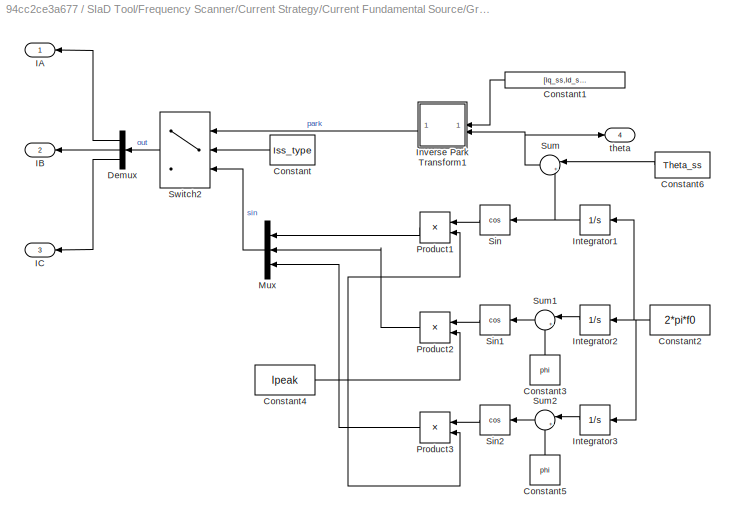
BLOCK [SubSystem] SIaD Tool/Frequency Scanner/Current Strategy/Current Fundamental Source/Grid Currents1
  NameLocation = right
BLOCK [Constant] SIaD Tool/Frequency Scanner/Current Strategy/Current Fundamental Source/Grid Currents1/Constant
  NameLocation = top
  Value = Iss_type
BLOCK [Constant] SIaD Tool/Frequency Scanner/Current Strategy/Current Fundamental Source/Grid Currents1/Constant1
  NameLocation = top
  SampleTime = delta_t
  Value = [Iq_ss,Id_ss,0]
BLOCK [Constant] SIaD Tool/Frequency Scanner/Current Strategy/Current Fundamental Source/Grid Currents1/Constant2
  NameLocation = top
  Value = 2*pi*f0
BLOCK [Constant] SIaD Tool/Frequency Scanner/Current Strategy/Current Fundamental Source/Grid Currents1/Constant3
  NameLocation = right
  Value = phi
BLOCK [Constant] SIaD Tool/Frequency Scanner/Current Strategy/Current Fundamental Source/Grid Currents1/Constant4
  Value = Ipeak
BLOCK [Constant] SIaD Tool/Frequency Scanner/Current Strategy/Current Fundamental Source/Grid Currents1/Constant5
  NameLocation = right
  Value = phi
BLOCK [Constant] SIaD Tool/Frequency Scanner/Current Strategy/Current Fundamental Source/Grid Currents1/Constant6
  NameLocation = top
  Value = Theta_ss
BLOCK [Demux] SIaD Tool/Frequency Scanner/Current Strategy/Current Fundamental Source/Grid Currents1/Demux
  Outputs = 3
BLOCK [Outport] SIaD Tool/Frequency Scanner/Current Strategy/Current Fundamental Source/Grid Currents1/IA
BLOCK [Outport] SIaD Tool/Frequency Scanner/Current Strategy/Current Fundamental Source/Grid Currents1/IB
  Port = 2
BLOCK [Outport] SIaD Tool/Frequency Scanner/Current Strategy/Current Fundamental Source/Grid Currents1/IC
  Port = 3
BLOCK [Integrator] SIaD Tool/Frequency Scanner/Current Strategy/Current Fundamental Source/Grid Currents1/Integrator1
  LowerSaturationLimit = -1E100
  UpperSaturationLimit = 1E100
BLOCK [Integrator] SIaD Tool/Frequency Scanner/Current Strategy/Current Fundamental Source/Grid Currents1/Integrator2
  LowerSaturationLimit = -1E100
  UpperSaturationLimit = 1E100
BLOCK [Integrator] SIaD Tool/Frequency Scanner/Current Strategy/Current Fundamental Source/Grid Currents1/Integrator3
  LowerSaturationLimit = -1E100
  UpperSaturationLimit = 1E100
BLOCK [SubSystem] SIaD Tool/Frequency Scanner/Current Strategy/Current Fundamental Source/Grid Currents1/Inverse Park Transform1
BLOCK [Outport] SIaD Tool/Frequency Scanner/Current Strategy/Current Fundamental Source/Grid Currents1/Inverse Park Transform1/ABC
BLOCK [Constant] SIaD Tool/Frequency Scanner/Current Strategy/Current Fundamental Source/Grid Currents1/Inverse Park Transform1/Constant
BLOCK [Constant] SIaD Tool/Frequency Scanner/Current Strategy/Current Fundamental Source/Grid Currents1/Inverse Park Transform1/Constant3
  NameLocation = right
  Value = (2*pi)/3
BLOCK [Constant] SIaD Tool/Frequency Scanner/Current Strategy/Current Fundamental Source/Grid Currents1/Inverse Park Transform1/Constant4
  NameLocation = right
  Value = (2*pi)/3
BLOCK [Trigonometry] SIaD Tool/Frequency Scanner/Current Strategy/Current Fundamental Source/Grid Currents1/Inverse Park Transform1/Cos
  Operator = cos
BLOCK [Concatenate] SIaD Tool/Frequency Scanner/Current Strategy/Current Fundamental Source/Grid Currents1/Inverse Park Transform1/Matrix Concatenate
  ConcatenateDimension = 2
  Mode = Multidimensional array
  NumInputs = 3
BLOCK [Product] SIaD Tool/Frequency Scanner/Current Strategy/Current Fundamental Source/Grid Currents1/Inverse Park Transform1/Matrix Multiply
  Multiplication = Matrix(*)
BLOCK [Mux] SIaD Tool/Frequency Scanner/Current Strategy/Current Fundamental Source/Grid Currents1/Inverse Park Transform1/Mux
  DisplayOption = bar
  Inputs = 3
BLOCK [Mux] SIaD Tool/Frequency Scanner/Current Strategy/Current Fundamental Source/Grid Currents1/Inverse Park Transform1/Mux1
  DisplayOption = bar
  Inputs = 3
BLOCK [Trigonometry] SIaD Tool/Frequency Scanner/Current Strategy/Current Fundamental Source/Grid Currents1/Inverse Park Transform1/Sin
BLOCK [Sum] SIaD Tool/Frequency Scanner/Current Strategy/Current Fundamental Source/Grid Currents1/Inverse Park Transform1/Sum
  Inputs = +-
BLOCK [Sum] SIaD Tool/Frequency Scanner/Current Strategy/Current Fundamental Source/Grid Currents1/Inverse Park Transform1/Sum1
  Inputs = |++
BLOCK [Inport] SIaD Tool/Frequency Scanner/Current Strategy/Current Fundamental Source/Grid Currents1/Inverse Park Transform1/qd0
BLOCK [Inport] SIaD Tool/Frequency Scanner/Current Strategy/Current Fundamental Source/Grid Currents1/Inverse Park Transform1/theta
  Port = 2
BLOCK [Mux] SIaD Tool/Frequency Scanner/Current Strategy/Current Fundamental Source/Grid Currents1/Mux
  DisplayOption = bar
  Inputs = 3
BLOCK [Product] SIaD Tool/Frequency Scanner/Current Strategy/Current Fundamental Source/Grid Currents1/Product1
BLOCK [Product] SIaD Tool/Frequency Scanner/Current Strategy/Current Fundamental Source/Grid Currents1/Product2
BLOCK [Product] SIaD Tool/Frequency Scanner/Current Strategy/Current Fundamental Source/Grid Currents1/Product3
BLOCK [Trigonometry] SIaD Tool/Frequency Scanner/Current Strategy/Current Fundamental Source/Grid Currents1/Sin
  Operator = cos
BLOCK [Trigonometry] SIaD Tool/Frequency Scanner/Current Strategy/Current Fundamental Source/Grid Currents1/Sin1
  Operator = cos
BLOCK [Trigonometry] SIaD Tool/Frequency Scanner/Current Strategy/Current Fundamental Source/Grid Currents1/Sin2
  Operator = cos
BLOCK [Sum] SIaD Tool/Frequency Scanner/Current Strategy/Current Fundamental Source/Grid Currents1/Sum
  Inputs = |++
BLOCK [Sum] SIaD Tool/Frequency Scanner/Current Strategy/Current Fundamental Source/Grid Currents1/Sum1
  Inputs = |+-
BLOCK [Sum] SIaD Tool/Frequency Scanner/Current Strategy/Current Fundamental Source/Grid Currents1/Sum2
  Inputs = |++
BLOCK [Switch] SIaD Tool/Frequency Scanner/Current Strategy/Current Fundamental Source/Grid Currents1/Switch2
  Criteria = u2 > Threshold
  InputSameDT = off
  SaturateOnIntegerOverflow = off
  Threshold = 1
BLOCK [Outport] SIaD Tool/Frequency Scanner/Current Strategy/Current Fundamental Source/Grid Currents1/theta
  NameLocation = top
  Port = 4
BLOCK [Reference] SIaD Tool/Frequency Scanner/Current Strategy/Current Fundamental Source/Ground  REF=spsGroundLib/Ground
  NameLocation = left
  SourceBlock = spsGroundLib/Ground
  SourceType = Ground
BLOCK [Reference] SIaD Tool/Frequency Scanner/Current Strategy/Current Fundamental Source/Three-Phase Series RLC Branch  REF=spsThreePhaseSeriesRLCBranchLib/Three-Phase
Series RLC Branch
  AttributesFormatString = \n
  NameLocation = left
  SourceBlock = spsThreePhaseSeriesRLCBranchLib/Three-Phase\nSeries RLC Branch
  SourceType = Three-Phase Series RLC Branch
BLOCK [PMIOPort] SIaD Tool/Frequency Scanner/Current Strategy/Current Fundamental Source/VzA
  Side = Right
BLOCK [PMIOPort] SIaD Tool/Frequency Scanner/Current Strategy/Current Fundamental Source/VzB
  Port = 2
  Side = Right
BLOCK [PMIOPort] SIaD Tool/Frequency Scanner/Current Strategy/Current Fundamental Source/VzC
  Port = 3
  Side = Right
BLOCK [Outport] SIaD Tool/Frequency Scanner/Current Strategy/Current Fundamental Source/theta
  NameLocation = top
BLOCK [From] SIaD Tool/Frequency Scanner/Current Strategy/From1
  GotoTag = theta_ref
  NameLocation = top
  TagVisibility = global
BLOCK [Goto] SIaD Tool/Frequency Scanner/Current Strategy/Goto1
  GotoTag = theta_ref
  NameLocation = top
  TagVisibility = global
BLOCK [Reference] SIaD Tool/Frequency Scanner/Current Strategy/Three-Phase V-I Measurement2  REF=spsThreePhaseVIMeasurementLib/Three-Phase
V-I Measurement
  SourceBlock = spsThreePhaseVIMeasurementLib/Three-Phase\nV-I Measurement
  SourceType = Three-Phase VI Measurement
BLOCK [SubSystem] SIaD Tool/Frequency Scanner/Current Strategy/pn0disturbance2
  Commented = on
BLOCK [PMIOPort] SIaD Tool/Frequency Scanner/Current Strategy/pn0disturbance2/Ain
  NameLocation = top
  Side = Left
BLOCK [PMIOPort] SIaD Tool/Frequency Scanner/Current Strategy/pn0disturbance2/Aout
  Port = 4
  Side = Right
BLOCK [PMIOPort] SIaD Tool/Frequency Scanner/Current Strategy/pn0disturbance2/Bin
  NameLocation = top
  Port = 2
  Side = Left
BLOCK [PMIOPort] SIaD Tool/Frequency Scanner/Current Strategy/pn0disturbance2/Bout
  Port = 5
  Side = Right
BLOCK [PMIOPort] SIaD Tool/Frequency Scanner/Current Strategy/pn0disturbance2/Cin
  NameLocation = top
  Port = 3
  Side = Left
BLOCK [Constant] SIaD Tool/Frequency Scanner/Current Strategy/pn0disturbance2/Constant
  Value = signal_type
BLOCK [Reference] SIaD Tool/Frequency Scanner/Current Strategy/pn0disturbance2/Controlled Current Source  REF=spsControlledCurrentSourceLib/Controlled Current Source
  SourceBlock = spsControlledCurrentSourceLib/Controlled Current Source
  SourceType = Controlled Current Source
BLOCK [Reference] SIaD Tool/Frequency Scanner/Current Strategy/pn0disturbance2/Controlled Current Source1  REF=spsControlledCurrentSourceLib/Controlled Current Source
  SourceBlock = spsControlledCurrentSourceLib/Controlled Current Source
  SourceType = Controlled Current Source
BLOCK [Reference] SIaD Tool/Frequency Scanner/Current Strategy/pn0disturbance2/Controlled Current Source2  REF=spsControlledCurrentSourceLib/Controlled Current Source
  SourceBlock = spsControlledCurrentSourceLib/Controlled Current Source
  SourceType = Controlled Current Source
BLOCK [PMIOPort] SIaD Tool/Frequency Scanner/Current Strategy/pn0disturbance2/Cout
  Port = 6
  Side = Right
BLOCK [Demux] SIaD Tool/Frequency Scanner/Current Strategy/pn0disturbance2/Demux
  Outputs = 3
BLOCK [From] SIaD Tool/Frequency Scanner/Current Strategy/pn0disturbance2/From1
  NameLocation = right
BLOCK [From] SIaD Tool/Frequency Scanner/Current Strategy/pn0disturbance2/From2
  GotoTag = B
  NameLocation = right
BLOCK [From] SIaD Tool/Frequency Scanner/Current Strategy/pn0disturbance2/From6
  GotoTag = C
  NameLocation = right
BLOCK [PMIOPort] SIaD Tool/Frequency Scanner/Current Strategy/pn0disturbance2/GND
  Port = 7
  Side = Left
BLOCK [Goto] SIaD Tool/Frequency Scanner/Current Strategy/pn0disturbance2/Goto1
BLOCK [Goto] SIaD Tool/Frequency Scanner/Current Strategy/pn0disturbance2/Goto2
  GotoTag = B
BLOCK [Goto] SIaD Tool/Frequency Scanner/Current Strategy/pn0disturbance2/Goto3
  GotoTag = C
BLOCK [SubSystem] SIaD Tool/Frequency Scanner/Current Strategy/pn0disturbance2/Multi-tone
BLOCK [Outport] SIaD Tool/Frequency Scanner/Current Strategy/pn0disturbance2/Multi-tone/ABC
BLOCK [Clock] SIaD Tool/Frequency Scanner/Current Strategy/pn0disturbance2/Multi-tone/Clock
BLOCK [Constant] SIaD Tool/Frequency Scanner/Current Strategy/pn0disturbance2/Multi-tone/Constant1
  Value = 0
BLOCK [FromWorkspace] SIaD Tool/Frequency Scanner/Current Strategy/pn0disturbance2/Multi-tone/From Workspace
  Interpolate = off
  OutputAfterFinalValue = Holding final value
  SampleTime = delta_t
  VariableName = dist_value_0
BLOCK [FromWorkspace] SIaD Tool/Frequency Scanner/Current Strategy/pn0disturbance2/Multi-tone/From Workspace1
  Interpolate = off
  OutputAfterFinalValue = Holding final value
  SampleTime = delta_t
  VariableName = dist_value_p
BLOCK [FromWorkspace] SIaD Tool/Frequency Scanner/Current Strategy/pn0disturbance2/Multi-tone/From Workspace2
  Interpolate = off
  OutputAfterFinalValue = Holding final value
  SampleTime = delta_t
  VariableName = dist_value_n
BLOCK [SubSystem] SIaD Tool/Frequency Scanner/Current Strategy/pn0disturbance2/Multi-tone/Inverse Fortescue Transformation
BLOCK [Inport] SIaD Tool/Frequency Scanner/Current Strategy/pn0disturbance2/Multi-tone/Inverse Fortescue Transformation/0PN
BLOCK [Outport] SIaD Tool/Frequency Scanner/Current Strategy/pn0disturbance2/Multi-tone/Inverse Fortescue Transformation/ABC
BLOCK [ComplexToRealImag] SIaD Tool/Frequency Scanner/Current Strategy/pn0disturbance2/Multi-tone/Inverse Fortescue Transformation/Complex to Real-Imag
BLOCK [Constant] SIaD Tool/Frequency Scanner/Current Strategy/pn0disturbance2/Multi-tone/Inverse Fortescue Transformation/Constant
  Value = 0
BLOCK [Constant] SIaD Tool/Frequency Scanner/Current Strategy/pn0disturbance2/Multi-tone/Inverse Fortescue Transformation/Constant1
BLOCK [Constant] SIaD Tool/Frequency Scanner/Current Strategy/pn0disturbance2/Multi-tone/Inverse Fortescue Transformation/Constant2
  Value = 0
BLOCK [Constant] SIaD Tool/Frequency Scanner/Current Strategy/pn0disturbance2/Multi-tone/Inverse Fortescue Transformation/Constant43
BLOCK [Constant] SIaD Tool/Frequency Scanner/Current Strategy/pn0disturbance2/Multi-tone/Inverse Fortescue Transformation/Constant44
  Value = (2/3)*pi
BLOCK [Constant] SIaD Tool/Frequency Scanner/Current Strategy/pn0disturbance2/Multi-tone/Inverse Fortescue Transformation/Constant45
BLOCK [Constant] SIaD Tool/Frequency Scanner/Current Strategy/pn0disturbance2/Multi-tone/Inverse Fortescue Transformation/Constant46
  Value = 0
BLOCK [Constant] SIaD Tool/Frequency Scanner/Current Strategy/pn0disturbance2/Multi-tone/Inverse Fortescue Transformation/Constant47
  Value = 0
BLOCK [Math] SIaD Tool/Frequency Scanner/Current Strategy/pn0disturbance2/Multi-tone/Inverse Fortescue Transformation/Math Function
BLOCK [Math] SIaD Tool/Frequency Scanner/Current Strategy/pn0disturbance2/Multi-tone/Inverse Fortescue Transformation/Math Function1
BLOCK [Concatenate] SIaD Tool/Frequency Scanner/Current Strategy/pn0disturbance2/Multi-tone/Inverse Fortescue Transformation/Matrix Concatenate
  ConcatenateDimension = 2
  Mode = Multidimensional array
  NumInputs = 3
BLOCK [Product] SIaD Tool/Frequency Scanner/Current Strategy/pn0disturbance2/Multi-tone/Inverse Fortescue Transformation/Matrix Multiply
  Multiplication = Matrix(*)
BLOCK [Mux] SIaD Tool/Frequency Scanner/Current Strategy/pn0disturbance2/Multi-tone/Inverse Fortescue Transformation/Mux1
  DisplayOption = bar
  Inputs = 3
BLOCK [Mux] SIaD Tool/Frequency Scanner/Current Strategy/pn0disturbance2/Multi-tone/Inverse Fortescue Transformation/Mux2
  DisplayOption = bar
  Inputs = 3
BLOCK [Mux] SIaD Tool/Frequency Scanner/Current Strategy/pn0disturbance2/Multi-tone/Inverse Fortescue Transformation/Mux3
  DisplayOption = bar
  Inputs = 3
BLOCK [RealImagToComplex] SIaD Tool/Frequency Scanner/Current Strategy/pn0disturbance2/Multi-tone/Inverse Fortescue Transformation/Real-Imag to Complex
BLOCK [RealImagToComplex] SIaD Tool/Frequency Scanner/Current Strategy/pn0disturbance2/Multi-tone/Inverse Fortescue Transformation/Real-Imag to Complex1
BLOCK [RealImagToComplex] SIaD Tool/Frequency Scanner/Current Strategy/pn0disturbance2/Multi-tone/Inverse Fortescue Transformation/Real-Imag to Complex2
BLOCK [RealImagToComplex] SIaD Tool/Frequency Scanner/Current Strategy/pn0disturbance2/Multi-tone/Inverse Fortescue Transformation/Real-Imag to Complex5
BLOCK [Math] SIaD Tool/Frequency Scanner/Current Strategy/pn0disturbance2/Multi-tone/Inverse Fortescue Transformation/Square
  Operator = square
BLOCK [Math] SIaD Tool/Frequency Scanner/Current Strategy/pn0disturbance2/Multi-tone/Inverse Fortescue Transformation/Square1
  Operator = square
BLOCK [Terminator] SIaD Tool/Frequency Scanner/Current Strategy/pn0disturbance2/Multi-tone/Inverse Fortescue Transformation/Terminator
  NameLocation = left
BLOCK [Mux] SIaD Tool/Frequency Scanner/Current Strategy/pn0disturbance2/Multi-tone/Mux
  DisplayOption = bar
  Inputs = 3
BLOCK [Switch] SIaD Tool/Frequency Scanner/Current Strategy/pn0disturbance2/Multi-tone/Switch1
  Criteria = u2 > Threshold
  InputSameDT = off
  SaturateOnIntegerOverflow = off
  Threshold = dist_time
BLOCK [Switch] SIaD Tool/Frequency Scanner/Current Strategy/pn0disturbance2/Multi-tone/Switch2
  Criteria = u2 > Threshold
  InputSameDT = off
  SaturateOnIntegerOverflow = off
  Threshold = dist_time
BLOCK [Switch] SIaD Tool/Frequency Scanner/Current Strategy/pn0disturbance2/Multi-tone/Switch3
  Criteria = u2 > Threshold
  InputSameDT = off
  SaturateOnIntegerOverflow = off
  Threshold = dist_time
BLOCK [SubSystem] SIaD Tool/Frequency Scanner/Current Strategy/pn0disturbance2/Single-tone
  Commented = on
BLOCK [Outport] SIaD Tool/Frequency Scanner/Current Strategy/pn0disturbance2/Single-tone/ABC
BLOCK [Constant] SIaD Tool/Frequency Scanner/Current Strategy/pn0disturbance2/Single-tone/Constant1
  SampleTime = delta_t
  Value = 2*pi*fd
BLOCK [Constant] SIaD Tool/Frequency Scanner/Current Strategy/pn0disturbance2/Single-tone/Constant1111
  NameLocation = top
  Value = 0
BLOCK [Constant] SIaD Tool/Frequency Scanner/Current Strategy/pn0disturbance2/Single-tone/Constant222
  Value = dist_value_p
BLOCK [Constant] SIaD Tool/Frequency Scanner/Current Strategy/pn0disturbance2/Single-tone/Constant49
  Value = dist_value_0
BLOCK [Constant] SIaD Tool/Frequency Scanner/Current Strategy/pn0disturbance2/Single-tone/Constant50
  Value = dist_value_n
BLOCK [Step] SIaD Tool/Frequency Scanner/Current Strategy/pn0disturbance2/Single-tone/Disturbance activator
  SampleTime = delta_t
  Time = dist_time
BLOCK [Integrator] SIaD Tool/Frequency Scanner/Current Strategy/pn0disturbance2/Single-tone/Integrator3
  NameLocation = top
BLOCK [SubSystem] SIaD Tool/Frequency Scanner/Current Strategy/pn0disturbance2/Single-tone/Inverse Fortescue Transformation
BLOCK [Inport] SIaD Tool/Frequency Scanner/Current Strategy/pn0disturbance2/Single-tone/Inverse Fortescue Transformation/0PN
BLOCK [Outport] SIaD Tool/Frequency Scanner/Current Strategy/pn0disturbance2/Single-tone/Inverse Fortescue Transformation/ABC
BLOCK [ComplexToRealImag] SIaD Tool/Frequency Scanner/Current Strategy/pn0disturbance2/Single-tone/Inverse Fortescue Transformation/Complex to Real-Imag
BLOCK [Constant] SIaD Tool/Frequency Scanner/Current Strategy/pn0disturbance2/Single-tone/Inverse Fortescue Transformation/Constant
  Value = 0
BLOCK [Constant] SIaD Tool/Frequency Scanner/Current Strategy/pn0disturbance2/Single-tone/Inverse Fortescue Transformation/Constant1
BLOCK [Constant] SIaD Tool/Frequency Scanner/Current Strategy/pn0disturbance2/Single-tone/Inverse Fortescue Transformation/Constant2
  Value = 0
BLOCK [Constant] SIaD Tool/Frequency Scanner/Current Strategy/pn0disturbance2/Single-tone/Inverse Fortescue Transformation/Constant43
BLOCK [Constant] SIaD Tool/Frequency Scanner/Current Strategy/pn0disturbance2/Single-tone/Inverse Fortescue Transformation/Constant44
  Value = (2/3)*pi
BLOCK [Constant] SIaD Tool/Frequency Scanner/Current Strategy/pn0disturbance2/Single-tone/Inverse Fortescue Transformation/Constant45
BLOCK [Constant] SIaD Tool/Frequency Scanner/Current Strategy/pn0disturbance2/Single-tone/Inverse Fortescue Transformation/Constant46
  Value = 0
BLOCK [Constant] SIaD Tool/Frequency Scanner/Current Strategy/pn0disturbance2/Single-tone/Inverse Fortescue Transformation/Constant47
  Value = 0
BLOCK [Math] SIaD Tool/Frequency Scanner/Current Strategy/pn0disturbance2/Single-tone/Inverse Fortescue Transformation/Math Function
BLOCK [Math] SIaD Tool/Frequency Scanner/Current Strategy/pn0disturbance2/Single-tone/Inverse Fortescue Transformation/Math Function1
BLOCK [Concatenate] SIaD Tool/Frequency Scanner/Current Strategy/pn0disturbance2/Single-tone/Inverse Fortescue Transformation/Matrix Concatenate
  ConcatenateDimension = 2
  Mode = Multidimensional array
  NumInputs = 3
BLOCK [Product] SIaD Tool/Frequency Scanner/Current Strategy/pn0disturbance2/Single-tone/Inverse Fortescue Transformation/Matrix Multiply
  Multiplication = Matrix(*)
BLOCK [Mux] SIaD Tool/Frequency Scanner/Current Strategy/pn0disturbance2/Single-tone/Inverse Fortescue Transformation/Mux1
  DisplayOption = bar
  Inputs = 3
BLOCK [Mux] SIaD Tool/Frequency Scanner/Current Strategy/pn0disturbance2/Single-tone/Inverse Fortescue Transformation/Mux2
  DisplayOption = bar
  Inputs = 3
BLOCK [Mux] SIaD Tool/Frequency Scanner/Current Strategy/pn0disturbance2/Single-tone/Inverse Fortescue Transformation/Mux3
  DisplayOption = bar
  Inputs = 3
BLOCK [RealImagToComplex] SIaD Tool/Frequency Scanner/Current Strategy/pn0disturbance2/Single-tone/Inverse Fortescue Transformation/Real-Imag to Complex
BLOCK [RealImagToComplex] SIaD Tool/Frequency Scanner/Current Strategy/pn0disturbance2/Single-tone/Inverse Fortescue Transformation/Real-Imag to Complex1
BLOCK [RealImagToComplex] SIaD Tool/Frequency Scanner/Current Strategy/pn0disturbance2/Single-tone/Inverse Fortescue Transformation/Real-Imag to Complex2
BLOCK [RealImagToComplex] SIaD Tool/Frequency Scanner/Current Strategy/pn0disturbance2/Single-tone/Inverse Fortescue Transformation/Real-Imag to Complex5
BLOCK [Math] SIaD Tool/Frequency Scanner/Current Strategy/pn0disturbance2/Single-tone/Inverse Fortescue Transformation/Square
  Operator = square
BLOCK [Math] SIaD Tool/Frequency Scanner/Current Strategy/pn0disturbance2/Single-tone/Inverse Fortescue Transformation/Square1
  Operator = square
BLOCK [Terminator] SIaD Tool/Frequency Scanner/Current Strategy/pn0disturbance2/Single-tone/Inverse Fortescue Transformation/Terminator
  NameLocation = left
BLOCK [Math] SIaD Tool/Frequency Scanner/Current Strategy/pn0disturbance2/Single-tone/Math Function3
  NameLocation = top
BLOCK [Math] SIaD Tool/Frequency Scanner/Current Strategy/pn0disturbance2/Single-tone/Math Function4
  NameLocation = top
BLOCK [Math] SIaD Tool/Frequency Scanner/Current Strategy/pn0disturbance2/Single-tone/Math Function5
  NameLocation = top
BLOCK [Gain] SIaD Tool/Frequency Scanner/Current Strategy/pn0disturbance2/Single-tone/Multiply2
  NameLocation = top
BLOCK [Gain] SIaD Tool/Frequency Scanner/Current Strategy/pn0disturbance2/Single-tone/Multiply3
  NameLocation = top
BLOCK [Gain] SIaD Tool/Frequency Scanner/Current Strategy/pn0disturbance2/Single-tone/Multiply4
  NameLocation = top
BLOCK [Mux] SIaD Tool/Frequency Scanner/Current Strategy/pn0disturbance2/Single-tone/Mux1
  DisplayOption = bar
  Inputs = 3
BLOCK [Product] SIaD Tool/Frequency Scanner/Current Strategy/pn0disturbance2/Single-tone/Product
BLOCK [Product] SIaD Tool/Frequency Scanner/Current Strategy/pn0disturbance2/Single-tone/Product4
BLOCK [Product] SIaD Tool/Frequency Scanner/Current Strategy/pn0disturbance2/Single-tone/Product5
  NameLocation = top
BLOCK [Product] SIaD Tool/Frequency Scanner/Current Strategy/pn0disturbance2/Single-tone/Product8
  NameLocation = top
BLOCK [RealImagToComplex] SIaD Tool/Frequency Scanner/Current Strategy/pn0disturbance2/Single-tone/Real-Imag to Complex2
  NameLocation = top
BLOCK [RealImagToComplex] SIaD Tool/Frequency Scanner/Current Strategy/pn0disturbance2/Single-tone/Real-Imag to Complex3
BLOCK [RealImagToComplex] SIaD Tool/Frequency Scanner/Current Strategy/pn0disturbance2/Single-tone/Real-Imag to Complex4
  NameLocation = top
BLOCK [Switch] SIaD Tool/Frequency Scanner/Current Strategy/pn0disturbance2/Switch
  Criteria = u2 > Threshold
  InputSameDT = off
  SaturateOnIntegerOverflow = off
  Threshold = 1
BLOCK [Reference] SIaD Tool/Frequency Scanner/Current Strategy/pn0disturbance2/Three-Phase V-I Measurement3  REF=spsThreePhaseVIMeasurementLib/Three-Phase
V-I Measurement
  SourceBlock = spsThreePhaseVIMeasurementLib/Three-Phase\nV-I Measurement
  SourceType = Three-Phase VI Measurement
BLOCK [SubSystem] SIaD Tool/Frequency Scanner/Current Strategy/qd0disturbance2
  Commented = on
  PortSchema = {"entries":[{"content":{"sides":[{"content":{"connectorIds":["LConn1","LConn2","LConn3","LConn4"]},"type":"ConnectorPlacement.EquallySpacedRectSide","uuid":"96b61a08-e73c-4bf9-b44c-8e6d57b8ef4a"},{"content":{"connectorIds":["RConn1","RConn2","RConn3"],"side":"RIGHT"},"type":"ConnectorPlacement.EquallySpacedRectSide","uuid":"3a0e4222-9b60-4a58-9d08-3b159ebff1b9"},{"content":{"connectorIds":["In1"],...<+295ch>
BLOCK [PMIOPort] SIaD Tool/Frequency Scanner/Current Strategy/qd0disturbance2/Ain
  NameLocation = top
  Side = Left
BLOCK [PMIOPort] SIaD Tool/Frequency Scanner/Current Strategy/qd0disturbance2/Aout
  Port = 4
  Side = Right
BLOCK [PMIOPort] SIaD Tool/Frequency Scanner/Current Strategy/qd0disturbance2/Bin
  NameLocation = top
  Port = 2
  Side = Left
BLOCK [PMIOPort] SIaD Tool/Frequency Scanner/Current Strategy/qd0disturbance2/Bout
  Port = 5
  Side = Right
BLOCK [PMIOPort] SIaD Tool/Frequency Scanner/Current Strategy/qd0disturbance2/Cin
  NameLocation = top
  Port = 3
  Side = Left
BLOCK [Constant] SIaD Tool/Frequency Scanner/Current Strategy/qd0disturbance2/Constant1
  Value = signal_type
BLOCK [Reference] SIaD Tool/Frequency Scanner/Current Strategy/qd0disturbance2/Controlled Current Source  REF=spsControlledCurrentSourceLib/Controlled Current Source
  SourceBlock = spsControlledCurrentSourceLib/Controlled Current Source
  SourceType = Controlled Current Source
BLOCK [Reference] SIaD Tool/Frequency Scanner/Current Strategy/qd0disturbance2/Controlled Current Source1  REF=spsControlledCurrentSourceLib/Controlled Current Source
  SourceBlock = spsControlledCurrentSourceLib/Controlled Current Source
  SourceType = Controlled Current Source
BLOCK [Reference] SIaD Tool/Frequency Scanner/Current Strategy/qd0disturbance2/Controlled Current Source2  REF=spsControlledCurrentSourceLib/Controlled Current Source
  SourceBlock = spsControlledCurrentSourceLib/Controlled Current Source
  SourceType = Controlled Current Source
BLOCK [PMIOPort] SIaD Tool/Frequency Scanner/Current Strategy/qd0disturbance2/Cout
  Port = 6
  Side = Right
BLOCK [Demux] SIaD Tool/Frequency Scanner/Current Strategy/qd0disturbance2/Demux4
  Outputs = 3
BLOCK [From] SIaD Tool/Frequency Scanner/Current Strategy/qd0disturbance2/From1
  GotoTag = theta
BLOCK [From] SIaD Tool/Frequency Scanner/Current Strategy/qd0disturbance2/From10
  GotoTag = C
  NameLocation = right
BLOCK [From] SIaD Tool/Frequency Scanner/Current Strategy/qd0disturbance2/From2
  GotoTag = theta
BLOCK [From] SIaD Tool/Frequency Scanner/Current Strategy/qd0disturbance2/From8
  NameLocation = right
BLOCK [From] SIaD Tool/Frequency Scanner/Current Strategy/qd0disturbance2/From9
  GotoTag = B
  NameLocation = right
BLOCK [PMIOPort] SIaD Tool/Frequency Scanner/Current Strategy/qd0disturbance2/GND
  Port = 7
  Side = Left
BLOCK [Goto] SIaD Tool/Frequency Scanner/Current Strategy/qd0disturbance2/Goto
  GotoTag = theta
BLOCK [Goto] SIaD Tool/Frequency Scanner/Current Strategy/qd0disturbance2/Goto2
BLOCK [Goto] SIaD Tool/Frequency Scanner/Current Strategy/qd0disturbance2/Goto3
  GotoTag = B
BLOCK [Goto] SIaD Tool/Frequency Scanner/Current Strategy/qd0disturbance2/Goto7
  GotoTag = C
BLOCK [SubSystem] SIaD Tool/Frequency Scanner/Current Strategy/qd0disturbance2/Multi-tone
  Commented = on
BLOCK [Outport] SIaD Tool/Frequency Scanner/Current Strategy/qd0disturbance2/Multi-tone/ABC
BLOCK [Clock] SIaD Tool/Frequency Scanner/Current Strategy/qd0disturbance2/Multi-tone/Clock1
BLOCK [Constant] SIaD Tool/Frequency Scanner/Current Strategy/qd0disturbance2/Multi-tone/Constant
  Value = 0
BLOCK [FromWorkspace] SIaD Tool/Frequency Scanner/Current Strategy/qd0disturbance2/Multi-tone/From Workspace3
  Interpolate = off
  OutputAfterFinalValue = Holding final value
  SampleTime = delta_t
  VariableName = dist_value_q
BLOCK [FromWorkspace] SIaD Tool/Frequency Scanner/Current Strategy/qd0disturbance2/Multi-tone/From Workspace4
  Interpolate = off
  OutputAfterFinalValue = Holding final value
  SampleTime = delta_t
  VariableName = dist_value_d
BLOCK [Inport] SIaD Tool/Frequency Scanner/Current Strategy/qd0disturbance2/Multi-tone/In1
  NameLocation = top
BLOCK [SubSystem] SIaD Tool/Frequency Scanner/Current Strategy/qd0disturbance2/Multi-tone/Inverse Park Transform1
  NameLocation = top
BLOCK [Outport] SIaD Tool/Frequency Scanner/Current Strategy/qd0disturbance2/Multi-tone/Inverse Park Transform1/ABC
BLOCK [Constant] SIaD Tool/Frequency Scanner/Current Strategy/qd0disturbance2/Multi-tone/Inverse Park Transform1/Constant
BLOCK [Constant] SIaD Tool/Frequency Scanner/Current Strategy/qd0disturbance2/Multi-tone/Inverse Park Transform1/Constant3
  NameLocation = right
  Value = (2*pi)/3
BLOCK [Constant] SIaD Tool/Frequency Scanner/Current Strategy/qd0disturbance2/Multi-tone/Inverse Park Transform1/Constant4
  NameLocation = right
  Value = (2*pi)/3
BLOCK [Trigonometry] SIaD Tool/Frequency Scanner/Current Strategy/qd0disturbance2/Multi-tone/Inverse Park Transform1/Cos
  Operator = cos
BLOCK [Concatenate] SIaD Tool/Frequency Scanner/Current Strategy/qd0disturbance2/Multi-tone/Inverse Park Transform1/Matrix Concatenate
  ConcatenateDimension = 2
  Mode = Multidimensional array
  NumInputs = 3
BLOCK [Product] SIaD Tool/Frequency Scanner/Current Strategy/qd0disturbance2/Multi-tone/Inverse Park Transform1/Matrix Multiply
  Multiplication = Matrix(*)
BLOCK [Mux] SIaD Tool/Frequency Scanner/Current Strategy/qd0disturbance2/Multi-tone/Inverse Park Transform1/Mux
  DisplayOption = bar
  Inputs = 3
BLOCK [Mux] SIaD Tool/Frequency Scanner/Current Strategy/qd0disturbance2/Multi-tone/Inverse Park Transform1/Mux1
  DisplayOption = bar
  Inputs = 3
BLOCK [Trigonometry] SIaD Tool/Frequency Scanner/Current Strategy/qd0disturbance2/Multi-tone/Inverse Park Transform1/Sin
BLOCK [Sum] SIaD Tool/Frequency Scanner/Current Strategy/qd0disturbance2/Multi-tone/Inverse Park Transform1/Sum
  Inputs = +-
BLOCK [Sum] SIaD Tool/Frequency Scanner/Current Strategy/qd0disturbance2/Multi-tone/Inverse Park Transform1/Sum1
  Inputs = |++
BLOCK [Inport] SIaD Tool/Frequency Scanner/Current Strategy/qd0disturbance2/Multi-tone/Inverse Park Transform1/qd0
BLOCK [Inport] SIaD Tool/Frequency Scanner/Current Strategy/qd0disturbance2/Multi-tone/Inverse Park Transform1/theta
  Port = 2
BLOCK [Mux] SIaD Tool/Frequency Scanner/Current Strategy/qd0disturbance2/Multi-tone/Mux3
  DisplayOption = bar
  Inputs = 3
BLOCK [Switch] SIaD Tool/Frequency Scanner/Current Strategy/qd0disturbance2/Multi-tone/Switch
  Criteria = u2 > Threshold
  InputSameDT = off
  SaturateOnIntegerOverflow = off
  Threshold = dist_time
BLOCK [Switch] SIaD Tool/Frequency Scanner/Current Strategy/qd0disturbance2/Multi-tone/Switch4
  Criteria = u2 > Threshold
  InputSameDT = off
  SaturateOnIntegerOverflow = off
  Threshold = dist_time
BLOCK [Constant] SIaD Tool/Frequency Scanner/Current Strategy/qd0disturbance2/Multi-tone/Vd
  Value = 0
BLOCK [SubSystem] SIaD Tool/Frequency Scanner/Current Strategy/qd0disturbance2/Single-tone
BLOCK [Outport] SIaD Tool/Frequency Scanner/Current Strategy/qd0disturbance2/Single-tone/ABC
BLOCK [Constant] SIaD Tool/Frequency Scanner/Current Strategy/qd0disturbance2/Single-tone/Constant18
  NameLocation = top
  Value = dist_value_d
BLOCK [Constant] SIaD Tool/Frequency Scanner/Current Strategy/qd0disturbance2/Single-tone/Constant19
  Value = 2*pi*fd
BLOCK [Constant] SIaD Tool/Frequency Scanner/Current Strategy/qd0disturbance2/Single-tone/Constant21
  NameLocation = top
  Value = dist_value_q
BLOCK [Trigonometry] SIaD Tool/Frequency Scanner/Current Strategy/qd0disturbance2/Single-tone/Cos
  Operator = cos
BLOCK [Trigonometry] SIaD Tool/Frequency Scanner/Current Strategy/qd0disturbance2/Single-tone/Cos1
  Operator = cos
BLOCK [Step] SIaD Tool/Frequency Scanner/Current Strategy/qd0disturbance2/Single-tone/Disturbance activator
  After = 1.0
  Before = 0.0
  SampleTime = delta_t
  Time = dist_time
BLOCK [Inport] SIaD Tool/Frequency Scanner/Current Strategy/qd0disturbance2/Single-tone/In1
  NameLocation = top
BLOCK [Integrator] SIaD Tool/Frequency Scanner/Current Strategy/qd0disturbance2/Single-tone/Integrator
BLOCK [SubSystem] SIaD Tool/Frequency Scanner/Current Strategy/qd0disturbance2/Single-tone/Inverse Park Transform
BLOCK [Outport] SIaD Tool/Frequency Scanner/Current Strategy/qd0disturbance2/Single-tone/Inverse Park Transform/ABC
BLOCK [Constant] SIaD Tool/Frequency Scanner/Current Strategy/qd0disturbance2/Single-tone/Inverse Park Transform/Constant
BLOCK [Constant] SIaD Tool/Frequency Scanner/Current Strategy/qd0disturbance2/Single-tone/Inverse Park Transform/Constant3
  NameLocation = right
  Value = (2*pi)/3
BLOCK [Constant] SIaD Tool/Frequency Scanner/Current Strategy/qd0disturbance2/Single-tone/Inverse Park Transform/Constant4
  NameLocation = right
  Value = (2*pi)/3
BLOCK [Trigonometry] SIaD Tool/Frequency Scanner/Current Strategy/qd0disturbance2/Single-tone/Inverse Park Transform/Cos
  Operator = cos
BLOCK [Concatenate] SIaD Tool/Frequency Scanner/Current Strategy/qd0disturbance2/Single-tone/Inverse Park Transform/Matrix Concatenate
  ConcatenateDimension = 2
  Mode = Multidimensional array
  NumInputs = 3
BLOCK [Product] SIaD Tool/Frequency Scanner/Current Strategy/qd0disturbance2/Single-tone/Inverse Park Transform/Matrix Multiply
  Multiplication = Matrix(*)
BLOCK [Mux] SIaD Tool/Frequency Scanner/Current Strategy/qd0disturbance2/Single-tone/Inverse Park Transform/Mux
  DisplayOption = bar
  Inputs = 3
BLOCK [Mux] SIaD Tool/Frequency Scanner/Current Strategy/qd0disturbance2/Single-tone/Inverse Park Transform/Mux1
  DisplayOption = bar
  Inputs = 3
BLOCK [Trigonometry] SIaD Tool/Frequency Scanner/Current Strategy/qd0disturbance2/Single-tone/Inverse Park Transform/Sin
BLOCK [Sum] SIaD Tool/Frequency Scanner/Current Strategy/qd0disturbance2/Single-tone/Inverse Park Transform/Sum
  Inputs = +-
BLOCK [Sum] SIaD Tool/Frequency Scanner/Current Strategy/qd0disturbance2/Single-tone/Inverse Park Transform/Sum1
  Inputs = |++
BLOCK [Inport] SIaD Tool/Frequency Scanner/Current Strategy/qd0disturbance2/Single-tone/Inverse Park Transform/qd0
BLOCK [Inport] SIaD Tool/Frequency Scanner/Current Strategy/qd0disturbance2/Single-tone/Inverse Park Transform/theta
  Port = 2
BLOCK [Mux] SIaD Tool/Frequency Scanner/Current Strategy/qd0disturbance2/Single-tone/Mux23
  DisplayOption = bar
  Inputs = 3
BLOCK [Product] SIaD Tool/Frequency Scanner/Current Strategy/qd0disturbance2/Single-tone/Product
BLOCK [Product] SIaD Tool/Frequency Scanner/Current Strategy/qd0disturbance2/Single-tone/Product4
BLOCK [Product] SIaD Tool/Frequency Scanner/Current Strategy/qd0disturbance2/Single-tone/Product5
BLOCK [Constant] SIaD Tool/Frequency Scanner/Current Strategy/qd0disturbance2/Single-tone/V0
  NameLocation = left
  Value = 0
BLOCK [Switch] SIaD Tool/Frequency Scanner/Current Strategy/qd0disturbance2/Switch2
  Criteria = u2 > Threshold
  InputSameDT = off
  SaturateOnIntegerOverflow = off
  Threshold = 1
BLOCK [Reference] SIaD Tool/Frequency Scanner/Current Strategy/qd0disturbance2/Three-Phase V-I Measurement3  REF=spsThreePhaseVIMeasurementLib/Three-Phase
V-I Measurement
  SourceBlock = spsThreePhaseVIMeasurementLib/Three-Phase\nV-I Measurement
  SourceType = Three-Phase VI Measurement
BLOCK [Inport] SIaD Tool/Frequency Scanner/Current Strategy/qd0disturbance2/theta
  NameLocation = left
BLOCK [Reference] SIaD Tool/Frequency Scanner/Three-Phase V-I Measurement1  REF=spsThreePhaseVIMeasurementLib/Three-Phase
V-I Measurement
  SourceBlock = spsThreePhaseVIMeasurementLib/Three-Phase\nV-I Measurement
  SourceType = Three-Phase VI Measurement
BLOCK [Reference] SIaD Tool/Frequency Scanner/Three-Phase V-I Measurement3  REF=spsThreePhaseVIMeasurementLib/Three-Phase
V-I Measurement
  SourceBlock = spsThreePhaseVIMeasurementLib/Three-Phase\nV-I Measurement
  SourceType = Three-Phase VI Measurement
BLOCK [SubSystem] SIaD Tool/Frequency Scanner/Voltage Strategy
BLOCK [SubSystem] SIaD Tool/Frequency Scanner/Voltage Strategy/ABCdisturbance
BLOCK [PMIOPort] SIaD Tool/Frequency Scanner/Voltage Strategy/ABCdisturbance/Ain1
  NameLocation = top
  Side = Left
BLOCK [PMIOPort] SIaD Tool/Frequency Scanner/Voltage Strategy/ABCdisturbance/Aout
  Port = 4
  Side = Right
BLOCK [PMIOPort] SIaD Tool/Frequency Scanner/Voltage Strategy/ABCdisturbance/Bin1
  NameLocation = top
  Port = 2
  Side = Left
BLOCK [PMIOPort] SIaD Tool/Frequency Scanner/Voltage Strategy/ABCdisturbance/Bout
  Port = 5
  Side = Right
BLOCK [PMIOPort] SIaD Tool/Frequency Scanner/Voltage Strategy/ABCdisturbance/Cin1
  NameLocation = top
  Port = 3
  Side = Left
BLOCK [Constant] SIaD Tool/Frequency Scanner/Voltage Strategy/ABCdisturbance/Constant
  Value = signal_type
BLOCK [Reference] SIaD Tool/Frequency Scanner/Voltage Strategy/ABCdisturbance/Controlled Voltage Source1  REF=spsControlledVoltageSourceLib/Controlled Voltage Source
  NameLocation = left
  SourceBlock = spsControlledVoltageSourceLib/Controlled Voltage Source
  SourceType = Controlled Voltage Source
BLOCK [Reference] SIaD Tool/Frequency Scanner/Voltage Strategy/ABCdisturbance/Controlled Voltage Source2  REF=spsControlledVoltageSourceLib/Controlled Voltage Source
  NameLocation = left
  SourceBlock = spsControlledVoltageSourceLib/Controlled Voltage Source
  SourceType = Controlled Voltage Source
BLOCK [Reference] SIaD Tool/Frequency Scanner/Voltage Strategy/ABCdisturbance/Controlled Voltage Source6  REF=spsControlledVoltageSourceLib/Controlled Voltage Source
  NameLocation = left
  SourceBlock = spsControlledVoltageSourceLib/Controlled Voltage Source
  SourceType = Controlled Voltage Source
BLOCK [PMIOPort] SIaD Tool/Frequency Scanner/Voltage Strategy/ABCdisturbance/Cout
  Port = 6
  Side = Right
BLOCK [Demux] SIaD Tool/Frequency Scanner/Voltage Strategy/ABCdisturbance/Demux
  Outputs = 3
BLOCK [From] SIaD Tool/Frequency Scanner/Voltage Strategy/ABCdisturbance/From2
BLOCK [From] SIaD Tool/Frequency Scanner/Voltage Strategy/ABCdisturbance/From3
  GotoTag = B
BLOCK [From] SIaD Tool/Frequency Scanner/Voltage Strategy/ABCdisturbance/From4
  GotoTag = C
BLOCK [Goto] SIaD Tool/Frequency Scanner/Voltage Strategy/ABCdisturbance/Goto4
BLOCK [Goto] SIaD Tool/Frequency Scanner/Voltage Strategy/ABCdisturbance/Goto5
  GotoTag = B
BLOCK [Goto] SIaD Tool/Frequency Scanner/Voltage Strategy/ABCdisturbance/Goto6
  GotoTag = C
BLOCK [SubSystem] SIaD Tool/Frequency Scanner/Voltage Strategy/ABCdisturbance/Multi-tone
  Commented = on
BLOCK [Outport] SIaD Tool/Frequency Scanner/Voltage Strategy/ABCdisturbance/Multi-tone/ABC
BLOCK [Clock] SIaD Tool/Frequency Scanner/Voltage Strategy/ABCdisturbance/Multi-tone/Clock
BLOCK [Constant] SIaD Tool/Frequency Scanner/Voltage Strategy/ABCdisturbance/Multi-tone/Constant1
  Value = 0
BLOCK [FromWorkspace] SIaD Tool/Frequency Scanner/Voltage Strategy/ABCdisturbance/Multi-tone/From Workspace
  Interpolate = off
  OutputAfterFinalValue = Holding final value
  SampleTime = delta_t
  VariableName = dist_value_a
BLOCK [FromWorkspace] SIaD Tool/Frequency Scanner/Voltage Strategy/ABCdisturbance/Multi-tone/From Workspace1
  Interpolate = off
  OutputAfterFinalValue = Holding final value
  SampleTime = delta_t
  VariableName = dist_value_b
BLOCK [FromWorkspace] SIaD Tool/Frequency Scanner/Voltage Strategy/ABCdisturbance/Multi-tone/From Workspace2
  Interpolate = off
  OutputAfterFinalValue = Holding final value
  SampleTime = delta_t
  VariableName = dist_value_c
BLOCK [Mux] SIaD Tool/Frequency Scanner/Voltage Strategy/ABCdisturbance/Multi-tone/Mux
  DisplayOption = bar
  Inputs = 3
BLOCK [Switch] SIaD Tool/Frequency Scanner/Voltage Strategy/ABCdisturbance/Multi-tone/Switch1
  Criteria = u2 > Threshold
  InputSameDT = off
  SaturateOnIntegerOverflow = off
  Threshold = dist_time
BLOCK [Switch] SIaD Tool/Frequency Scanner/Voltage Strategy/ABCdisturbance/Multi-tone/Switch2
  Criteria = u2 > Threshold
  InputSameDT = off
  SaturateOnIntegerOverflow = off
  Threshold = dist_time
BLOCK [Switch] SIaD Tool/Frequency Scanner/Voltage Strategy/ABCdisturbance/Multi-tone/Switch3
  Criteria = u2 > Threshold
  InputSameDT = off
  SaturateOnIntegerOverflow = off
  Threshold = dist_time
BLOCK [SubSystem] SIaD Tool/Frequency Scanner/Voltage Strategy/ABCdisturbance/Single-tone
BLOCK [Outport] SIaD Tool/Frequency Scanner/Voltage Strategy/ABCdisturbance/Single-tone/ABC
BLOCK [Constant] SIaD Tool/Frequency Scanner/Voltage Strategy/ABCdisturbance/Single-tone/Constant10
  NameLocation = right
  Value = phi
BLOCK [Constant] SIaD Tool/Frequency Scanner/Voltage Strategy/ABCdisturbance/Single-tone/Constant12
  SampleTime = delta_t
  Value = 2*pi*fd
BLOCK [Constant] SIaD Tool/Frequency Scanner/Voltage Strategy/ABCdisturbance/Single-tone/Constant9
  NameLocation = right
  Value = phi
BLOCK [Integrator] SIaD Tool/Frequency Scanner/Voltage Strategy/ABCdisturbance/Single-tone/Integrator5
  LowerSaturationLimit = -1E100
  UpperSaturationLimit = 1E100
BLOCK [Mux] SIaD Tool/Frequency Scanner/Voltage Strategy/ABCdisturbance/Single-tone/Mux
  DisplayOption = bar
  Inputs = 3
BLOCK [Product] SIaD Tool/Frequency Scanner/Voltage Strategy/ABCdisturbance/Single-tone/Product1
BLOCK [Product] SIaD Tool/Frequency Scanner/Voltage Strategy/ABCdisturbance/Single-tone/Product2
BLOCK [Product] SIaD Tool/Frequency Scanner/Voltage Strategy/ABCdisturbance/Single-tone/Product3
BLOCK [Trigonometry] SIaD Tool/Frequency Scanner/Voltage Strategy/ABCdisturbance/Single-tone/Sin
  Operator = cos
BLOCK [Trigonometry] SIaD Tool/Frequency Scanner/Voltage Strategy/ABCdisturbance/Single-tone/Sin1
  Operator = cos
BLOCK [Trigonometry] SIaD Tool/Frequency Scanner/Voltage Strategy/ABCdisturbance/Single-tone/Sin2
  Operator = cos
BLOCK [Step] SIaD Tool/Frequency Scanner/Voltage Strategy/ABCdisturbance/Single-tone/Step1
  After = dist_value_a
  NameLocation = top
  SampleTime = delta_t
  Time = dist_time
BLOCK [Step] SIaD Tool/Frequency Scanner/Voltage Strategy/ABCdisturbance/Single-tone/Step2
  After = dist_value_b
  NameLocation = top
  SampleTime = delta_t
  Time = dist_time
BLOCK [Step] SIaD Tool/Frequency Scanner/Voltage Strategy/ABCdisturbance/Single-tone/Step3
  After = dist_value_c
  NameLocation = top
  SampleTime = delta_t
  Time = dist_time
BLOCK [Sum] SIaD Tool/Frequency Scanner/Voltage Strategy/ABCdisturbance/Single-tone/Sum6
  Inputs = |+-
BLOCK [Sum] SIaD Tool/Frequency Scanner/Voltage Strategy/ABCdisturbance/Single-tone/Sum7
  Inputs = |++
BLOCK [Switch] SIaD Tool/Frequency Scanner/Voltage Strategy/ABCdisturbance/Switch
  Criteria = u2 > Threshold
  InputSameDT = off
  SaturateOnIntegerOverflow = off
  Threshold = 1
BLOCK [Reference] SIaD Tool/Frequency Scanner/Voltage Strategy/ABCdisturbance/Three-Phase V-I Measurement  REF=spsThreePhaseVIMeasurementLib/Three-Phase
V-I Measurement
  SourceBlock = spsThreePhaseVIMeasurementLib/Three-Phase\nV-I Measurement
  SourceType = Three-Phase VI Measurement
BLOCK [PMIOPort] SIaD Tool/Frequency Scanner/Voltage Strategy/Aout
  Side = Right
BLOCK [PMIOPort] SIaD Tool/Frequency Scanner/Voltage Strategy/Bout
  Port = 2
  Side = Right
BLOCK [PMIOPort] SIaD Tool/Frequency Scanner/Voltage Strategy/Cout
  Port = 3
  Side = Right
BLOCK [From] SIaD Tool/Frequency Scanner/Voltage Strategy/From88
  GotoTag = theta_ref
  NameLocation = top
  TagVisibility = global
BLOCK [Goto] SIaD Tool/Frequency Scanner/Voltage Strategy/Goto
  GotoTag = theta_ref
  NameLocation = top
  TagVisibility = global
BLOCK [Reference] SIaD Tool/Frequency Scanner/Voltage Strategy/Three-Phase V-I Measurement  REF=spsThreePhaseVIMeasurementLib/Three-Phase
V-I Measurement
  SourceBlock = spsThreePhaseVIMeasurementLib/Three-Phase\nV-I Measurement
  SourceType = Three-Phase VI Measurement
BLOCK [SubSystem] SIaD Tool/Frequency Scanner/Voltage Strategy/Voltage Fundamental Source
  PortSchema = {"entries":[{"content":{"sides":[{"content":{"connectorIds":["Out1"]},"type":"ConnectorPlacement.EquallySpacedRectSide","uuid":"3dbf8d23-22ab-4ddc-ae4a-19197e180312"},{"content":{"connectorIds":["RConn1","RConn2","RConn3"],"side":"RIGHT"},"type":"ConnectorPlacement.EquallySpacedRectSide","uuid":"df914263-db35-4888-aa99-5dec7a54c6e0"},{"content":{"connectorIds":[],"side":"TOP"},"type":"ConnectorPla...<+261ch>
BLOCK [Reference] SIaD Tool/Frequency Scanner/Voltage Strategy/Voltage Fundamental Source/Controlled Voltage Source1  REF=spsControlledVoltageSourceLib/Controlled Voltage Source
  NameLocation = left
  SourceBlock = spsControlledVoltageSourceLib/Controlled Voltage Source
  SourceType = Controlled Voltage Source
BLOCK [Reference] SIaD Tool/Frequency Scanner/Voltage Strategy/Voltage Fundamental Source/Controlled Voltage Source2  REF=spsControlledVoltageSourceLib/Controlled Voltage Source
  NameLocation = left
  SourceBlock = spsControlledVoltageSourceLib/Controlled Voltage Source
  SourceType = Controlled Voltage Source
BLOCK [Reference] SIaD Tool/Frequency Scanner/Voltage Strategy/Voltage Fundamental Source/Controlled Voltage Source3  REF=spsControlledVoltageSourceLib/Controlled Voltage Source
  NameLocation = left
  SourceBlock = spsControlledVoltageSourceLib/Controlled Voltage Source
  SourceType = Controlled Voltage Source
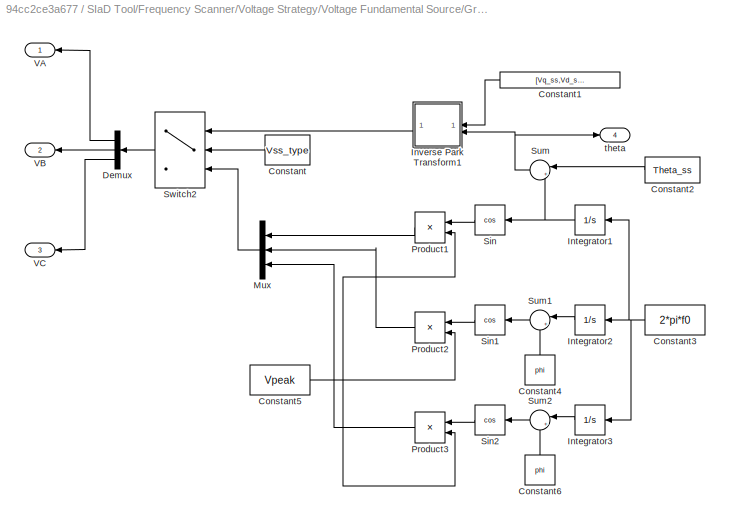
BLOCK [SubSystem] SIaD Tool/Frequency Scanner/Voltage Strategy/Voltage Fundamental Source/Grid Voltages
BLOCK [Constant] SIaD Tool/Frequency Scanner/Voltage Strategy/Voltage Fundamental Source/Grid Voltages/Constant
  NameLocation = top
  Value = Vss_type
BLOCK [Constant] SIaD Tool/Frequency Scanner/Voltage Strategy/Voltage Fundamental Source/Grid Voltages/Constant1
  NameLocation = top
  SampleTime = delta_t
  Value = [Vq_ss,Vd_ss,0]
BLOCK [Constant] SIaD Tool/Frequency Scanner/Voltage Strategy/Voltage Fundamental Source/Grid Voltages/Constant2
  NameLocation = top
  Value = Theta_ss
BLOCK [Constant] SIaD Tool/Frequency Scanner/Voltage Strategy/Voltage Fundamental Source/Grid Voltages/Constant3
  NameLocation = top
  Value = 2*pi*f0
BLOCK [Constant] SIaD Tool/Frequency Scanner/Voltage Strategy/Voltage Fundamental Source/Grid Voltages/Constant4
  NameLocation = right
  Value = phi
BLOCK [Constant] SIaD Tool/Frequency Scanner/Voltage Strategy/Voltage Fundamental Source/Grid Voltages/Constant5
  Value = Vpeak
BLOCK [Constant] SIaD Tool/Frequency Scanner/Voltage Strategy/Voltage Fundamental Source/Grid Voltages/Constant6
  NameLocation = right
  Value = phi
BLOCK [Demux] SIaD Tool/Frequency Scanner/Voltage Strategy/Voltage Fundamental Source/Grid Voltages/Demux
  Outputs = 3
BLOCK [Integrator] SIaD Tool/Frequency Scanner/Voltage Strategy/Voltage Fundamental Source/Grid Voltages/Integrator1
  LowerSaturationLimit = -1E100
  UpperSaturationLimit = 1E100
BLOCK [Integrator] SIaD Tool/Frequency Scanner/Voltage Strategy/Voltage Fundamental Source/Grid Voltages/Integrator2
  LowerSaturationLimit = -1E100
  UpperSaturationLimit = 1E100
BLOCK [Integrator] SIaD Tool/Frequency Scanner/Voltage Strategy/Voltage Fundamental Source/Grid Voltages/Integrator3
  LowerSaturationLimit = -1E100
  UpperSaturationLimit = 1E100
BLOCK [SubSystem] SIaD Tool/Frequency Scanner/Voltage Strategy/Voltage Fundamental Source/Grid Voltages/Inverse Park Transform1
BLOCK [Outport] SIaD Tool/Frequency Scanner/Voltage Strategy/Voltage Fundamental Source/Grid Voltages/Inverse Park Transform1/ABC
BLOCK [Constant] SIaD Tool/Frequency Scanner/Voltage Strategy/Voltage Fundamental Source/Grid Voltages/Inverse Park Transform1/Constant
BLOCK [Constant] SIaD Tool/Frequency Scanner/Voltage Strategy/Voltage Fundamental Source/Grid Voltages/Inverse Park Transform1/Constant3
  NameLocation = right
  Value = (2*pi)/3
BLOCK [Constant] SIaD Tool/Frequency Scanner/Voltage Strategy/Voltage Fundamental Source/Grid Voltages/Inverse Park Transform1/Constant4
  NameLocation = right
  Value = (2*pi)/3
BLOCK [Trigonometry] SIaD Tool/Frequency Scanner/Voltage Strategy/Voltage Fundamental Source/Grid Voltages/Inverse Park Transform1/Cos
  Operator = cos
BLOCK [Concatenate] SIaD Tool/Frequency Scanner/Voltage Strategy/Voltage Fundamental Source/Grid Voltages/Inverse Park Transform1/Matrix Concatenate
  ConcatenateDimension = 2
  Mode = Multidimensional array
  NumInputs = 3
BLOCK [Product] SIaD Tool/Frequency Scanner/Voltage Strategy/Voltage Fundamental Source/Grid Voltages/Inverse Park Transform1/Matrix Multiply
  Multiplication = Matrix(*)
BLOCK [Mux] SIaD Tool/Frequency Scanner/Voltage Strategy/Voltage Fundamental Source/Grid Voltages/Inverse Park Transform1/Mux
  DisplayOption = bar
  Inputs = 3
BLOCK [Mux] SIaD Tool/Frequency Scanner/Voltage Strategy/Voltage Fundamental Source/Grid Voltages/Inverse Park Transform1/Mux1
  DisplayOption = bar
  Inputs = 3
BLOCK [Trigonometry] SIaD Tool/Frequency Scanner/Voltage Strategy/Voltage Fundamental Source/Grid Voltages/Inverse Park Transform1/Sin
BLOCK [Sum] SIaD Tool/Frequency Scanner/Voltage Strategy/Voltage Fundamental Source/Grid Voltages/Inverse Park Transform1/Sum
  Inputs = +-
BLOCK [Sum] SIaD Tool/Frequency Scanner/Voltage Strategy/Voltage Fundamental Source/Grid Voltages/Inverse Park Transform1/Sum1
  Inputs = |++
BLOCK [Inport] SIaD Tool/Frequency Scanner/Voltage Strategy/Voltage Fundamental Source/Grid Voltages/Inverse Park Transform1/qd0
BLOCK [Inport] SIaD Tool/Frequency Scanner/Voltage Strategy/Voltage Fundamental Source/Grid Voltages/Inverse Park Transform1/theta
  Port = 2
BLOCK [Mux] SIaD Tool/Frequency Scanner/Voltage Strategy/Voltage Fundamental Source/Grid Voltages/Mux
  DisplayOption = bar
  Inputs = 3
BLOCK [Product] SIaD Tool/Frequency Scanner/Voltage Strategy/Voltage Fundamental Source/Grid Voltages/Product1
BLOCK [Product] SIaD Tool/Frequency Scanner/Voltage Strategy/Voltage Fundamental Source/Grid Voltages/Product2
BLOCK [Product] SIaD Tool/Frequency Scanner/Voltage Strategy/Voltage Fundamental Source/Grid Voltages/Product3
BLOCK [Trigonometry] SIaD Tool/Frequency Scanner/Voltage Strategy/Voltage Fundamental Source/Grid Voltages/Sin
  Operator = cos
BLOCK [Trigonometry] SIaD Tool/Frequency Scanner/Voltage Strategy/Voltage Fundamental Source/Grid Voltages/Sin1
  Operator = cos
BLOCK [Trigonometry] SIaD Tool/Frequency Scanner/Voltage Strategy/Voltage Fundamental Source/Grid Voltages/Sin2
  Operator = cos
BLOCK [Sum] SIaD Tool/Frequency Scanner/Voltage Strategy/Voltage Fundamental Source/Grid Voltages/Sum
  Inputs = |++
BLOCK [Sum] SIaD Tool/Frequency Scanner/Voltage Strategy/Voltage Fundamental Source/Grid Voltages/Sum1
  Inputs = |+-
BLOCK [Sum] SIaD Tool/Frequency Scanner/Voltage Strategy/Voltage Fundamental Source/Grid Voltages/Sum2
  Inputs = |++
BLOCK [Switch] SIaD Tool/Frequency Scanner/Voltage Strategy/Voltage Fundamental Source/Grid Voltages/Switch2
  Criteria = u2 > Threshold
  InputSameDT = off
  SaturateOnIntegerOverflow = off
  Threshold = 1
BLOCK [Outport] SIaD Tool/Frequency Scanner/Voltage Strategy/Voltage Fundamental Source/Grid Voltages/VA
BLOCK [Outport] SIaD Tool/Frequency Scanner/Voltage Strategy/Voltage Fundamental Source/Grid Voltages/VB
  Port = 2
BLOCK [Outport] SIaD Tool/Frequency Scanner/Voltage Strategy/Voltage Fundamental Source/Grid Voltages/VC
  Port = 3
BLOCK [Outport] SIaD Tool/Frequency Scanner/Voltage Strategy/Voltage Fundamental Source/Grid Voltages/theta
  NameLocation = top
  Port = 4
BLOCK [Reference] SIaD Tool/Frequency Scanner/Voltage Strategy/Voltage Fundamental Source/Ground  REF=spsGroundLib/Ground
  NameLocation = right
  SourceBlock = spsGroundLib/Ground
  SourceType = Ground
BLOCK [Reference] SIaD Tool/Frequency Scanner/Voltage Strategy/Voltage Fundamental Source/Three-Phase Series RLC Branch  REF=spsThreePhaseSeriesRLCBranchLib/Three-Phase
Series RLC Branch
  AttributesFormatString = \n
  SourceBlock = spsThreePhaseSeriesRLCBranchLib/Three-Phase\nSeries RLC Branch
  SourceType = Three-Phase Series RLC Branch
BLOCK [PMIOPort] SIaD Tool/Frequency Scanner/Voltage Strategy/Voltage Fundamental Source/VzA
  Side = Right
BLOCK [PMIOPort] SIaD Tool/Frequency Scanner/Voltage Strategy/Voltage Fundamental Source/VzB
  Port = 2
  Side = Right
BLOCK [PMIOPort] SIaD Tool/Frequency Scanner/Voltage Strategy/Voltage Fundamental Source/VzC
  Port = 3
  Side = Right
BLOCK [Outport] SIaD Tool/Frequency Scanner/Voltage Strategy/Voltage Fundamental Source/theta
BLOCK [SubSystem] SIaD Tool/Frequency Scanner/Voltage Strategy/pn0disturbance
  Commented = on
BLOCK [PMIOPort] SIaD Tool/Frequency Scanner/Voltage Strategy/pn0disturbance/Ain
  NameLocation = top
  Side = Left
BLOCK [PMIOPort] SIaD Tool/Frequency Scanner/Voltage Strategy/pn0disturbance/Aout
  Port = 4
  Side = Right
BLOCK [PMIOPort] SIaD Tool/Frequency Scanner/Voltage Strategy/pn0disturbance/Bin
  NameLocation = top
  Port = 2
  Side = Left
BLOCK [PMIOPort] SIaD Tool/Frequency Scanner/Voltage Strategy/pn0disturbance/Bout
  Port = 5
  Side = Right
BLOCK [PMIOPort] SIaD Tool/Frequency Scanner/Voltage Strategy/pn0disturbance/Cin
  NameLocation = top
  Port = 3
  Side = Left
BLOCK [Constant] SIaD Tool/Frequency Scanner/Voltage Strategy/pn0disturbance/Constant
  Value = signal_type
BLOCK [Reference] SIaD Tool/Frequency Scanner/Voltage Strategy/pn0disturbance/Controlled Voltage Source1  REF=spsControlledVoltageSourceLib/Controlled Voltage Source
  NameLocation = left
  SourceBlock = spsControlledVoltageSourceLib/Controlled Voltage Source
  SourceType = Controlled Voltage Source
BLOCK [Reference] SIaD Tool/Frequency Scanner/Voltage Strategy/pn0disturbance/Controlled Voltage Source2  REF=spsControlledVoltageSourceLib/Controlled Voltage Source
  NameLocation = left
  SourceBlock = spsControlledVoltageSourceLib/Controlled Voltage Source
  SourceType = Controlled Voltage Source
BLOCK [Reference] SIaD Tool/Frequency Scanner/Voltage Strategy/pn0disturbance/Controlled Voltage Source6  REF=spsControlledVoltageSourceLib/Controlled Voltage Source
  NameLocation = left
  SourceBlock = spsControlledVoltageSourceLib/Controlled Voltage Source
  SourceType = Controlled Voltage Source
BLOCK [PMIOPort] SIaD Tool/Frequency Scanner/Voltage Strategy/pn0disturbance/Cout
  Port = 6
  Side = Right
BLOCK [Demux] SIaD Tool/Frequency Scanner/Voltage Strategy/pn0disturbance/Demux
  Outputs = 3
BLOCK [From] SIaD Tool/Frequency Scanner/Voltage Strategy/pn0disturbance/From3
BLOCK [From] SIaD Tool/Frequency Scanner/Voltage Strategy/pn0disturbance/From4
  GotoTag = B
BLOCK [From] SIaD Tool/Frequency Scanner/Voltage Strategy/pn0disturbance/From5
  GotoTag = C
BLOCK [Goto] SIaD Tool/Frequency Scanner/Voltage Strategy/pn0disturbance/Goto1
BLOCK [Goto] SIaD Tool/Frequency Scanner/Voltage Strategy/pn0disturbance/Goto2
  GotoTag = B
BLOCK [Goto] SIaD Tool/Frequency Scanner/Voltage Strategy/pn0disturbance/Goto3
  GotoTag = C
BLOCK [SubSystem] SIaD Tool/Frequency Scanner/Voltage Strategy/pn0disturbance/Multi-tone
BLOCK [Outport] SIaD Tool/Frequency Scanner/Voltage Strategy/pn0disturbance/Multi-tone/ABC
BLOCK [Clock] SIaD Tool/Frequency Scanner/Voltage Strategy/pn0disturbance/Multi-tone/Clock
BLOCK [Constant] SIaD Tool/Frequency Scanner/Voltage Strategy/pn0disturbance/Multi-tone/Constant1
  Value = 0
BLOCK [FromWorkspace] SIaD Tool/Frequency Scanner/Voltage Strategy/pn0disturbance/Multi-tone/From Workspace
  Interpolate = off
  OutputAfterFinalValue = Holding final value
  SampleTime = delta_t
  VariableName = dist_value_0
BLOCK [FromWorkspace] SIaD Tool/Frequency Scanner/Voltage Strategy/pn0disturbance/Multi-tone/From Workspace1
  Interpolate = off
  OutputAfterFinalValue = Holding final value
  SampleTime = delta_t
  VariableName = dist_value_p
BLOCK [FromWorkspace] SIaD Tool/Frequency Scanner/Voltage Strategy/pn0disturbance/Multi-tone/From Workspace2
  Interpolate = off
  OutputAfterFinalValue = Holding final value
  SampleTime = delta_t
  VariableName = dist_value_n
BLOCK [SubSystem] SIaD Tool/Frequency Scanner/Voltage Strategy/pn0disturbance/Multi-tone/Inverse Fortescue Transformation
BLOCK [Inport] SIaD Tool/Frequency Scanner/Voltage Strategy/pn0disturbance/Multi-tone/Inverse Fortescue Transformation/0PN
BLOCK [Outport] SIaD Tool/Frequency Scanner/Voltage Strategy/pn0disturbance/Multi-tone/Inverse Fortescue Transformation/ABC
BLOCK [ComplexToRealImag] SIaD Tool/Frequency Scanner/Voltage Strategy/pn0disturbance/Multi-tone/Inverse Fortescue Transformation/Complex to Real-Imag
BLOCK [Constant] SIaD Tool/Frequency Scanner/Voltage Strategy/pn0disturbance/Multi-tone/Inverse Fortescue Transformation/Constant
  Value = 0
BLOCK [Constant] SIaD Tool/Frequency Scanner/Voltage Strategy/pn0disturbance/Multi-tone/Inverse Fortescue Transformation/Constant1
BLOCK [Constant] SIaD Tool/Frequency Scanner/Voltage Strategy/pn0disturbance/Multi-tone/Inverse Fortescue Transformation/Constant2
  Value = 0
BLOCK [Constant] SIaD Tool/Frequency Scanner/Voltage Strategy/pn0disturbance/Multi-tone/Inverse Fortescue Transformation/Constant43
BLOCK [Constant] SIaD Tool/Frequency Scanner/Voltage Strategy/pn0disturbance/Multi-tone/Inverse Fortescue Transformation/Constant44
  Value = (2/3)*pi
BLOCK [Constant] SIaD Tool/Frequency Scanner/Voltage Strategy/pn0disturbance/Multi-tone/Inverse Fortescue Transformation/Constant45
BLOCK [Constant] SIaD Tool/Frequency Scanner/Voltage Strategy/pn0disturbance/Multi-tone/Inverse Fortescue Transformation/Constant46
  Value = 0
BLOCK [Constant] SIaD Tool/Frequency Scanner/Voltage Strategy/pn0disturbance/Multi-tone/Inverse Fortescue Transformation/Constant47
  Value = 0
BLOCK [Math] SIaD Tool/Frequency Scanner/Voltage Strategy/pn0disturbance/Multi-tone/Inverse Fortescue Transformation/Math Function
BLOCK [Math] SIaD Tool/Frequency Scanner/Voltage Strategy/pn0disturbance/Multi-tone/Inverse Fortescue Transformation/Math Function1
BLOCK [Concatenate] SIaD Tool/Frequency Scanner/Voltage Strategy/pn0disturbance/Multi-tone/Inverse Fortescue Transformation/Matrix Concatenate
  ConcatenateDimension = 2
  Mode = Multidimensional array
  NumInputs = 3
BLOCK [Product] SIaD Tool/Frequency Scanner/Voltage Strategy/pn0disturbance/Multi-tone/Inverse Fortescue Transformation/Matrix Multiply
  Multiplication = Matrix(*)
BLOCK [Mux] SIaD Tool/Frequency Scanner/Voltage Strategy/pn0disturbance/Multi-tone/Inverse Fortescue Transformation/Mux1
  DisplayOption = bar
  Inputs = 3
BLOCK [Mux] SIaD Tool/Frequency Scanner/Voltage Strategy/pn0disturbance/Multi-tone/Inverse Fortescue Transformation/Mux2
  DisplayOption = bar
  Inputs = 3
BLOCK [Mux] SIaD Tool/Frequency Scanner/Voltage Strategy/pn0disturbance/Multi-tone/Inverse Fortescue Transformation/Mux3
  DisplayOption = bar
  Inputs = 3
BLOCK [RealImagToComplex] SIaD Tool/Frequency Scanner/Voltage Strategy/pn0disturbance/Multi-tone/Inverse Fortescue Transformation/Real-Imag to Complex
BLOCK [RealImagToComplex] SIaD Tool/Frequency Scanner/Voltage Strategy/pn0disturbance/Multi-tone/Inverse Fortescue Transformation/Real-Imag to Complex1
BLOCK [RealImagToComplex] SIaD Tool/Frequency Scanner/Voltage Strategy/pn0disturbance/Multi-tone/Inverse Fortescue Transformation/Real-Imag to Complex2
BLOCK [RealImagToComplex] SIaD Tool/Frequency Scanner/Voltage Strategy/pn0disturbance/Multi-tone/Inverse Fortescue Transformation/Real-Imag to Complex5
BLOCK [Math] SIaD Tool/Frequency Scanner/Voltage Strategy/pn0disturbance/Multi-tone/Inverse Fortescue Transformation/Square
  Operator = square
BLOCK [Math] SIaD Tool/Frequency Scanner/Voltage Strategy/pn0disturbance/Multi-tone/Inverse Fortescue Transformation/Square1
  Operator = square
BLOCK [Terminator] SIaD Tool/Frequency Scanner/Voltage Strategy/pn0disturbance/Multi-tone/Inverse Fortescue Transformation/Terminator
  NameLocation = left
BLOCK [Mux] SIaD Tool/Frequency Scanner/Voltage Strategy/pn0disturbance/Multi-tone/Mux
  DisplayOption = bar
  Inputs = 3
BLOCK [Switch] SIaD Tool/Frequency Scanner/Voltage Strategy/pn0disturbance/Multi-tone/Switch1
  Criteria = u2 > Threshold
  InputSameDT = off
  SaturateOnIntegerOverflow = off
  Threshold = dist_time
BLOCK [Switch] SIaD Tool/Frequency Scanner/Voltage Strategy/pn0disturbance/Multi-tone/Switch2
  Criteria = u2 > Threshold
  InputSameDT = off
  SaturateOnIntegerOverflow = off
  Threshold = dist_time
BLOCK [Switch] SIaD Tool/Frequency Scanner/Voltage Strategy/pn0disturbance/Multi-tone/Switch3
  Criteria = u2 > Threshold
  InputSameDT = off
  SaturateOnIntegerOverflow = off
  Threshold = dist_time
BLOCK [SubSystem] SIaD Tool/Frequency Scanner/Voltage Strategy/pn0disturbance/Single-tone
  Commented = on
BLOCK [Outport] SIaD Tool/Frequency Scanner/Voltage Strategy/pn0disturbance/Single-tone/ABC
BLOCK [Constant] SIaD Tool/Frequency Scanner/Voltage Strategy/pn0disturbance/Single-tone/Constant1
  SampleTime = delta_t
  Value = 2*pi*fd
BLOCK [Constant] SIaD Tool/Frequency Scanner/Voltage Strategy/pn0disturbance/Single-tone/Constant1111
  NameLocation = top
  Value = 0
BLOCK [Constant] SIaD Tool/Frequency Scanner/Voltage Strategy/pn0disturbance/Single-tone/Constant222
  Value = dist_value_p
BLOCK [Constant] SIaD Tool/Frequency Scanner/Voltage Strategy/pn0disturbance/Single-tone/Constant49
  Value = dist_value_0
BLOCK [Constant] SIaD Tool/Frequency Scanner/Voltage Strategy/pn0disturbance/Single-tone/Constant50
  Value = dist_value_n
BLOCK [Step] SIaD Tool/Frequency Scanner/Voltage Strategy/pn0disturbance/Single-tone/Disturbance activator
  SampleTime = delta_t
  Time = dist_time
BLOCK [Integrator] SIaD Tool/Frequency Scanner/Voltage Strategy/pn0disturbance/Single-tone/Integrator3
  NameLocation = top
BLOCK [SubSystem] SIaD Tool/Frequency Scanner/Voltage Strategy/pn0disturbance/Single-tone/Inverse Fortescue Transformation
BLOCK [Inport] SIaD Tool/Frequency Scanner/Voltage Strategy/pn0disturbance/Single-tone/Inverse Fortescue Transformation/0PN
BLOCK [Outport] SIaD Tool/Frequency Scanner/Voltage Strategy/pn0disturbance/Single-tone/Inverse Fortescue Transformation/ABC
BLOCK [ComplexToRealImag] SIaD Tool/Frequency Scanner/Voltage Strategy/pn0disturbance/Single-tone/Inverse Fortescue Transformation/Complex to Real-Imag
BLOCK [Constant] SIaD Tool/Frequency Scanner/Voltage Strategy/pn0disturbance/Single-tone/Inverse Fortescue Transformation/Constant
  Value = 0
BLOCK [Constant] SIaD Tool/Frequency Scanner/Voltage Strategy/pn0disturbance/Single-tone/Inverse Fortescue Transformation/Constant1
BLOCK [Constant] SIaD Tool/Frequency Scanner/Voltage Strategy/pn0disturbance/Single-tone/Inverse Fortescue Transformation/Constant2
  Value = 0
BLOCK [Constant] SIaD Tool/Frequency Scanner/Voltage Strategy/pn0disturbance/Single-tone/Inverse Fortescue Transformation/Constant43
BLOCK [Constant] SIaD Tool/Frequency Scanner/Voltage Strategy/pn0disturbance/Single-tone/Inverse Fortescue Transformation/Constant44
  Value = (2/3)*pi
BLOCK [Constant] SIaD Tool/Frequency Scanner/Voltage Strategy/pn0disturbance/Single-tone/Inverse Fortescue Transformation/Constant45
BLOCK [Constant] SIaD Tool/Frequency Scanner/Voltage Strategy/pn0disturbance/Single-tone/Inverse Fortescue Transformation/Constant46
  Value = 0
BLOCK [Constant] SIaD Tool/Frequency Scanner/Voltage Strategy/pn0disturbance/Single-tone/Inverse Fortescue Transformation/Constant47
  Value = 0
BLOCK [Math] SIaD Tool/Frequency Scanner/Voltage Strategy/pn0disturbance/Single-tone/Inverse Fortescue Transformation/Math Function
BLOCK [Math] SIaD Tool/Frequency Scanner/Voltage Strategy/pn0disturbance/Single-tone/Inverse Fortescue Transformation/Math Function1
BLOCK [Concatenate] SIaD Tool/Frequency Scanner/Voltage Strategy/pn0disturbance/Single-tone/Inverse Fortescue Transformation/Matrix Concatenate
  ConcatenateDimension = 2
  Mode = Multidimensional array
  NumInputs = 3
BLOCK [Product] SIaD Tool/Frequency Scanner/Voltage Strategy/pn0disturbance/Single-tone/Inverse Fortescue Transformation/Matrix Multiply
  Multiplication = Matrix(*)
BLOCK [Mux] SIaD Tool/Frequency Scanner/Voltage Strategy/pn0disturbance/Single-tone/Inverse Fortescue Transformation/Mux1
  DisplayOption = bar
  Inputs = 3
BLOCK [Mux] SIaD Tool/Frequency Scanner/Voltage Strategy/pn0disturbance/Single-tone/Inverse Fortescue Transformation/Mux2
  DisplayOption = bar
  Inputs = 3
BLOCK [Mux] SIaD Tool/Frequency Scanner/Voltage Strategy/pn0disturbance/Single-tone/Inverse Fortescue Transformation/Mux3
  DisplayOption = bar
  Inputs = 3
BLOCK [RealImagToComplex] SIaD Tool/Frequency Scanner/Voltage Strategy/pn0disturbance/Single-tone/Inverse Fortescue Transformation/Real-Imag to Complex
BLOCK [RealImagToComplex] SIaD Tool/Frequency Scanner/Voltage Strategy/pn0disturbance/Single-tone/Inverse Fortescue Transformation/Real-Imag to Complex1
BLOCK [RealImagToComplex] SIaD Tool/Frequency Scanner/Voltage Strategy/pn0disturbance/Single-tone/Inverse Fortescue Transformation/Real-Imag to Complex2
BLOCK [RealImagToComplex] SIaD Tool/Frequency Scanner/Voltage Strategy/pn0disturbance/Single-tone/Inverse Fortescue Transformation/Real-Imag to Complex5
BLOCK [Math] SIaD Tool/Frequency Scanner/Voltage Strategy/pn0disturbance/Single-tone/Inverse Fortescue Transformation/Square
  Operator = square
BLOCK [Math] SIaD Tool/Frequency Scanner/Voltage Strategy/pn0disturbance/Single-tone/Inverse Fortescue Transformation/Square1
  Operator = square
BLOCK [Terminator] SIaD Tool/Frequency Scanner/Voltage Strategy/pn0disturbance/Single-tone/Inverse Fortescue Transformation/Terminator
  NameLocation = left
BLOCK [Math] SIaD Tool/Frequency Scanner/Voltage Strategy/pn0disturbance/Single-tone/Math Function3
  NameLocation = top
BLOCK [Math] SIaD Tool/Frequency Scanner/Voltage Strategy/pn0disturbance/Single-tone/Math Function4
  NameLocation = top
BLOCK [Math] SIaD Tool/Frequency Scanner/Voltage Strategy/pn0disturbance/Single-tone/Math Function5
  NameLocation = top
BLOCK [Gain] SIaD Tool/Frequency Scanner/Voltage Strategy/pn0disturbance/Single-tone/Multiply2
  NameLocation = top
BLOCK [Gain] SIaD Tool/Frequency Scanner/Voltage Strategy/pn0disturbance/Single-tone/Multiply3
  NameLocation = top
BLOCK [Gain] SIaD Tool/Frequency Scanner/Voltage Strategy/pn0disturbance/Single-tone/Multiply4
  NameLocation = top
BLOCK [Mux] SIaD Tool/Frequency Scanner/Voltage Strategy/pn0disturbance/Single-tone/Mux1
  DisplayOption = bar
  Inputs = 3
BLOCK [Product] SIaD Tool/Frequency Scanner/Voltage Strategy/pn0disturbance/Single-tone/Product
BLOCK [Product] SIaD Tool/Frequency Scanner/Voltage Strategy/pn0disturbance/Single-tone/Product4
BLOCK [Product] SIaD Tool/Frequency Scanner/Voltage Strategy/pn0disturbance/Single-tone/Product5
  NameLocation = top
BLOCK [Product] SIaD Tool/Frequency Scanner/Voltage Strategy/pn0disturbance/Single-tone/Product8
  NameLocation = top
BLOCK [RealImagToComplex] SIaD Tool/Frequency Scanner/Voltage Strategy/pn0disturbance/Single-tone/Real-Imag to Complex2
  NameLocation = top
BLOCK [RealImagToComplex] SIaD Tool/Frequency Scanner/Voltage Strategy/pn0disturbance/Single-tone/Real-Imag to Complex3
BLOCK [RealImagToComplex] SIaD Tool/Frequency Scanner/Voltage Strategy/pn0disturbance/Single-tone/Real-Imag to Complex4
  NameLocation = top
BLOCK [Switch] SIaD Tool/Frequency Scanner/Voltage Strategy/pn0disturbance/Switch
  Criteria = u2 > Threshold
  InputSameDT = off
  SaturateOnIntegerOverflow = off
  Threshold = 1
BLOCK [Reference] SIaD Tool/Frequency Scanner/Voltage Strategy/pn0disturbance/Three-Phase V-I Measurement3  REF=spsThreePhaseVIMeasurementLib/Three-Phase
V-I Measurement
  SourceBlock = spsThreePhaseVIMeasurementLib/Three-Phase\nV-I Measurement
  SourceType = Three-Phase VI Measurement
BLOCK [SubSystem] SIaD Tool/Frequency Scanner/Voltage Strategy/qd0disturbance
  Commented = on
  PortSchema = {"entries":[{"content":{"sides":[{"content":{"connectorIds":["LConn1","LConn2","LConn3"]},"type":"ConnectorPlacement.EquallySpacedRectSide","uuid":"96b61a08-e73c-4bf9-b44c-8e6d57b8ef4a"},{"content":{"connectorIds":["RConn1","RConn2","RConn3"],"side":"RIGHT"},"type":"ConnectorPlacement.EquallySpacedRectSide","uuid":"3a0e4222-9b60-4a58-9d08-3b159ebff1b9"},{"content":{"connectorIds":["In1"],"side":"T...<+286ch>
BLOCK [PMIOPort] SIaD Tool/Frequency Scanner/Voltage Strategy/qd0disturbance/Ain
  NameLocation = top
  Side = Left
BLOCK [PMIOPort] SIaD Tool/Frequency Scanner/Voltage Strategy/qd0disturbance/Aout
  Port = 4
  Side = Right
BLOCK [PMIOPort] SIaD Tool/Frequency Scanner/Voltage Strategy/qd0disturbance/Bin
  NameLocation = top
  Port = 2
  Side = Left
BLOCK [PMIOPort] SIaD Tool/Frequency Scanner/Voltage Strategy/qd0disturbance/Bout
  Port = 5
  Side = Right
BLOCK [PMIOPort] SIaD Tool/Frequency Scanner/Voltage Strategy/qd0disturbance/Cin
  NameLocation = top
  Port = 3
  Side = Left
BLOCK [Constant] SIaD Tool/Frequency Scanner/Voltage Strategy/qd0disturbance/Constant1
  Value = signal_type
BLOCK [Reference] SIaD Tool/Frequency Scanner/Voltage Strategy/qd0disturbance/Controlled Voltage Source3  REF=spsControlledVoltageSourceLib/Controlled Voltage Source
  NameLocation = left
  SourceBlock = spsControlledVoltageSourceLib/Controlled Voltage Source
  SourceType = Controlled Voltage Source
BLOCK [Reference] SIaD Tool/Frequency Scanner/Voltage Strategy/qd0disturbance/Controlled Voltage Source4  REF=spsControlledVoltageSourceLib/Controlled Voltage Source
  NameLocation = left
  SourceBlock = spsControlledVoltageSourceLib/Controlled Voltage Source
  SourceType = Controlled Voltage Source
BLOCK [Reference] SIaD Tool/Frequency Scanner/Voltage Strategy/qd0disturbance/Controlled Voltage Source5  REF=spsControlledVoltageSourceLib/Controlled Voltage Source
  NameLocation = left
  SourceBlock = spsControlledVoltageSourceLib/Controlled Voltage Source
  SourceType = Controlled Voltage Source
BLOCK [PMIOPort] SIaD Tool/Frequency Scanner/Voltage Strategy/qd0disturbance/Cout
  Port = 6
  Side = Right
BLOCK [Demux] SIaD Tool/Frequency Scanner/Voltage Strategy/qd0disturbance/Demux1
  Outputs = 3
BLOCK [From] SIaD Tool/Frequency Scanner/Voltage Strategy/qd0disturbance/From
BLOCK [From] SIaD Tool/Frequency Scanner/Voltage Strategy/qd0disturbance/From1
  GotoTag = B
BLOCK [From] SIaD Tool/Frequency Scanner/Voltage Strategy/qd0disturbance/From2
  GotoTag = C
BLOCK [From] SIaD Tool/Frequency Scanner/Voltage Strategy/qd0disturbance/From8
  GotoTag = theta
BLOCK [From] SIaD Tool/Frequency Scanner/Voltage Strategy/qd0disturbance/From9
  GotoTag = theta
BLOCK [Goto] SIaD Tool/Frequency Scanner/Voltage Strategy/qd0disturbance/Goto
  GotoTag = theta
BLOCK [Goto] SIaD Tool/Frequency Scanner/Voltage Strategy/qd0disturbance/Goto4
BLOCK [Goto] SIaD Tool/Frequency Scanner/Voltage Strategy/qd0disturbance/Goto5
  GotoTag = B
BLOCK [Goto] SIaD Tool/Frequency Scanner/Voltage Strategy/qd0disturbance/Goto6
  GotoTag = C
BLOCK [SubSystem] SIaD Tool/Frequency Scanner/Voltage Strategy/qd0disturbance/Multi-tone
BLOCK [Outport] SIaD Tool/Frequency Scanner/Voltage Strategy/qd0disturbance/Multi-tone/ABC
BLOCK [Clock] SIaD Tool/Frequency Scanner/Voltage Strategy/qd0disturbance/Multi-tone/Clock1
BLOCK [Constant] SIaD Tool/Frequency Scanner/Voltage Strategy/qd0disturbance/Multi-tone/Constant
  Value = 0
BLOCK [FromWorkspace] SIaD Tool/Frequency Scanner/Voltage Strategy/qd0disturbance/Multi-tone/From Workspace3
  Interpolate = off
  OutputAfterFinalValue = Holding final value
  SampleTime = delta_t
  VariableName = dist_value_q
BLOCK [FromWorkspace] SIaD Tool/Frequency Scanner/Voltage Strategy/qd0disturbance/Multi-tone/From Workspace4
  Interpolate = off
  OutputAfterFinalValue = Holding final value
  SampleTime = delta_t
  VariableName = dist_value_d
BLOCK [Inport] SIaD Tool/Frequency Scanner/Voltage Strategy/qd0disturbance/Multi-tone/In1
  NameLocation = top
BLOCK [SubSystem] SIaD Tool/Frequency Scanner/Voltage Strategy/qd0disturbance/Multi-tone/Inverse Park Transform1
  NameLocation = top
BLOCK [Outport] SIaD Tool/Frequency Scanner/Voltage Strategy/qd0disturbance/Multi-tone/Inverse Park Transform1/ABC
BLOCK [Constant] SIaD Tool/Frequency Scanner/Voltage Strategy/qd0disturbance/Multi-tone/Inverse Park Transform1/Constant
BLOCK [Constant] SIaD Tool/Frequency Scanner/Voltage Strategy/qd0disturbance/Multi-tone/Inverse Park Transform1/Constant3
  NameLocation = right
  Value = (2*pi)/3
BLOCK [Constant] SIaD Tool/Frequency Scanner/Voltage Strategy/qd0disturbance/Multi-tone/Inverse Park Transform1/Constant4
  NameLocation = right
  Value = (2*pi)/3
BLOCK [Trigonometry] SIaD Tool/Frequency Scanner/Voltage Strategy/qd0disturbance/Multi-tone/Inverse Park Transform1/Cos
  Operator = cos
BLOCK [Concatenate] SIaD Tool/Frequency Scanner/Voltage Strategy/qd0disturbance/Multi-tone/Inverse Park Transform1/Matrix Concatenate
  ConcatenateDimension = 2
  Mode = Multidimensional array
  NumInputs = 3
BLOCK [Product] SIaD Tool/Frequency Scanner/Voltage Strategy/qd0disturbance/Multi-tone/Inverse Park Transform1/Matrix Multiply
  Multiplication = Matrix(*)
BLOCK [Mux] SIaD Tool/Frequency Scanner/Voltage Strategy/qd0disturbance/Multi-tone/Inverse Park Transform1/Mux
  DisplayOption = bar
  Inputs = 3
BLOCK [Mux] SIaD Tool/Frequency Scanner/Voltage Strategy/qd0disturbance/Multi-tone/Inverse Park Transform1/Mux1
  DisplayOption = bar
  Inputs = 3
BLOCK [Trigonometry] SIaD Tool/Frequency Scanner/Voltage Strategy/qd0disturbance/Multi-tone/Inverse Park Transform1/Sin
BLOCK [Sum] SIaD Tool/Frequency Scanner/Voltage Strategy/qd0disturbance/Multi-tone/Inverse Park Transform1/Sum
  Inputs = +-
BLOCK [Sum] SIaD Tool/Frequency Scanner/Voltage Strategy/qd0disturbance/Multi-tone/Inverse Park Transform1/Sum1
  Inputs = |++
BLOCK [Inport] SIaD Tool/Frequency Scanner/Voltage Strategy/qd0disturbance/Multi-tone/Inverse Park Transform1/qd0
BLOCK [Inport] SIaD Tool/Frequency Scanner/Voltage Strategy/qd0disturbance/Multi-tone/Inverse Park Transform1/theta
  Port = 2
BLOCK [Mux] SIaD Tool/Frequency Scanner/Voltage Strategy/qd0disturbance/Multi-tone/Mux3
  DisplayOption = bar
  Inputs = 3
BLOCK [Switch] SIaD Tool/Frequency Scanner/Voltage Strategy/qd0disturbance/Multi-tone/Switch
  Criteria = u2 > Threshold
  InputSameDT = off
  SaturateOnIntegerOverflow = off
  Threshold = dist_time
BLOCK [Switch] SIaD Tool/Frequency Scanner/Voltage Strategy/qd0disturbance/Multi-tone/Switch4
  Criteria = u2 > Threshold
  InputSameDT = off
  SaturateOnIntegerOverflow = off
  Threshold = dist_time
BLOCK [Constant] SIaD Tool/Frequency Scanner/Voltage Strategy/qd0disturbance/Multi-tone/Vd
  Value = 0
BLOCK [SubSystem] SIaD Tool/Frequency Scanner/Voltage Strategy/qd0disturbance/Single-tone
  Commented = on
BLOCK [Outport] SIaD Tool/Frequency Scanner/Voltage Strategy/qd0disturbance/Single-tone/ABC
BLOCK [Constant] SIaD Tool/Frequency Scanner/Voltage Strategy/qd0disturbance/Single-tone/Constant18
  NameLocation = top
  Value = dist_value_d
BLOCK [Constant] SIaD Tool/Frequency Scanner/Voltage Strategy/qd0disturbance/Single-tone/Constant19
  Value = 2*pi*fd
BLOCK [Constant] SIaD Tool/Frequency Scanner/Voltage Strategy/qd0disturbance/Single-tone/Constant21
  NameLocation = top
  Value = dist_value_q
BLOCK [Trigonometry] SIaD Tool/Frequency Scanner/Voltage Strategy/qd0disturbance/Single-tone/Cos
  Operator = cos
BLOCK [Trigonometry] SIaD Tool/Frequency Scanner/Voltage Strategy/qd0disturbance/Single-tone/Cos1
  Operator = cos
BLOCK [Step] SIaD Tool/Frequency Scanner/Voltage Strategy/qd0disturbance/Single-tone/Disturbance activator
  After = 1.0
  Before = 0.0
  SampleTime = delta_t
  Time = dist_time
BLOCK [Inport] SIaD Tool/Frequency Scanner/Voltage Strategy/qd0disturbance/Single-tone/In1
  NameLocation = top
BLOCK [Integrator] SIaD Tool/Frequency Scanner/Voltage Strategy/qd0disturbance/Single-tone/Integrator
BLOCK [SubSystem] SIaD Tool/Frequency Scanner/Voltage Strategy/qd0disturbance/Single-tone/Inverse Park Transform
BLOCK [Outport] SIaD Tool/Frequency Scanner/Voltage Strategy/qd0disturbance/Single-tone/Inverse Park Transform/ABC
BLOCK [Constant] SIaD Tool/Frequency Scanner/Voltage Strategy/qd0disturbance/Single-tone/Inverse Park Transform/Constant
BLOCK [Constant] SIaD Tool/Frequency Scanner/Voltage Strategy/qd0disturbance/Single-tone/Inverse Park Transform/Constant3
  NameLocation = right
  Value = (2*pi)/3
BLOCK [Constant] SIaD Tool/Frequency Scanner/Voltage Strategy/qd0disturbance/Single-tone/Inverse Park Transform/Constant4
  NameLocation = right
  Value = (2*pi)/3
BLOCK [Trigonometry] SIaD Tool/Frequency Scanner/Voltage Strategy/qd0disturbance/Single-tone/Inverse Park Transform/Cos
  Operator = cos
BLOCK [Concatenate] SIaD Tool/Frequency Scanner/Voltage Strategy/qd0disturbance/Single-tone/Inverse Park Transform/Matrix Concatenate
  ConcatenateDimension = 2
  Mode = Multidimensional array
  NumInputs = 3
BLOCK [Product] SIaD Tool/Frequency Scanner/Voltage Strategy/qd0disturbance/Single-tone/Inverse Park Transform/Matrix Multiply
  Multiplication = Matrix(*)
BLOCK [Mux] SIaD Tool/Frequency Scanner/Voltage Strategy/qd0disturbance/Single-tone/Inverse Park Transform/Mux
  DisplayOption = bar
  Inputs = 3
BLOCK [Mux] SIaD Tool/Frequency Scanner/Voltage Strategy/qd0disturbance/Single-tone/Inverse Park Transform/Mux1
  DisplayOption = bar
  Inputs = 3
BLOCK [Trigonometry] SIaD Tool/Frequency Scanner/Voltage Strategy/qd0disturbance/Single-tone/Inverse Park Transform/Sin
BLOCK [Sum] SIaD Tool/Frequency Scanner/Voltage Strategy/qd0disturbance/Single-tone/Inverse Park Transform/Sum
  Inputs = +-
BLOCK [Sum] SIaD Tool/Frequency Scanner/Voltage Strategy/qd0disturbance/Single-tone/Inverse Park Transform/Sum1
  Inputs = |++
BLOCK [Inport] SIaD Tool/Frequency Scanner/Voltage Strategy/qd0disturbance/Single-tone/Inverse Park Transform/qd0
BLOCK [Inport] SIaD Tool/Frequency Scanner/Voltage Strategy/qd0disturbance/Single-tone/Inverse Park Transform/theta
  Port = 2
BLOCK [Mux] SIaD Tool/Frequency Scanner/Voltage Strategy/qd0disturbance/Single-tone/Mux23
  DisplayOption = bar
  Inputs = 3
BLOCK [Product] SIaD Tool/Frequency Scanner/Voltage Strategy/qd0disturbance/Single-tone/Product
BLOCK [Product] SIaD Tool/Frequency Scanner/Voltage Strategy/qd0disturbance/Single-tone/Product4
BLOCK [Product] SIaD Tool/Frequency Scanner/Voltage Strategy/qd0disturbance/Single-tone/Product5
BLOCK [Constant] SIaD Tool/Frequency Scanner/Voltage Strategy/qd0disturbance/Single-tone/V0
  NameLocation = left
  Value = 0
BLOCK [Switch] SIaD Tool/Frequency Scanner/Voltage Strategy/qd0disturbance/Switch2
  Criteria = u2 > Threshold
  InputSameDT = off
  SaturateOnIntegerOverflow = off
  Threshold = 1
BLOCK [Reference] SIaD Tool/Frequency Scanner/Voltage Strategy/qd0disturbance/Three-Phase V-I Measurement2  REF=spsThreePhaseVIMeasurementLib/Three-Phase
V-I Measurement
  SourceBlock = spsThreePhaseVIMeasurementLib/Three-Phase\nV-I Measurement
  SourceType = Three-Phase VI Measurement
BLOCK [Inport] SIaD Tool/Frequency Scanner/Voltage Strategy/qd0disturbance/theta
  NameLocation = left
BLOCK [PMIOPort] SIaD Tool/Frequency Scanner/a
  NameLocation = left
  Side = Left
BLOCK [PMIOPort] SIaD Tool/Frequency Scanner/b
  NameLocation = left
  Port = 2
  Side = Left
BLOCK [PMIOPort] SIaD Tool/Frequency Scanner/c
  NameLocation = left
  Port = 3
  Side = Left
BLOCK [From] SIaD Tool/From
  GotoTag = Vabc1
  NameLocation = left
  TagVisibility = global
BLOCK [From] SIaD Tool/From1
  GotoTag = Iabc1
  NameLocation = left
  TagVisibility = global
BLOCK [From] SIaD Tool/From10
  GotoTag = Vabc2
  TagVisibility = global
BLOCK [From] SIaD Tool/From11
  GotoTag = Iabc2
  TagVisibility = global
BLOCK [From] SIaD Tool/From8
  GotoTag = Vabc1
  TagVisibility = global
BLOCK [From] SIaD Tool/From9
  GotoTag = Iabc1
  TagVisibility = global
BLOCK [SubSystem] SIaD Tool/Normal State
  Commented = on
BLOCK [PMIOPort] SIaD Tool/Normal State/A
  Port = 2
  Side = Left
BLOCK [PMIOPort] SIaD Tool/Normal State/B
  Port = 4
  Side = Left
BLOCK [PMIOPort] SIaD Tool/Normal State/C
  Port = 6
  Side = Left
BLOCK [Reference] SIaD Tool/Normal State/Three-Phase V-I Measurement7  REF=spsThreePhaseVIMeasurementLib/Three-Phase
V-I Measurement
  SourceBlock = spsThreePhaseVIMeasurementLib/Three-Phase\nV-I Measurement
  SourceType = Three-Phase VI Measurement
BLOCK [Reference] SIaD Tool/Normal State/Three-Phase V-I Measurement8  REF=spsThreePhaseVIMeasurementLib/Three-Phase
V-I Measurement
  SourceBlock = spsThreePhaseVIMeasurementLib/Three-Phase\nV-I Measurement
  SourceType = Three-Phase VI Measurement
BLOCK [PMIOPort] SIaD Tool/Normal State/a
  Side = Right
BLOCK [PMIOPort] SIaD Tool/Normal State/b
  Port = 3
  Side = Right
BLOCK [PMIOPort] SIaD Tool/Normal State/c
  Port = 5
  Side = Right
BLOCK [SubSystem] SIaD Tool/Steady State
  Commented = on
  NameLocation = left
BLOCK [Inport] SIaD Tool/Steady State/Current
  Port = 2
BLOCK [Demux] SIaD Tool/Steady State/Demux1
  Outputs = 3
BLOCK [Demux] SIaD Tool/Steady State/Demux2
  Outputs = 3
BLOCK [SubSystem] SIaD Tool/Steady State/Fortescue Transformation
BLOCK [Outport] SIaD Tool/Steady State/Fortescue Transformation/0PN
BLOCK [Inport] SIaD Tool/Steady State/Fortescue Transformation/ABC
BLOCK [Constant] SIaD Tool/Steady State/Fortescue Transformation/Constant
  Value = 0
BLOCK [Constant] SIaD Tool/Steady State/Fortescue Transformation/Constant1
  Value = (2/3)*pi
BLOCK [Constant] SIaD Tool/Steady State/Fortescue Transformation/Constant2
BLOCK [Constant] SIaD Tool/Steady State/Fortescue Transformation/Constant3
  Value = 0
BLOCK [Constant] SIaD Tool/Steady State/Fortescue Transformation/Constant43
BLOCK [Constant] SIaD Tool/Steady State/Fortescue Transformation/Constant45
BLOCK [Constant] SIaD Tool/Steady State/Fortescue Transformation/Constant46
  Value = 0
BLOCK [Constant] SIaD Tool/Steady State/Fortescue Transformation/Constant47
  Value = 0
BLOCK [Math] SIaD Tool/Steady State/Fortescue Transformation/Math Function
BLOCK [Math] SIaD Tool/Steady State/Fortescue Transformation/Math Function1
BLOCK [Concatenate] SIaD Tool/Steady State/Fortescue Transformation/Matrix Concatenate
  ConcatenateDimension = 2
  Mode = Multidimensional array
  NumInputs = 3
BLOCK [Product] SIaD Tool/Steady State/Fortescue Transformation/Matrix Multiply
  Multiplication = Matrix(*)
BLOCK [Gain] SIaD Tool/Steady State/Fortescue Transformation/Multiply
  Gain = 1/3
BLOCK [Mux] SIaD Tool/Steady State/Fortescue Transformation/Mux1
  DisplayOption = bar
  Inputs = 3
BLOCK [Mux] SIaD Tool/Steady State/Fortescue Transformation/Mux2
  DisplayOption = bar
  Inputs = 3
BLOCK [Mux] SIaD Tool/Steady State/Fortescue Transformation/Mux3
  DisplayOption = bar
  Inputs = 3
BLOCK [RealImagToComplex] SIaD Tool/Steady State/Fortescue Transformation/Real-Imag to Complex
BLOCK [RealImagToComplex] SIaD Tool/Steady State/Fortescue Transformation/Real-Imag to Complex1
BLOCK [RealImagToComplex] SIaD Tool/Steady State/Fortescue Transformation/Real-Imag to Complex2
BLOCK [RealImagToComplex] SIaD Tool/Steady State/Fortescue Transformation/Real-Imag to Complex5
BLOCK [Math] SIaD Tool/Steady State/Fortescue Transformation/Square
  Operator = square
BLOCK [Math] SIaD Tool/Steady State/Fortescue Transformation/Square1
  Operator = square
BLOCK [SubSystem] SIaD Tool/Steady State/Fortescue Transformation1
BLOCK [Outport] SIaD Tool/Steady State/Fortescue Transformation1/0PN
BLOCK [Inport] SIaD Tool/Steady State/Fortescue Transformation1/ABC
BLOCK [Constant] SIaD Tool/Steady State/Fortescue Transformation1/Constant
  Value = 0
BLOCK [Constant] SIaD Tool/Steady State/Fortescue Transformation1/Constant1
  Value = (2/3)*pi
BLOCK [Constant] SIaD Tool/Steady State/Fortescue Transformation1/Constant2
BLOCK [Constant] SIaD Tool/Steady State/Fortescue Transformation1/Constant3
  Value = 0
BLOCK [Constant] SIaD Tool/Steady State/Fortescue Transformation1/Constant43
BLOCK [Constant] SIaD Tool/Steady State/Fortescue Transformation1/Constant45
BLOCK [Constant] SIaD Tool/Steady State/Fortescue Transformation1/Constant46
  Value = 0
BLOCK [Constant] SIaD Tool/Steady State/Fortescue Transformation1/Constant47
  Value = 0
BLOCK [Math] SIaD Tool/Steady State/Fortescue Transformation1/Math Function
BLOCK [Math] SIaD Tool/Steady State/Fortescue Transformation1/Math Function1
BLOCK [Concatenate] SIaD Tool/Steady State/Fortescue Transformation1/Matrix Concatenate
  ConcatenateDimension = 2
  Mode = Multidimensional array
  NumInputs = 3
BLOCK [Product] SIaD Tool/Steady State/Fortescue Transformation1/Matrix Multiply
  Multiplication = Matrix(*)
BLOCK [Gain] SIaD Tool/Steady State/Fortescue Transformation1/Multiply
  Gain = 1/3
BLOCK [Mux] SIaD Tool/Steady State/Fortescue Transformation1/Mux1
  DisplayOption = bar
  Inputs = 3
BLOCK [Mux] SIaD Tool/Steady State/Fortescue Transformation1/Mux2
  DisplayOption = bar
  Inputs = 3
BLOCK [Mux] SIaD Tool/Steady State/Fortescue Transformation1/Mux3
  DisplayOption = bar
  Inputs = 3
BLOCK [RealImagToComplex] SIaD Tool/Steady State/Fortescue Transformation1/Real-Imag to Complex
BLOCK [RealImagToComplex] SIaD Tool/Steady State/Fortescue Transformation1/Real-Imag to Complex1
BLOCK [RealImagToComplex] SIaD Tool/Steady State/Fortescue Transformation1/Real-Imag to Complex2
BLOCK [RealImagToComplex] SIaD Tool/Steady State/Fortescue Transformation1/Real-Imag to Complex5
BLOCK [Math] SIaD Tool/Steady State/Fortescue Transformation1/Square
  Operator = square
BLOCK [Math] SIaD Tool/Steady State/Fortescue Transformation1/Square1
  Operator = square
BLOCK [From] SIaD Tool/Steady State/From
  GotoTag = wt_ss
BLOCK [From] SIaD Tool/Steady State/From1
  GotoTag = wt_ss
BLOCK [Goto] SIaD Tool/Steady State/Goto
  GotoTag = wt_ss
  NameLocation = top
BLOCK [Mux] SIaD Tool/Steady State/Mux1
  DisplayOption = bar
  Inputs = 2
BLOCK [Mux] SIaD Tool/Steady State/Mux2
  DisplayOption = bar
  Inputs = 2
BLOCK [Reference] SIaD Tool/Steady State/PLL (3ph)  REF=spsPLL3phLib/PLL
(3ph)
  NameLocation = top
  SourceBlock = spsPLL3phLib/PLL\n(3ph)
  SourceType = PLL (3ph)
BLOCK [SubSystem] SIaD Tool/Steady State/Park Transform1
BLOCK [Inport] SIaD Tool/Steady State/Park Transform1/ABC
BLOCK [Constant] SIaD Tool/Steady State/Park Transform1/Constant
  Value = 1/2
BLOCK [Constant] SIaD Tool/Steady State/Park Transform1/Constant1
  Value = 1/2
BLOCK [Constant] SIaD Tool/Steady State/Park Transform1/Constant2
  Value = 1/2
BLOCK [Constant] SIaD Tool/Steady State/Park Transform1/Constant3
  Value = (2*pi)/3
BLOCK [Constant] SIaD Tool/Steady State/Park Transform1/Constant4
  Value = (2*pi)/3
BLOCK [Trigonometry] SIaD Tool/Steady State/Park Transform1/Cos
  Operator = cos
BLOCK [Trigonometry] SIaD Tool/Steady State/Park Transform1/Cos1
  Operator = cos
BLOCK [Trigonometry] SIaD Tool/Steady State/Park Transform1/Cos2
  Operator = cos
BLOCK [Gain] SIaD Tool/Steady State/Park Transform1/Gain
  Gain = 2/3
BLOCK [Concatenate] SIaD Tool/Steady State/Park Transform1/Matrix Concatenate
  ConcatenateDimension = 2
  Mode = Multidimensional array
  NumInputs = 3
BLOCK [Product] SIaD Tool/Steady State/Park Transform1/Matrix Multiply
  Multiplication = Matrix(*)
BLOCK [Mux] SIaD Tool/Steady State/Park Transform1/Mux
  DisplayOption = bar
  Inputs = 3
BLOCK [Mux] SIaD Tool/Steady State/Park Transform1/Mux1
  DisplayOption = bar
  Inputs = 3
BLOCK [Mux] SIaD Tool/Steady State/Park Transform1/Mux2
  DisplayOption = bar
  Inputs = 3
BLOCK [Trigonometry] SIaD Tool/Steady State/Park Transform1/Sin
BLOCK [Trigonometry] SIaD Tool/Steady State/Park Transform1/Sin1
BLOCK [Trigonometry] SIaD Tool/Steady State/Park Transform1/Sin2
BLOCK [Sum] SIaD Tool/Steady State/Park Transform1/Sum
  Inputs = |+-
BLOCK [Sum] SIaD Tool/Steady State/Park Transform1/Sum1
  Inputs = |++
BLOCK [Outport] SIaD Tool/Steady State/Park Transform1/qd0
BLOCK [Inport] SIaD Tool/Steady State/Park Transform1/wt
  Port = 2
BLOCK [SubSystem] SIaD Tool/Steady State/Park Transform2
BLOCK [Inport] SIaD Tool/Steady State/Park Transform2/ABC
BLOCK [Constant] SIaD Tool/Steady State/Park Transform2/Constant
  Value = 1/2
BLOCK [Constant] SIaD Tool/Steady State/Park Transform2/Constant1
  Value = 1/2
BLOCK [Constant] SIaD Tool/Steady State/Park Transform2/Constant2
  Value = 1/2
BLOCK [Constant] SIaD Tool/Steady State/Park Transform2/Constant3
  Value = (2*pi)/3
BLOCK [Constant] SIaD Tool/Steady State/Park Transform2/Constant4
  Value = (2*pi)/3
BLOCK [Trigonometry] SIaD Tool/Steady State/Park Transform2/Cos
  Operator = cos
BLOCK [Trigonometry] SIaD Tool/Steady State/Park Transform2/Cos1
  Operator = cos
BLOCK [Trigonometry] SIaD Tool/Steady State/Park Transform2/Cos2
  Operator = cos
BLOCK [Gain] SIaD Tool/Steady State/Park Transform2/Gain
  Gain = 2/3
BLOCK [Concatenate] SIaD Tool/Steady State/Park Transform2/Matrix Concatenate
  ConcatenateDimension = 2
  Mode = Multidimensional array
  NumInputs = 3
BLOCK [Product] SIaD Tool/Steady State/Park Transform2/Matrix Multiply
  Multiplication = Matrix(*)
BLOCK [Mux] SIaD Tool/Steady State/Park Transform2/Mux
  DisplayOption = bar
  Inputs = 3
BLOCK [Mux] SIaD Tool/Steady State/Park Transform2/Mux1
  DisplayOption = bar
  Inputs = 3
BLOCK [Mux] SIaD Tool/Steady State/Park Transform2/Mux2
  DisplayOption = bar
  Inputs = 3
BLOCK [Trigonometry] SIaD Tool/Steady State/Park Transform2/Sin
BLOCK [Trigonometry] SIaD Tool/Steady State/Park Transform2/Sin1
BLOCK [Trigonometry] SIaD Tool/Steady State/Park Transform2/Sin2
BLOCK [Sum] SIaD Tool/Steady State/Park Transform2/Sum
  Inputs = |+-
BLOCK [Sum] SIaD Tool/Steady State/Park Transform2/Sum1
  Inputs = |++
BLOCK [Outport] SIaD Tool/Steady State/Park Transform2/qd0
BLOCK [Inport] SIaD Tool/Steady State/Park Transform2/wt
  Port = 2
BLOCK [Terminator] SIaD Tool/Steady State/Terminator1
  NameLocation = left
BLOCK [Terminator] SIaD Tool/Steady State/Terminator2
  NameLocation = left
BLOCK [Terminator] SIaD Tool/Steady State/Terminator4
  NameLocation = left
BLOCK [ToWorkspace] SIaD Tool/Steady State/To Workspace1
  FixptAsFi = on
  MaxDataPoints = inf
  NameLocation = right
  SampleTime = -1
  VariableName = Vabc_ss
BLOCK [ToWorkspace] SIaD Tool/Steady State/To Workspace2
  FixptAsFi = on
  MaxDataPoints = inf
  NameLocation = right
  SampleTime = -1
  VariableName = Iabc_ss
BLOCK [ToWorkspace] SIaD Tool/Steady State/To Workspace22
  FixptAsFi = on
  MaxDataPoints = inf
  NameLocation = right
  SampleTime = -1
  VariableName = Vdq_ss
BLOCK [ToWorkspace] SIaD Tool/Steady State/To Workspace3
  FixptAsFi = on
  MaxDataPoints = inf
  NameLocation = right
  SampleTime = -1
  VariableName = Idq_ss
BLOCK [ToWorkspace] SIaD Tool/Steady State/To Workspace4
  FixptAsFi = on
  MaxDataPoints = inf
  NameLocation = right
  SampleTime = -1
  VariableName = I0pn_ss
BLOCK [ToWorkspace] SIaD Tool/Steady State/To Workspace5
  FixptAsFi = on
  MaxDataPoints = inf
  NameLocation = right
  SampleTime = -1
  VariableName = Theta_ss
BLOCK [ToWorkspace] SIaD Tool/Steady State/To Workspace7
  FixptAsFi = on
  MaxDataPoints = inf
  NameLocation = right
  SampleTime = -1
  VariableName = V0pn_ss
BLOCK [Inport] SIaD Tool/Steady State/Voltage
BLOCK [SubSystem] SIaD Tool/System 1
BLOCK [Reference] SIaD Tool/System 1 Meas  REF=spsThreePhaseVIMeasurementLib/Three-Phase
V-I Measurement
  NameLocation = top
  SourceBlock = spsThreePhaseVIMeasurementLib/Three-Phase\nV-I Measurement
  SourceType = Three-Phase VI Measurement
BLOCK [SubSystem] SIaD Tool/System 1/0pn Sequence
  Commented = on
BLOCK [SubSystem] SIaD Tool/System 1/0pn Sequence/Fortescue Transformation
BLOCK [Outport] SIaD Tool/System 1/0pn Sequence/Fortescue Transformation/0PN
BLOCK [Inport] SIaD Tool/System 1/0pn Sequence/Fortescue Transformation/ABC
BLOCK [Constant] SIaD Tool/System 1/0pn Sequence/Fortescue Transformation/Constant
  Value = 0
BLOCK [Constant] SIaD Tool/System 1/0pn Sequence/Fortescue Transformation/Constant1
  Value = (2/3)*pi
BLOCK [Constant] SIaD Tool/System 1/0pn Sequence/Fortescue Transformation/Constant2
BLOCK [Constant] SIaD Tool/System 1/0pn Sequence/Fortescue Transformation/Constant3
  Value = 0
BLOCK [Constant] SIaD Tool/System 1/0pn Sequence/Fortescue Transformation/Constant43
BLOCK [Constant] SIaD Tool/System 1/0pn Sequence/Fortescue Transformation/Constant45
BLOCK [Constant] SIaD Tool/System 1/0pn Sequence/Fortescue Transformation/Constant46
  Value = 0
BLOCK [Constant] SIaD Tool/System 1/0pn Sequence/Fortescue Transformation/Constant47
  Value = 0
BLOCK [Math] SIaD Tool/System 1/0pn Sequence/Fortescue Transformation/Math Function
BLOCK [Math] SIaD Tool/System 1/0pn Sequence/Fortescue Transformation/Math Function1
BLOCK [Concatenate] SIaD Tool/System 1/0pn Sequence/Fortescue Transformation/Matrix Concatenate
  ConcatenateDimension = 2
  Mode = Multidimensional array
  NumInputs = 3
BLOCK [Product] SIaD Tool/System 1/0pn Sequence/Fortescue Transformation/Matrix Multiply
  Multiplication = Matrix(*)
BLOCK [Gain] SIaD Tool/System 1/0pn Sequence/Fortescue Transformation/Multiply
  Gain = 1/3
BLOCK [Mux] SIaD Tool/System 1/0pn Sequence/Fortescue Transformation/Mux1
  DisplayOption = bar
  Inputs = 3
BLOCK [Mux] SIaD Tool/System 1/0pn Sequence/Fortescue Transformation/Mux2
  DisplayOption = bar
  Inputs = 3
BLOCK [Mux] SIaD Tool/System 1/0pn Sequence/Fortescue Transformation/Mux3
  DisplayOption = bar
  Inputs = 3
BLOCK [RealImagToComplex] SIaD Tool/System 1/0pn Sequence/Fortescue Transformation/Real-Imag to Complex
BLOCK [RealImagToComplex] SIaD Tool/System 1/0pn Sequence/Fortescue Transformation/Real-Imag to Complex1
BLOCK [RealImagToComplex] SIaD Tool/System 1/0pn Sequence/Fortescue Transformation/Real-Imag to Complex2
BLOCK [RealImagToComplex] SIaD Tool/System 1/0pn Sequence/Fortescue Transformation/Real-Imag to Complex5
BLOCK [Math] SIaD Tool/System 1/0pn Sequence/Fortescue Transformation/Square
  Operator = square
BLOCK [Math] SIaD Tool/System 1/0pn Sequence/Fortescue Transformation/Square1
  Operator = square
BLOCK [SubSystem] SIaD Tool/System 1/0pn Sequence/Fortescue Transformation1
BLOCK [Outport] SIaD Tool/System 1/0pn Sequence/Fortescue Transformation1/0PN
BLOCK [Inport] SIaD Tool/System 1/0pn Sequence/Fortescue Transformation1/ABC
BLOCK [Constant] SIaD Tool/System 1/0pn Sequence/Fortescue Transformation1/Constant
  Value = 0
BLOCK [Constant] SIaD Tool/System 1/0pn Sequence/Fortescue Transformation1/Constant1
  Value = (2/3)*pi
BLOCK [Constant] SIaD Tool/System 1/0pn Sequence/Fortescue Transformation1/Constant2
BLOCK [Constant] SIaD Tool/System 1/0pn Sequence/Fortescue Transformation1/Constant3
  Value = 0
BLOCK [Constant] SIaD Tool/System 1/0pn Sequence/Fortescue Transformation1/Constant43
BLOCK [Constant] SIaD Tool/System 1/0pn Sequence/Fortescue Transformation1/Constant45
BLOCK [Constant] SIaD Tool/System 1/0pn Sequence/Fortescue Transformation1/Constant46
  Value = 0
BLOCK [Constant] SIaD Tool/System 1/0pn Sequence/Fortescue Transformation1/Constant47
  Value = 0
BLOCK [Math] SIaD Tool/System 1/0pn Sequence/Fortescue Transformation1/Math Function
BLOCK [Math] SIaD Tool/System 1/0pn Sequence/Fortescue Transformation1/Math Function1
BLOCK [Concatenate] SIaD Tool/System 1/0pn Sequence/Fortescue Transformation1/Matrix Concatenate
  ConcatenateDimension = 2
  Mode = Multidimensional array
  NumInputs = 3
BLOCK [Product] SIaD Tool/System 1/0pn Sequence/Fortescue Transformation1/Matrix Multiply
  Multiplication = Matrix(*)
BLOCK [Gain] SIaD Tool/System 1/0pn Sequence/Fortescue Transformation1/Multiply
  Gain = 1/3
BLOCK [Mux] SIaD Tool/System 1/0pn Sequence/Fortescue Transformation1/Mux1
  DisplayOption = bar
  Inputs = 3
BLOCK [Mux] SIaD Tool/System 1/0pn Sequence/Fortescue Transformation1/Mux2
  DisplayOption = bar
  Inputs = 3
BLOCK [Mux] SIaD Tool/System 1/0pn Sequence/Fortescue Transformation1/Mux3
  DisplayOption = bar
  Inputs = 3
BLOCK [RealImagToComplex] SIaD Tool/System 1/0pn Sequence/Fortescue Transformation1/Real-Imag to Complex
BLOCK [RealImagToComplex] SIaD Tool/System 1/0pn Sequence/Fortescue Transformation1/Real-Imag to Complex1
BLOCK [RealImagToComplex] SIaD Tool/System 1/0pn Sequence/Fortescue Transformation1/Real-Imag to Complex2
BLOCK [RealImagToComplex] SIaD Tool/System 1/0pn Sequence/Fortescue Transformation1/Real-Imag to Complex5
BLOCK [Math] SIaD Tool/System 1/0pn Sequence/Fortescue Transformation1/Square
  Operator = square
BLOCK [Math] SIaD Tool/System 1/0pn Sequence/Fortescue Transformation1/Square1
  Operator = square
BLOCK [Inport] SIaD Tool/System 1/0pn Sequence/Iabc
  Port = 2
BLOCK [ToWorkspace] SIaD Tool/System 1/0pn Sequence/To Workspace53
  FixptAsFi = on
  MaxDataPoints = inf
  SampleTime = -1
  VariableName = I0pn1
BLOCK [ToWorkspace] SIaD Tool/System 1/0pn Sequence/To Workspace7
  FixptAsFi = on
  MaxDataPoints = inf
  NameLocation = right
  SampleTime = -1
  VariableName = V0pn1
BLOCK [Inport] SIaD Tool/System 1/0pn Sequence/Vabc
BLOCK [SubSystem] SIaD Tool/System 1/ABC Sequence
BLOCK [Inport] SIaD Tool/System 1/ABC Sequence/Iabc
  Port = 2
BLOCK [ToWorkspace] SIaD Tool/System 1/ABC Sequence/To Workspace4
  FixptAsFi = on
  MaxDataPoints = inf
  SampleTime = -1
  VariableName = Vabc1
BLOCK [ToWorkspace] SIaD Tool/System 1/ABC Sequence/To Workspace5
  FixptAsFi = on
  MaxDataPoints = inf
  SampleTime = -1
  VariableName = Iabc1
BLOCK [Inport] SIaD Tool/System 1/ABC Sequence/Vabc
BLOCK [Inport] SIaD Tool/System 1/Current1
  Port = 2
BLOCK [Inport] SIaD Tool/System 1/Voltage1
BLOCK [SubSystem] SIaD Tool/System 1/dq0 Sequence
  Commented = on
BLOCK [Demux] SIaD Tool/System 1/dq0 Sequence/Demux2
  Outputs = 3
BLOCK [Demux] SIaD Tool/System 1/dq0 Sequence/Demux3
  Outputs = 3
BLOCK [From] SIaD Tool/System 1/dq0 Sequence/From4
  GotoTag = theta_ref
  TagVisibility = global
BLOCK [From] SIaD Tool/System 1/dq0 Sequence/From5
  GotoTag = theta_ref
  TagVisibility = global
BLOCK [Inport] SIaD Tool/System 1/dq0 Sequence/Iabc
  Port = 2
BLOCK [Mux] SIaD Tool/System 1/dq0 Sequence/Mux1
  DisplayOption = bar
  Inputs = 2
BLOCK [Mux] SIaD Tool/System 1/dq0 Sequence/Mux2
  DisplayOption = bar
  Inputs = 2
BLOCK [SubSystem] SIaD Tool/System 1/dq0 Sequence/Park Transform
BLOCK [Inport] SIaD Tool/System 1/dq0 Sequence/Park Transform/ABC
BLOCK [Constant] SIaD Tool/System 1/dq0 Sequence/Park Transform/Constant
  Value = 1/2
BLOCK [Constant] SIaD Tool/System 1/dq0 Sequence/Park Transform/Constant1
  Value = 1/2
BLOCK [Constant] SIaD Tool/System 1/dq0 Sequence/Park Transform/Constant2
  Value = 1/2
BLOCK [Constant] SIaD Tool/System 1/dq0 Sequence/Park Transform/Constant3
  Value = (2*pi)/3
BLOCK [Constant] SIaD Tool/System 1/dq0 Sequence/Park Transform/Constant4
  Value = (2*pi)/3
BLOCK [Trigonometry] SIaD Tool/System 1/dq0 Sequence/Park Transform/Cos
  Operator = cos
BLOCK [Trigonometry] SIaD Tool/System 1/dq0 Sequence/Park Transform/Cos1
  Operator = cos
BLOCK [Trigonometry] SIaD Tool/System 1/dq0 Sequence/Park Transform/Cos2
  Operator = cos
BLOCK [Gain] SIaD Tool/System 1/dq0 Sequence/Park Transform/Gain
  Gain = 2/3
BLOCK [Concatenate] SIaD Tool/System 1/dq0 Sequence/Park Transform/Matrix Concatenate
  ConcatenateDimension = 2
  Mode = Multidimensional array
  NumInputs = 3
BLOCK [Product] SIaD Tool/System 1/dq0 Sequence/Park Transform/Matrix Multiply
  Multiplication = Matrix(*)
BLOCK [Mux] SIaD Tool/System 1/dq0 Sequence/Park Transform/Mux
  DisplayOption = bar
  Inputs = 3
BLOCK [Mux] SIaD Tool/System 1/dq0 Sequence/Park Transform/Mux1
  DisplayOption = bar
  Inputs = 3
BLOCK [Mux] SIaD Tool/System 1/dq0 Sequence/Park Transform/Mux2
  DisplayOption = bar
  Inputs = 3
BLOCK [Trigonometry] SIaD Tool/System 1/dq0 Sequence/Park Transform/Sin
BLOCK [Trigonometry] SIaD Tool/System 1/dq0 Sequence/Park Transform/Sin1
BLOCK [Trigonometry] SIaD Tool/System 1/dq0 Sequence/Park Transform/Sin2
BLOCK [Sum] SIaD Tool/System 1/dq0 Sequence/Park Transform/Sum
  Inputs = |+-
BLOCK [Sum] SIaD Tool/System 1/dq0 Sequence/Park Transform/Sum1
  Inputs = |++
BLOCK [Outport] SIaD Tool/System 1/dq0 Sequence/Park Transform/qd0
BLOCK [Inport] SIaD Tool/System 1/dq0 Sequence/Park Transform/wt
  Port = 2
BLOCK [SubSystem] SIaD Tool/System 1/dq0 Sequence/Park Transform1
BLOCK [Inport] SIaD Tool/System 1/dq0 Sequence/Park Transform1/ABC
BLOCK [Constant] SIaD Tool/System 1/dq0 Sequence/Park Transform1/Constant
  Value = 1/2
BLOCK [Constant] SIaD Tool/System 1/dq0 Sequence/Park Transform1/Constant1
  Value = 1/2
BLOCK [Constant] SIaD Tool/System 1/dq0 Sequence/Park Transform1/Constant2
  Value = 1/2
BLOCK [Constant] SIaD Tool/System 1/dq0 Sequence/Park Transform1/Constant3
  Value = (2*pi)/3
BLOCK [Constant] SIaD Tool/System 1/dq0 Sequence/Park Transform1/Constant4
  Value = (2*pi)/3
BLOCK [Trigonometry] SIaD Tool/System 1/dq0 Sequence/Park Transform1/Cos
  Operator = cos
BLOCK [Trigonometry] SIaD Tool/System 1/dq0 Sequence/Park Transform1/Cos1
  Operator = cos
BLOCK [Trigonometry] SIaD Tool/System 1/dq0 Sequence/Park Transform1/Cos2
  Operator = cos
BLOCK [Gain] SIaD Tool/System 1/dq0 Sequence/Park Transform1/Gain
  Gain = 2/3
BLOCK [Concatenate] SIaD Tool/System 1/dq0 Sequence/Park Transform1/Matrix Concatenate
  ConcatenateDimension = 2
  Mode = Multidimensional array
  NumInputs = 3
BLOCK [Product] SIaD Tool/System 1/dq0 Sequence/Park Transform1/Matrix Multiply
  Multiplication = Matrix(*)
BLOCK [Mux] SIaD Tool/System 1/dq0 Sequence/Park Transform1/Mux
  DisplayOption = bar
  Inputs = 3
BLOCK [Mux] SIaD Tool/System 1/dq0 Sequence/Park Transform1/Mux1
  DisplayOption = bar
  Inputs = 3
BLOCK [Mux] SIaD Tool/System 1/dq0 Sequence/Park Transform1/Mux2
  DisplayOption = bar
  Inputs = 3
BLOCK [Trigonometry] SIaD Tool/System 1/dq0 Sequence/Park Transform1/Sin
BLOCK [Trigonometry] SIaD Tool/System 1/dq0 Sequence/Park Transform1/Sin1
BLOCK [Trigonometry] SIaD Tool/System 1/dq0 Sequence/Park Transform1/Sin2
BLOCK [Sum] SIaD Tool/System 1/dq0 Sequence/Park Transform1/Sum
  Inputs = |+-
BLOCK [Sum] SIaD Tool/System 1/dq0 Sequence/Park Transform1/Sum1
  Inputs = |++
BLOCK [Outport] SIaD Tool/System 1/dq0 Sequence/Park Transform1/qd0
BLOCK [Inport] SIaD Tool/System 1/dq0 Sequence/Park Transform1/wt
  Port = 2
BLOCK [Terminator] SIaD Tool/System 1/dq0 Sequence/Terminator1
  NameLocation = left
BLOCK [Terminator] SIaD Tool/System 1/dq0 Sequence/Terminator2
  NameLocation = left
BLOCK [ToWorkspace] SIaD Tool/System 1/dq0 Sequence/To Workspace22
  FixptAsFi = on
  MaxDataPoints = inf
  NameLocation = right
  SampleTime = -1
  VariableName = Vqd1
BLOCK [ToWorkspace] SIaD Tool/System 1/dq0 Sequence/To Workspace23
  FixptAsFi = on
  MaxDataPoints = inf
  NameLocation = top
  SampleTime = -1
  VariableName = Iqd1
BLOCK [Inport] SIaD Tool/System 1/dq0 Sequence/Vabc
BLOCK [SubSystem] SIaD Tool/System 2
BLOCK [Reference] SIaD Tool/System 2 Meas  REF=spsThreePhaseVIMeasurementLib/Three-Phase
V-I Measurement
  NameLocation = top
  SourceBlock = spsThreePhaseVIMeasurementLib/Three-Phase\nV-I Measurement
  SourceType = Three-Phase VI Measurement
BLOCK [SubSystem] SIaD Tool/System 2/0pn Sequence
  Commented = on
BLOCK [SubSystem] SIaD Tool/System 2/0pn Sequence/Fortescue Transformation
BLOCK [Outport] SIaD Tool/System 2/0pn Sequence/Fortescue Transformation/0PN
BLOCK [Inport] SIaD Tool/System 2/0pn Sequence/Fortescue Transformation/ABC
BLOCK [Constant] SIaD Tool/System 2/0pn Sequence/Fortescue Transformation/Constant
  Value = 0
BLOCK [Constant] SIaD Tool/System 2/0pn Sequence/Fortescue Transformation/Constant1
  Value = (2/3)*pi
BLOCK [Constant] SIaD Tool/System 2/0pn Sequence/Fortescue Transformation/Constant2
BLOCK [Constant] SIaD Tool/System 2/0pn Sequence/Fortescue Transformation/Constant3
  Value = 0
BLOCK [Constant] SIaD Tool/System 2/0pn Sequence/Fortescue Transformation/Constant43
BLOCK [Constant] SIaD Tool/System 2/0pn Sequence/Fortescue Transformation/Constant45
BLOCK [Constant] SIaD Tool/System 2/0pn Sequence/Fortescue Transformation/Constant46
  Value = 0
BLOCK [Constant] SIaD Tool/System 2/0pn Sequence/Fortescue Transformation/Constant47
  Value = 0
BLOCK [Math] SIaD Tool/System 2/0pn Sequence/Fortescue Transformation/Math Function
BLOCK [Math] SIaD Tool/System 2/0pn Sequence/Fortescue Transformation/Math Function1
BLOCK [Concatenate] SIaD Tool/System 2/0pn Sequence/Fortescue Transformation/Matrix Concatenate
  ConcatenateDimension = 2
  Mode = Multidimensional array
  NumInputs = 3
BLOCK [Product] SIaD Tool/System 2/0pn Sequence/Fortescue Transformation/Matrix Multiply
  Multiplication = Matrix(*)
BLOCK [Gain] SIaD Tool/System 2/0pn Sequence/Fortescue Transformation/Multiply
  Gain = 1/3
BLOCK [Mux] SIaD Tool/System 2/0pn Sequence/Fortescue Transformation/Mux1
  DisplayOption = bar
  Inputs = 3
BLOCK [Mux] SIaD Tool/System 2/0pn Sequence/Fortescue Transformation/Mux2
  DisplayOption = bar
  Inputs = 3
BLOCK [Mux] SIaD Tool/System 2/0pn Sequence/Fortescue Transformation/Mux3
  DisplayOption = bar
  Inputs = 3
BLOCK [RealImagToComplex] SIaD Tool/System 2/0pn Sequence/Fortescue Transformation/Real-Imag to Complex
BLOCK [RealImagToComplex] SIaD Tool/System 2/0pn Sequence/Fortescue Transformation/Real-Imag to Complex1
BLOCK [RealImagToComplex] SIaD Tool/System 2/0pn Sequence/Fortescue Transformation/Real-Imag to Complex2
BLOCK [RealImagToComplex] SIaD Tool/System 2/0pn Sequence/Fortescue Transformation/Real-Imag to Complex5
BLOCK [Math] SIaD Tool/System 2/0pn Sequence/Fortescue Transformation/Square
  Operator = square
BLOCK [Math] SIaD Tool/System 2/0pn Sequence/Fortescue Transformation/Square1
  Operator = square
BLOCK [SubSystem] SIaD Tool/System 2/0pn Sequence/Fortescue Transformation1
BLOCK [Outport] SIaD Tool/System 2/0pn Sequence/Fortescue Transformation1/0PN
BLOCK [Inport] SIaD Tool/System 2/0pn Sequence/Fortescue Transformation1/ABC
BLOCK [Constant] SIaD Tool/System 2/0pn Sequence/Fortescue Transformation1/Constant
  Value = 0
BLOCK [Constant] SIaD Tool/System 2/0pn Sequence/Fortescue Transformation1/Constant1
  Value = (2/3)*pi
BLOCK [Constant] SIaD Tool/System 2/0pn Sequence/Fortescue Transformation1/Constant2
BLOCK [Constant] SIaD Tool/System 2/0pn Sequence/Fortescue Transformation1/Constant3
  Value = 0
BLOCK [Constant] SIaD Tool/System 2/0pn Sequence/Fortescue Transformation1/Constant43
BLOCK [Constant] SIaD Tool/System 2/0pn Sequence/Fortescue Transformation1/Constant45
BLOCK [Constant] SIaD Tool/System 2/0pn Sequence/Fortescue Transformation1/Constant46
  Value = 0
BLOCK [Constant] SIaD Tool/System 2/0pn Sequence/Fortescue Transformation1/Constant47
  Value = 0
BLOCK [Math] SIaD Tool/System 2/0pn Sequence/Fortescue Transformation1/Math Function
BLOCK [Math] SIaD Tool/System 2/0pn Sequence/Fortescue Transformation1/Math Function1
BLOCK [Concatenate] SIaD Tool/System 2/0pn Sequence/Fortescue Transformation1/Matrix Concatenate
  ConcatenateDimension = 2
  Mode = Multidimensional array
  NumInputs = 3
BLOCK [Product] SIaD Tool/System 2/0pn Sequence/Fortescue Transformation1/Matrix Multiply
  Multiplication = Matrix(*)
BLOCK [Gain] SIaD Tool/System 2/0pn Sequence/Fortescue Transformation1/Multiply
  Gain = 1/3
BLOCK [Mux] SIaD Tool/System 2/0pn Sequence/Fortescue Transformation1/Mux1
  DisplayOption = bar
  Inputs = 3
BLOCK [Mux] SIaD Tool/System 2/0pn Sequence/Fortescue Transformation1/Mux2
  DisplayOption = bar
  Inputs = 3
BLOCK [Mux] SIaD Tool/System 2/0pn Sequence/Fortescue Transformation1/Mux3
  DisplayOption = bar
  Inputs = 3
BLOCK [RealImagToComplex] SIaD Tool/System 2/0pn Sequence/Fortescue Transformation1/Real-Imag to Complex
BLOCK [RealImagToComplex] SIaD Tool/System 2/0pn Sequence/Fortescue Transformation1/Real-Imag to Complex1
BLOCK [RealImagToComplex] SIaD Tool/System 2/0pn Sequence/Fortescue Transformation1/Real-Imag to Complex2
BLOCK [RealImagToComplex] SIaD Tool/System 2/0pn Sequence/Fortescue Transformation1/Real-Imag to Complex5
BLOCK [Math] SIaD Tool/System 2/0pn Sequence/Fortescue Transformation1/Square
  Operator = square
BLOCK [Math] SIaD Tool/System 2/0pn Sequence/Fortescue Transformation1/Square1
  Operator = square
BLOCK [Inport] SIaD Tool/System 2/0pn Sequence/Iabc
  Port = 2
BLOCK [ToWorkspace] SIaD Tool/System 2/0pn Sequence/To Workspace53
  FixptAsFi = on
  MaxDataPoints = inf
  SampleTime = -1
  VariableName = I0pn2
BLOCK [ToWorkspace] SIaD Tool/System 2/0pn Sequence/To Workspace7
  FixptAsFi = on
  MaxDataPoints = inf
  NameLocation = right
  SampleTime = -1
  VariableName = V0pn2
BLOCK [Inport] SIaD Tool/System 2/0pn Sequence/Vabc
BLOCK [SubSystem] SIaD Tool/System 2/ABC Sequence
BLOCK [Inport] SIaD Tool/System 2/ABC Sequence/Iabc
  Port = 2
BLOCK [ToWorkspace] SIaD Tool/System 2/ABC Sequence/To Workspace4
  FixptAsFi = on
  MaxDataPoints = inf
  SampleTime = -1
  VariableName = Vabc2
BLOCK [ToWorkspace] SIaD Tool/System 2/ABC Sequence/To Workspace5
  FixptAsFi = on
  MaxDataPoints = inf
  SampleTime = -1
  VariableName = Iabc2
BLOCK [Inport] SIaD Tool/System 2/ABC Sequence/Vabc
BLOCK [Inport] SIaD Tool/System 2/Current2
  Port = 2
BLOCK [Inport] SIaD Tool/System 2/Voltage2
BLOCK [SubSystem] SIaD Tool/System 2/dq0 Sequence
  Commented = on
BLOCK [Demux] SIaD Tool/System 2/dq0 Sequence/Demux2
  Outputs = 3
BLOCK [Demux] SIaD Tool/System 2/dq0 Sequence/Demux3
  Outputs = 3
BLOCK [From] SIaD Tool/System 2/dq0 Sequence/From4
  GotoTag = theta_ref
  TagVisibility = global
BLOCK [From] SIaD Tool/System 2/dq0 Sequence/From5
  GotoTag = theta_ref
  TagVisibility = global
BLOCK [Inport] SIaD Tool/System 2/dq0 Sequence/Iabc
  Port = 2
BLOCK [Mux] SIaD Tool/System 2/dq0 Sequence/Mux1
  DisplayOption = bar
  Inputs = 2
BLOCK [Mux] SIaD Tool/System 2/dq0 Sequence/Mux2
  DisplayOption = bar
  Inputs = 2
BLOCK [SubSystem] SIaD Tool/System 2/dq0 Sequence/Park Transform
BLOCK [Inport] SIaD Tool/System 2/dq0 Sequence/Park Transform/ABC
BLOCK [Constant] SIaD Tool/System 2/dq0 Sequence/Park Transform/Constant
  Value = 1/2
BLOCK [Constant] SIaD Tool/System 2/dq0 Sequence/Park Transform/Constant1
  Value = 1/2
BLOCK [Constant] SIaD Tool/System 2/dq0 Sequence/Park Transform/Constant2
  Value = 1/2
BLOCK [Constant] SIaD Tool/System 2/dq0 Sequence/Park Transform/Constant3
  Value = (2*pi)/3
BLOCK [Constant] SIaD Tool/System 2/dq0 Sequence/Park Transform/Constant4
  Value = (2*pi)/3
BLOCK [Trigonometry] SIaD Tool/System 2/dq0 Sequence/Park Transform/Cos
  Operator = cos
BLOCK [Trigonometry] SIaD Tool/System 2/dq0 Sequence/Park Transform/Cos1
  Operator = cos
BLOCK [Trigonometry] SIaD Tool/System 2/dq0 Sequence/Park Transform/Cos2
  Operator = cos
BLOCK [Gain] SIaD Tool/System 2/dq0 Sequence/Park Transform/Gain
  Gain = 2/3
BLOCK [Concatenate] SIaD Tool/System 2/dq0 Sequence/Park Transform/Matrix Concatenate
  ConcatenateDimension = 2
  Mode = Multidimensional array
  NumInputs = 3
BLOCK [Product] SIaD Tool/System 2/dq0 Sequence/Park Transform/Matrix Multiply
  Multiplication = Matrix(*)
BLOCK [Mux] SIaD Tool/System 2/dq0 Sequence/Park Transform/Mux
  DisplayOption = bar
  Inputs = 3
BLOCK [Mux] SIaD Tool/System 2/dq0 Sequence/Park Transform/Mux1
  DisplayOption = bar
  Inputs = 3
BLOCK [Mux] SIaD Tool/System 2/dq0 Sequence/Park Transform/Mux2
  DisplayOption = bar
  Inputs = 3
BLOCK [Trigonometry] SIaD Tool/System 2/dq0 Sequence/Park Transform/Sin
BLOCK [Trigonometry] SIaD Tool/System 2/dq0 Sequence/Park Transform/Sin1
BLOCK [Trigonometry] SIaD Tool/System 2/dq0 Sequence/Park Transform/Sin2
BLOCK [Sum] SIaD Tool/System 2/dq0 Sequence/Park Transform/Sum
  Inputs = |+-
BLOCK [Sum] SIaD Tool/System 2/dq0 Sequence/Park Transform/Sum1
  Inputs = |++
BLOCK [Outport] SIaD Tool/System 2/dq0 Sequence/Park Transform/qd0
BLOCK [Inport] SIaD Tool/System 2/dq0 Sequence/Park Transform/wt
  Port = 2
BLOCK [SubSystem] SIaD Tool/System 2/dq0 Sequence/Park Transform1
BLOCK [Inport] SIaD Tool/System 2/dq0 Sequence/Park Transform1/ABC
BLOCK [Constant] SIaD Tool/System 2/dq0 Sequence/Park Transform1/Constant
  Value = 1/2
BLOCK [Constant] SIaD Tool/System 2/dq0 Sequence/Park Transform1/Constant1
  Value = 1/2
BLOCK [Constant] SIaD Tool/System 2/dq0 Sequence/Park Transform1/Constant2
  Value = 1/2
BLOCK [Constant] SIaD Tool/System 2/dq0 Sequence/Park Transform1/Constant3
  Value = (2*pi)/3
BLOCK [Constant] SIaD Tool/System 2/dq0 Sequence/Park Transform1/Constant4
  Value = (2*pi)/3
BLOCK [Trigonometry] SIaD Tool/System 2/dq0 Sequence/Park Transform1/Cos
  Operator = cos
BLOCK [Trigonometry] SIaD Tool/System 2/dq0 Sequence/Park Transform1/Cos1
  Operator = cos
BLOCK [Trigonometry] SIaD Tool/System 2/dq0 Sequence/Park Transform1/Cos2
  Operator = cos
BLOCK [Gain] SIaD Tool/System 2/dq0 Sequence/Park Transform1/Gain
  Gain = 2/3
BLOCK [Concatenate] SIaD Tool/System 2/dq0 Sequence/Park Transform1/Matrix Concatenate
  ConcatenateDimension = 2
  Mode = Multidimensional array
  NumInputs = 3
BLOCK [Product] SIaD Tool/System 2/dq0 Sequence/Park Transform1/Matrix Multiply
  Multiplication = Matrix(*)
BLOCK [Mux] SIaD Tool/System 2/dq0 Sequence/Park Transform1/Mux
  DisplayOption = bar
  Inputs = 3
BLOCK [Mux] SIaD Tool/System 2/dq0 Sequence/Park Transform1/Mux1
  DisplayOption = bar
  Inputs = 3
BLOCK [Mux] SIaD Tool/System 2/dq0 Sequence/Park Transform1/Mux2
  DisplayOption = bar
  Inputs = 3
BLOCK [Trigonometry] SIaD Tool/System 2/dq0 Sequence/Park Transform1/Sin
BLOCK [Trigonometry] SIaD Tool/System 2/dq0 Sequence/Park Transform1/Sin1
BLOCK [Trigonometry] SIaD Tool/System 2/dq0 Sequence/Park Transform1/Sin2
BLOCK [Sum] SIaD Tool/System 2/dq0 Sequence/Park Transform1/Sum
  Inputs = |+-
BLOCK [Sum] SIaD Tool/System 2/dq0 Sequence/Park Transform1/Sum1
  Inputs = |++
BLOCK [Outport] SIaD Tool/System 2/dq0 Sequence/Park Transform1/qd0
BLOCK [Inport] SIaD Tool/System 2/dq0 Sequence/Park Transform1/wt
  Port = 2
BLOCK [Terminator] SIaD Tool/System 2/dq0 Sequence/Terminator1
  NameLocation = left
BLOCK [Terminator] SIaD Tool/System 2/dq0 Sequence/Terminator2
  NameLocation = left
BLOCK [ToWorkspace] SIaD Tool/System 2/dq0 Sequence/To Workspace22
  FixptAsFi = on
  MaxDataPoints = inf
  NameLocation = right
  SampleTime = -1
  VariableName = Vqd2
BLOCK [ToWorkspace] SIaD Tool/System 2/dq0 Sequence/To Workspace23
  FixptAsFi = on
  MaxDataPoints = inf
  NameLocation = top
  SampleTime = -1
  VariableName = Iqd2
BLOCK [Inport] SIaD Tool/System 2/dq0 Sequence/Vabc
BLOCK [Reference] powergui  REF=spspowerguiLib/powergui
  Priority = 1
  SourceBlock = spspowerguiLib/powergui
  SourceType = PSB option menu block
ANNOTATION (root): CC-BY-NC-ND 4.0 Attribution-NonCommercial-NoDerivatives 4.0 International <copyright redacted>
ANNOTATION (root): Connect here your grid
ANNOTATION (root): Copy the red block to your project! DO NOT CHANGE ANY NAME INSIDE
ANNOTATION (root): Connect here your Inverter-Based Resources (IBRs)
ANNOTATION (root): Stability and Interactions assesment in the frequency-Domain (SIaD) tool Considerations: - Put the block 'powergui'. - Set the step time and simulation time in the 'Configuration parameters'. - Set the 'Ode1' for the solver. -Set 'Accelerator' mode.
ANNOTATION SIaD Tool/Frequency Scanner: Current perturbation method
ANNOTATION SIaD Tool/Frequency Scanner: Voltage perturbation method
ANNOTATION SIaD Tool/Frequency Scanner/Current Strategy: ABC scan
ANNOTATION SIaD Tool/Frequency Scanner/Current Strategy: Fundamental source
ANNOTATION SIaD Tool/Frequency Scanner/Current Strategy: pn0 scan
ANNOTATION SIaD Tool/Frequency Scanner/Current Strategy: qd0 scan
ANNOTATION SIaD Tool/Frequency Scanner/Current Strategy/ABCdisturbance2/Single-tone: ABC perturbance
ANNOTATION SIaD Tool/Frequency Scanner/Current Strategy/pn0disturbance2/Multi-tone/Inverse Fortescue Transformation: This block buid a column vector with the inputs M=[In1 In2 In3 In1 In2 In3 In1 In2 In3];
ANNOTATION SIaD Tool/Frequency Scanner/Current Strategy/pn0disturbance2/Single-tone/Inverse Fortescue Transformation: This block buid a column vector with the inputs M=[In1 In2 In3 In1 In2 In3 In1 In2 In3];
ANNOTATION SIaD Tool/Frequency Scanner/Current Strategy/qd0disturbance2/Single-tone: qd disturbance
ANNOTATION SIaD Tool/Frequency Scanner/Voltage Strategy: ABC scan
ANNOTATION SIaD Tool/Frequency Scanner/Voltage Strategy: Fundamental source
ANNOTATION SIaD Tool/Frequency Scanner/Voltage Strategy: pn0 scan
ANNOTATION SIaD Tool/Frequency Scanner/Voltage Strategy: qd0 scan
ANNOTATION SIaD Tool/Frequency Scanner/Voltage Strategy/ABCdisturbance/Single-tone: ABC perturbance
ANNOTATION SIaD Tool/Frequency Scanner/Voltage Strategy/pn0disturbance/Multi-tone/Inverse Fortescue Transformation: This block buid a column vector with the inputs M=[In1 In2 In3 In1 In2 In3 In1 In2 In3];
ANNOTATION SIaD Tool/Frequency Scanner/Voltage Strategy/pn0disturbance/Single-tone/Inverse Fortescue Transformation: This block buid a column vector with the inputs M=[In1 In2 In3 In1 In2 In3 In1 In2 In3];
ANNOTATION SIaD Tool/Frequency Scanner/Voltage Strategy/qd0disturbance/Single-tone: qd disturbance
ANNOTATION SIaD Tool/Steady State: Voltage measurements
ANNOTATION SIaD Tool/Steady State/Fortescue Transformation: This block buid a column vector with the inputs M=[In1 In2 In3 In1 In2 In3 In1 In2 In3];
ANNOTATION SIaD Tool/Steady State/Fortescue Transformation1: This block buid a column vector with the inputs M=[In1 In2 In3 In1 In2 In3 In1 In2 In3];
ANNOTATION SIaD Tool/System 1/0pn Sequence/Fortescue Transformation: This block buid a column vector with the inputs M=[In1 In2 In3 In1 In2 In3 In1 In2 In3];
ANNOTATION SIaD Tool/System 1/0pn Sequence/Fortescue Transformation1: This block buid a column vector with the inputs M=[In1 In2 In3 In1 In2 In3 In1 In2 In3];
ANNOTATION SIaD Tool/System 1/ABC Sequence: ABC sequence
ANNOTATION SIaD Tool/System 2/0pn Sequence/Fortescue Transformation: This block buid a column vector with the inputs M=[In1 In2 In3 In1 In2 In3 In1 In2 In3];
ANNOTATION SIaD Tool/System 2/0pn Sequence/Fortescue Transformation1: This block buid a column vector with the inputs M=[In1 In2 In3 In1 In2 In3 In1 In2 In3];
ANNOTATION SIaD Tool/System 2/ABC Sequence: ABC sequence
LINE SIaD Tool/Frequency Scanner/Current Strategy/ABCdisturbance2/Constant:1 -> SIaD Tool/Frequency Scanner/Current Strategy/ABCdisturbance2/Switch:2
LINE SIaD Tool/Frequency Scanner/Current Strategy/ABCdisturbance2/Demux:1 -> SIaD Tool/Frequency Scanner/Current Strategy/ABCdisturbance2/Goto4:1
LINE SIaD Tool/Frequency Scanner/Current Strategy/ABCdisturbance2/Demux:2 -> SIaD Tool/Frequency Scanner/Current Strategy/ABCdisturbance2/Goto5:1
LINE SIaD Tool/Frequency Scanner/Current Strategy/ABCdisturbance2/Demux:3 -> SIaD Tool/Frequency Scanner/Current Strategy/ABCdisturbance2/Goto6:1
LINE SIaD Tool/Frequency Scanner/Current Strategy/ABCdisturbance2/From10:1 -> SIaD Tool/Frequency Scanner/Current Strategy/ABCdisturbance2/Controlled Current Source2:1
LINE SIaD Tool/Frequency Scanner/Current Strategy/ABCdisturbance2/From8:1 -> SIaD Tool/Frequency Scanner/Current Strategy/ABCdisturbance2/Controlled Current Source:1
LINE SIaD Tool/Frequency Scanner/Current Strategy/ABCdisturbance2/From9:1 -> SIaD Tool/Frequency Scanner/Current Strategy/ABCdisturbance2/Controlled Current Source1:1
NET SIaD Tool/Frequency Scanner/Current Strategy/ABCdisturbance2/Multi-tone/Clock:1 -> SIaD Tool/Frequency Scanner/Current Strategy/ABCdisturbance2/Multi-tone/Switch1:2, SIaD Tool/Frequency Scanner/Current Strategy/ABCdisturbance2/Multi-tone/Switch2:2, SIaD Tool/Frequency Scanner/Current Strategy/ABCdisturbance2/Multi-tone/Switch3:2
NET SIaD Tool/Frequency Scanner/Current Strategy/ABCdisturbance2/Multi-tone/Constant1:1 -> SIaD Tool/Frequency Scanner/Current Strategy/ABCdisturbance2/Multi-tone/Switch1:3, SIaD Tool/Frequency Scanner/Current Strategy/ABCdisturbance2/Multi-tone/Switch2:3, SIaD Tool/Frequency Scanner/Current Strategy/ABCdisturbance2/Multi-tone/Switch3:3
LINE SIaD Tool/Frequency Scanner/Current Strategy/ABCdisturbance2/Multi-tone/From Workspace1:1 -> SIaD Tool/Frequency Scanner/Current Strategy/ABCdisturbance2/Multi-tone/Switch2:1
LINE SIaD Tool/Frequency Scanner/Current Strategy/ABCdisturbance2/Multi-tone/From Workspace2:1 -> SIaD Tool/Frequency Scanner/Current Strategy/ABCdisturbance2/Multi-tone/Switch3:1
LINE SIaD Tool/Frequency Scanner/Current Strategy/ABCdisturbance2/Multi-tone/From Workspace:1 -> SIaD Tool/Frequency Scanner/Current Strategy/ABCdisturbance2/Multi-tone/Switch1:1
LINE SIaD Tool/Frequency Scanner/Current Strategy/ABCdisturbance2/Multi-tone/Mux:1 -> SIaD Tool/Frequency Scanner/Current Strategy/ABCdisturbance2/Multi-tone/ABC:1
LINE SIaD Tool/Frequency Scanner/Current Strategy/ABCdisturbance2/Multi-tone/Switch1:1 -> SIaD Tool/Frequency Scanner/Current Strategy/ABCdisturbance2/Multi-tone/Mux:1
LINE SIaD Tool/Frequency Scanner/Current Strategy/ABCdisturbance2/Multi-tone/Switch2:1 -> SIaD Tool/Frequency Scanner/Current Strategy/ABCdisturbance2/Multi-tone/Mux:2
LINE SIaD Tool/Frequency Scanner/Current Strategy/ABCdisturbance2/Multi-tone/Switch3:1 -> SIaD Tool/Frequency Scanner/Current Strategy/ABCdisturbance2/Multi-tone/Mux:3
LINE SIaD Tool/Frequency Scanner/Current Strategy/ABCdisturbance2/Multi-tone:1 -> SIaD Tool/Frequency Scanner/Current Strategy/ABCdisturbance2/Switch:1
LINE SIaD Tool/Frequency Scanner/Current Strategy/ABCdisturbance2/Single-tone/Constant10:1 -> SIaD Tool/Frequency Scanner/Current Strategy/ABCdisturbance2/Single-tone/Sum7:2
LINE SIaD Tool/Frequency Scanner/Current Strategy/ABCdisturbance2/Single-tone/Constant12:1 -> SIaD Tool/Frequency Scanner/Current Strategy/ABCdisturbance2/Single-tone/Integrator5:1
LINE SIaD Tool/Frequency Scanner/Current Strategy/ABCdisturbance2/Single-tone/Constant9:1 -> SIaD Tool/Frequency Scanner/Current Strategy/ABCdisturbance2/Single-tone/Sum6:2
NET SIaD Tool/Frequency Scanner/Current Strategy/ABCdisturbance2/Single-tone/Integrator5:1 -> SIaD Tool/Frequency Scanner/Current Strategy/ABCdisturbance2/Single-tone/Sin:1, SIaD Tool/Frequency Scanner/Current Strategy/ABCdisturbance2/Single-tone/Sum6:1, SIaD Tool/Frequency Scanner/Current Strategy/ABCdisturbance2/Single-tone/Sum7:1
LINE SIaD Tool/Frequency Scanner/Current Strategy/ABCdisturbance2/Single-tone/Mux:1 -> SIaD Tool/Frequency Scanner/Current Strategy/ABCdisturbance2/Single-tone/ABC:1
LINE SIaD Tool/Frequency Scanner/Current Strategy/ABCdisturbance2/Single-tone/Product1:1 -> SIaD Tool/Frequency Scanner/Current Strategy/ABCdisturbance2/Single-tone/Mux:1
LINE SIaD Tool/Frequency Scanner/Current Strategy/ABCdisturbance2/Single-tone/Product2:1 -> SIaD Tool/Frequency Scanner/Current Strategy/ABCdisturbance2/Single-tone/Mux:2
LINE SIaD Tool/Frequency Scanner/Current Strategy/ABCdisturbance2/Single-tone/Product3:1 -> SIaD Tool/Frequency Scanner/Current Strategy/ABCdisturbance2/Single-tone/Mux:3
LINE SIaD Tool/Frequency Scanner/Current Strategy/ABCdisturbance2/Single-tone/Sin1:1 -> SIaD Tool/Frequency Scanner/Current Strategy/ABCdisturbance2/Single-tone/Product2:1
LINE SIaD Tool/Frequency Scanner/Current Strategy/ABCdisturbance2/Single-tone/Sin2:1 -> SIaD Tool/Frequency Scanner/Current Strategy/ABCdisturbance2/Single-tone/Product3:1
LINE SIaD Tool/Frequency Scanner/Current Strategy/ABCdisturbance2/Single-tone/Sin:1 -> SIaD Tool/Frequency Scanner/Current Strategy/ABCdisturbance2/Single-tone/Product1:1
LINE SIaD Tool/Frequency Scanner/Current Strategy/ABCdisturbance2/Single-tone/Step1:1 -> SIaD Tool/Frequency Scanner/Current Strategy/ABCdisturbance2/Single-tone/Product1:2
LINE SIaD Tool/Frequency Scanner/Current Strategy/ABCdisturbance2/Single-tone/Step2:1 -> SIaD Tool/Frequency Scanner/Current Strategy/ABCdisturbance2/Single-tone/Product2:2
LINE SIaD Tool/Frequency Scanner/Current Strategy/ABCdisturbance2/Single-tone/Step3:1 -> SIaD Tool/Frequency Scanner/Current Strategy/ABCdisturbance2/Single-tone/Product3:2
LINE SIaD Tool/Frequency Scanner/Current Strategy/ABCdisturbance2/Single-tone/Sum6:1 -> SIaD Tool/Frequency Scanner/Current Strategy/ABCdisturbance2/Single-tone/Sin1:1
LINE SIaD Tool/Frequency Scanner/Current Strategy/ABCdisturbance2/Single-tone/Sum7:1 -> SIaD Tool/Frequency Scanner/Current Strategy/ABCdisturbance2/Single-tone/Sin2:1
LINE SIaD Tool/Frequency Scanner/Current Strategy/ABCdisturbance2/Single-tone:1 -> SIaD Tool/Frequency Scanner/Current Strategy/ABCdisturbance2/Switch:3
LINE SIaD Tool/Frequency Scanner/Current Strategy/ABCdisturbance2/Switch:1 -> SIaD Tool/Frequency Scanner/Current Strategy/ABCdisturbance2/Demux:1
LINE SIaD Tool/Frequency Scanner/Current Strategy/Current Fundamental Source/Grid Currents1/Constant1:1 -> SIaD Tool/Frequency Scanner/Current Strategy/Current Fundamental Source/Grid Currents1/Inverse Park Transform1:1
NET SIaD Tool/Frequency Scanner/Current Strategy/Current Fundamental Source/Grid Currents1/Constant2:1 -> SIaD Tool/Frequency Scanner/Current Strategy/Current Fundamental Source/Grid Currents1/Integrator1:1, SIaD Tool/Frequency Scanner/Current Strategy/Current Fundamental Source/Grid Currents1/Integrator2:1, SIaD Tool/Frequency Scanner/Current Strategy/Current Fundamental Source/Grid Currents1/Integrator3:1
LINE SIaD Tool/Frequency Scanner/Current Strategy/Current Fundamental Source/Grid Currents1/Constant3:1 -> SIaD Tool/Frequency Scanner/Current Strategy/Current Fundamental Source/Grid Currents1/Sum1:2
NET SIaD Tool/Frequency Scanner/Current Strategy/Current Fundamental Source/Grid Currents1/Constant4:1 -> SIaD Tool/Frequency Scanner/Current Strategy/Current Fundamental Source/Grid Currents1/Product1:2, SIaD Tool/Frequency Scanner/Current Strategy/Current Fundamental Source/Grid Currents1/Product2:2, SIaD Tool/Frequency Scanner/Current Strategy/Current Fundamental Source/Grid Currents1/Product3:2
LINE SIaD Tool/Frequency Scanner/Current Strategy/Current Fundamental Source/Grid Currents1/Constant5:1 -> SIaD Tool/Frequency Scanner/Current Strategy/Current Fundamental Source/Grid Currents1/Sum2:2
LINE SIaD Tool/Frequency Scanner/Current Strategy/Current Fundamental Source/Grid Currents1/Constant6:1 -> SIaD Tool/Frequency Scanner/Current Strategy/Current Fundamental Source/Grid Currents1/Sum:1
LINE SIaD Tool/Frequency Scanner/Current Strategy/Current Fundamental Source/Grid Currents1/Constant:1 -> SIaD Tool/Frequency Scanner/Current Strategy/Current Fundamental Source/Grid Currents1/Switch2:2
LINE SIaD Tool/Frequency Scanner/Current Strategy/Current Fundamental Source/Grid Currents1/Demux:1 -> SIaD Tool/Frequency Scanner/Current Strategy/Current Fundamental Source/Grid Currents1/IA:1
LINE SIaD Tool/Frequency Scanner/Current Strategy/Current Fundamental Source/Grid Currents1/Demux:2 -> SIaD Tool/Frequency Scanner/Current Strategy/Current Fundamental Source/Grid Currents1/IB:1
LINE SIaD Tool/Frequency Scanner/Current Strategy/Current Fundamental Source/Grid Currents1/Demux:3 -> SIaD Tool/Frequency Scanner/Current Strategy/Current Fundamental Source/Grid Currents1/IC:1
NET SIaD Tool/Frequency Scanner/Current Strategy/Current Fundamental Source/Grid Currents1/Integrator1:1 -> SIaD Tool/Frequency Scanner/Current Strategy/Current Fundamental Source/Grid Currents1/Sin:1, SIaD Tool/Frequency Scanner/Current Strategy/Current Fundamental Source/Grid Currents1/Sum:2
LINE SIaD Tool/Frequency Scanner/Current Strategy/Current Fundamental Source/Grid Currents1/Integrator2:1 -> SIaD Tool/Frequency Scanner/Current Strategy/Current Fundamental Source/Grid Currents1/Sum1:1
LINE SIaD Tool/Frequency Scanner/Current Strategy/Current Fundamental Source/Grid Currents1/Integrator3:1 -> SIaD Tool/Frequency Scanner/Current Strategy/Current Fundamental Source/Grid Currents1/Sum2:1
LINE SIaD Tool/Frequency Scanner/Current Strategy/Current Fundamental Source/Grid Currents1/Inverse Park Transform1/Constant3:1 -> SIaD Tool/Frequency Scanner/Current Strategy/Current Fundamental Source/Grid Currents1/Inverse Park Transform1/Sum:2
LINE SIaD Tool/Frequency Scanner/Current Strategy/Current Fundamental Source/Grid Currents1/Inverse Park Transform1/Constant4:1 -> SIaD Tool/Frequency Scanner/Current Strategy/Current Fundamental Source/Grid Currents1/Inverse Park Transform1/Sum1:2
NET SIaD Tool/Frequency Scanner/Current Strategy/Current Fundamental Source/Grid Currents1/Inverse Park Transform1/Constant:1 -> SIaD Tool/Frequency Scanner/Current Strategy/Current Fundamental Source/Grid Currents1/Inverse Park Transform1/Mux1:1, SIaD Tool/Frequency Scanner/Current Strategy/Current Fundamental Source/Grid Currents1/Inverse Park Transform1/Mux1:2, SIaD Tool/Frequency Scanner/Current Strategy/Current Fundamental Source/Grid Currents1/Inverse Park Transform1/Mux1:3
LINE SIaD Tool/Frequency Scanner/Current Strategy/Current Fundamental Source/Grid Currents1/Inverse Park Transform1/Cos:1 -> SIaD Tool/Frequency Scanner/Current Strategy/Current Fundamental Source/Grid Currents1/Inverse Park Transform1/Matrix Concatenate:1
LINE SIaD Tool/Frequency Scanner/Current Strategy/Current Fundamental Source/Grid Currents1/Inverse Park Transform1/Matrix Concatenate:1 -> SIaD Tool/Frequency Scanner/Current Strategy/Current Fundamental Source/Grid Currents1/Inverse Park Transform1/Matrix Multiply:1
LINE SIaD Tool/Frequency Scanner/Current Strategy/Current Fundamental Source/Grid Currents1/Inverse Park Transform1/Matrix Multiply:1 -> SIaD Tool/Frequency Scanner/Current Strategy/Current Fundamental Source/Grid Currents1/Inverse Park Transform1/ABC:1
LINE SIaD Tool/Frequency Scanner/Current Strategy/Current Fundamental Source/Grid Currents1/Inverse Park Transform1/Mux1:1 -> SIaD Tool/Frequency Scanner/Current Strategy/Current Fundamental Source/Grid Currents1/Inverse Park Transform1/Matrix Concatenate:3
NET SIaD Tool/Frequency Scanner/Current Strategy/Current Fundamental Source/Grid Currents1/Inverse Park Transform1/Mux:1 -> SIaD Tool/Frequency Scanner/Current Strategy/Current Fundamental Source/Grid Currents1/Inverse Park Transform1/Cos:1, SIaD Tool/Frequency Scanner/Current Strategy/Current Fundamental Source/Grid Currents1/Inverse Park Transform1/Sin:1
LINE SIaD Tool/Frequency Scanner/Current Strategy/Current Fundamental Source/Grid Currents1/Inverse Park Transform1/Sin:1 -> SIaD Tool/Frequency Scanner/Current Strategy/Current Fundamental Source/Grid Currents1/Inverse Park Transform1/Matrix Concatenate:2
LINE SIaD Tool/Frequency Scanner/Current Strategy/Current Fundamental Source/Grid Currents1/Inverse Park Transform1/Sum1:1 -> SIaD Tool/Frequency Scanner/Current Strategy/Current Fundamental Source/Grid Currents1/Inverse Park Transform1/Mux:3
LINE SIaD Tool/Frequency Scanner/Current Strategy/Current Fundamental Source/Grid Currents1/Inverse Park Transform1/Sum:1 -> SIaD Tool/Frequency Scanner/Current Strategy/Current Fundamental Source/Grid Currents1/Inverse Park Transform1/Mux:2
LINE SIaD Tool/Frequency Scanner/Current Strategy/Current Fundamental Source/Grid Currents1/Inverse Park Transform1/qd0:1 -> SIaD Tool/Frequency Scanner/Current Strategy/Current Fundamental Source/Grid Currents1/Inverse Park Transform1/Matrix Multiply:2
NET SIaD Tool/Frequency Scanner/Current Strategy/Current Fundamental Source/Grid Currents1/Inverse Park Transform1/theta:1 -> SIaD Tool/Frequency Scanner/Current Strategy/Current Fundamental Source/Grid Currents1/Inverse Park Transform1/Mux:1, SIaD Tool/Frequency Scanner/Current Strategy/Current Fundamental Source/Grid Currents1/Inverse Park Transform1/Sum1:1, SIaD Tool/Frequency Scanner/Current Strategy/Current Fundamental Source/Grid Currents1/Inverse Park Transform1/Sum:1
LINE SIaD Tool/Frequency Scanner/Current Strategy/Current Fundamental Source/Grid Currents1/Inverse Park Transform1:1 -> SIaD Tool/Frequency Scanner/Current Strategy/Current Fundamental Source/Grid Currents1/Switch2:1
LINE SIaD Tool/Frequency Scanner/Current Strategy/Current Fundamental Source/Grid Currents1/Mux:1 -> SIaD Tool/Frequency Scanner/Current Strategy/Current Fundamental Source/Grid Currents1/Switch2:3
LINE SIaD Tool/Frequency Scanner/Current Strategy/Current Fundamental Source/Grid Currents1/Product1:1 -> SIaD Tool/Frequency Scanner/Current Strategy/Current Fundamental Source/Grid Currents1/Mux:1
LINE SIaD Tool/Frequency Scanner/Current Strategy/Current Fundamental Source/Grid Currents1/Product2:1 -> SIaD Tool/Frequency Scanner/Current Strategy/Current Fundamental Source/Grid Currents1/Mux:2
LINE SIaD Tool/Frequency Scanner/Current Strategy/Current Fundamental Source/Grid Currents1/Product3:1 -> SIaD Tool/Frequency Scanner/Current Strategy/Current Fundamental Source/Grid Currents1/Mux:3
LINE SIaD Tool/Frequency Scanner/Current Strategy/Current Fundamental Source/Grid Currents1/Sin1:1 -> SIaD Tool/Frequency Scanner/Current Strategy/Current Fundamental Source/Grid Currents1/Product2:1
LINE SIaD Tool/Frequency Scanner/Current Strategy/Current Fundamental Source/Grid Currents1/Sin2:1 -> SIaD Tool/Frequency Scanner/Current Strategy/Current Fundamental Source/Grid Currents1/Product3:1
LINE SIaD Tool/Frequency Scanner/Current Strategy/Current Fundamental Source/Grid Currents1/Sin:1 -> SIaD Tool/Frequency Scanner/Current Strategy/Current Fundamental Source/Grid Currents1/Product1:1
LINE SIaD Tool/Frequency Scanner/Current Strategy/Current Fundamental Source/Grid Currents1/Sum1:1 -> SIaD Tool/Frequency Scanner/Current Strategy/Current Fundamental Source/Grid Currents1/Sin1:1
LINE SIaD Tool/Frequency Scanner/Current Strategy/Current Fundamental Source/Grid Currents1/Sum2:1 -> SIaD Tool/Frequency Scanner/Current Strategy/Current Fundamental Source/Grid Currents1/Sin2:1
NET SIaD Tool/Frequency Scanner/Current Strategy/Current Fundamental Source/Grid Currents1/Sum:1 -> SIaD Tool/Frequency Scanner/Current Strategy/Current Fundamental Source/Grid Currents1/Inverse Park Transform1:2, SIaD Tool/Frequency Scanner/Current Strategy/Current Fundamental Source/Grid Currents1/theta:1
LINE SIaD Tool/Frequency Scanner/Current Strategy/Current Fundamental Source/Grid Currents1/Switch2:1 -> SIaD Tool/Frequency Scanner/Current Strategy/Current Fundamental Source/Grid Currents1/Demux:1
LINE SIaD Tool/Frequency Scanner/Current Strategy/Current Fundamental Source/Grid Currents1:1 -> SIaD Tool/Frequency Scanner/Current Strategy/Current Fundamental Source/Controlled Current Source2:1
LINE SIaD Tool/Frequency Scanner/Current Strategy/Current Fundamental Source/Grid Currents1:2 -> SIaD Tool/Frequency Scanner/Current Strategy/Current Fundamental Source/Controlled Current Source1:1
LINE SIaD Tool/Frequency Scanner/Current Strategy/Current Fundamental Source/Grid Currents1:3 -> SIaD Tool/Frequency Scanner/Current Strategy/Current Fundamental Source/Controlled Current Source:1
LINE SIaD Tool/Frequency Scanner/Current Strategy/Current Fundamental Source/Grid Currents1:4 -> SIaD Tool/Frequency Scanner/Current Strategy/Current Fundamental Source/theta:1
LINE SIaD Tool/Frequency Scanner/Current Strategy/Current Fundamental Source:1 -> SIaD Tool/Frequency Scanner/Current Strategy/Goto1:1
LINE SIaD Tool/Frequency Scanner/Current Strategy/From1:1 -> SIaD Tool/Frequency Scanner/Current Strategy/qd0disturbance2:1
LINE SIaD Tool/Frequency Scanner/Current Strategy/pn0disturbance2/Constant:1 -> SIaD Tool/Frequency Scanner/Current Strategy/pn0disturbance2/Switch:2
LINE SIaD Tool/Frequency Scanner/Current Strategy/pn0disturbance2/Demux:1 -> SIaD Tool/Frequency Scanner/Current Strategy/pn0disturbance2/Goto1:1
LINE SIaD Tool/Frequency Scanner/Current Strategy/pn0disturbance2/Demux:2 -> SIaD Tool/Frequency Scanner/Current Strategy/pn0disturbance2/Goto2:1
LINE SIaD Tool/Frequency Scanner/Current Strategy/pn0disturbance2/Demux:3 -> SIaD Tool/Frequency Scanner/Current Strategy/pn0disturbance2/Goto3:1
LINE SIaD Tool/Frequency Scanner/Current Strategy/pn0disturbance2/From1:1 -> SIaD Tool/Frequency Scanner/Current Strategy/pn0disturbance2/Controlled Current Source:1
LINE SIaD Tool/Frequency Scanner/Current Strategy/pn0disturbance2/From2:1 -> SIaD Tool/Frequency Scanner/Current Strategy/pn0disturbance2/Controlled Current Source1:1
LINE SIaD Tool/Frequency Scanner/Current Strategy/pn0disturbance2/From6:1 -> SIaD Tool/Frequency Scanner/Current Strategy/pn0disturbance2/Controlled Current Source2:1
NET SIaD Tool/Frequency Scanner/Current Strategy/pn0disturbance2/Multi-tone/Clock:1 -> SIaD Tool/Frequency Scanner/Current Strategy/pn0disturbance2/Multi-tone/Switch1:2, SIaD Tool/Frequency Scanner/Current Strategy/pn0disturbance2/Multi-tone/Switch2:2, SIaD Tool/Frequency Scanner/Current Strategy/pn0disturbance2/Multi-tone/Switch3:2
NET SIaD Tool/Frequency Scanner/Current Strategy/pn0disturbance2/Multi-tone/Constant1:1 -> SIaD Tool/Frequency Scanner/Current Strategy/pn0disturbance2/Multi-tone/Switch1:3, SIaD Tool/Frequency Scanner/Current Strategy/pn0disturbance2/Multi-tone/Switch2:3, SIaD Tool/Frequency Scanner/Current Strategy/pn0disturbance2/Multi-tone/Switch3:3
LINE SIaD Tool/Frequency Scanner/Current Strategy/pn0disturbance2/Multi-tone/From Workspace1:1 -> SIaD Tool/Frequency Scanner/Current Strategy/pn0disturbance2/Multi-tone/Switch2:1
LINE SIaD Tool/Frequency Scanner/Current Strategy/pn0disturbance2/Multi-tone/From Workspace2:1 -> SIaD Tool/Frequency Scanner/Current Strategy/pn0disturbance2/Multi-tone/Switch3:1
LINE SIaD Tool/Frequency Scanner/Current Strategy/pn0disturbance2/Multi-tone/From Workspace:1 -> SIaD Tool/Frequency Scanner/Current Strategy/pn0disturbance2/Multi-tone/Switch1:1
LINE SIaD Tool/Frequency Scanner/Current Strategy/pn0disturbance2/Multi-tone/Inverse Fortescue Transformation/0PN:1 -> SIaD Tool/Frequency Scanner/Current Strategy/pn0disturbance2/Multi-tone/Inverse Fortescue Transformation/Matrix Multiply:2
LINE SIaD Tool/Frequency Scanner/Current Strategy/pn0disturbance2/Multi-tone/Inverse Fortescue Transformation/Complex to Real-Imag:1 -> SIaD Tool/Frequency Scanner/Current Strategy/pn0disturbance2/Multi-tone/Inverse Fortescue Transformation/ABC:1
LINE SIaD Tool/Frequency Scanner/Current Strategy/pn0disturbance2/Multi-tone/Inverse Fortescue Transformation/Complex to Real-Imag:2 -> SIaD Tool/Frequency Scanner/Current Strategy/pn0disturbance2/Multi-tone/Inverse Fortescue Transformation/Terminator:1
LINE SIaD Tool/Frequency Scanner/Current Strategy/pn0disturbance2/Multi-tone/Inverse Fortescue Transformation/Constant1:1 -> SIaD Tool/Frequency Scanner/Current Strategy/pn0disturbance2/Multi-tone/Inverse Fortescue Transformation/Real-Imag to Complex2:1
LINE SIaD Tool/Frequency Scanner/Current Strategy/pn0disturbance2/Multi-tone/Inverse Fortescue Transformation/Constant2:1 -> SIaD Tool/Frequency Scanner/Current Strategy/pn0disturbance2/Multi-tone/Inverse Fortescue Transformation/Real-Imag to Complex2:2
LINE SIaD Tool/Frequency Scanner/Current Strategy/pn0disturbance2/Multi-tone/Inverse Fortescue Transformation/Constant43:1 -> SIaD Tool/Frequency Scanner/Current Strategy/pn0disturbance2/Multi-tone/Inverse Fortescue Transformation/Real-Imag to Complex:1
LINE SIaD Tool/Frequency Scanner/Current Strategy/pn0disturbance2/Multi-tone/Inverse Fortescue Transformation/Constant44:1 -> SIaD Tool/Frequency Scanner/Current Strategy/pn0disturbance2/Multi-tone/Inverse Fortescue Transformation/Real-Imag to Complex5:2
LINE SIaD Tool/Frequency Scanner/Current Strategy/pn0disturbance2/Multi-tone/Inverse Fortescue Transformation/Constant45:1 -> SIaD Tool/Frequency Scanner/Current Strategy/pn0disturbance2/Multi-tone/Inverse Fortescue Transformation/Real-Imag to Complex1:1
LINE SIaD Tool/Frequency Scanner/Current Strategy/pn0disturbance2/Multi-tone/Inverse Fortescue Transformation/Constant46:1 -> SIaD Tool/Frequency Scanner/Current Strategy/pn0disturbance2/Multi-tone/Inverse Fortescue Transformation/Real-Imag to Complex:2
LINE SIaD Tool/Frequency Scanner/Current Strategy/pn0disturbance2/Multi-tone/Inverse Fortescue Transformation/Constant47:1 -> SIaD Tool/Frequency Scanner/Current Strategy/pn0disturbance2/Multi-tone/Inverse Fortescue Transformation/Real-Imag to Complex1:2
LINE SIaD Tool/Frequency Scanner/Current Strategy/pn0disturbance2/Multi-tone/Inverse Fortescue Transformation/Constant:1 -> SIaD Tool/Frequency Scanner/Current Strategy/pn0disturbance2/Multi-tone/Inverse Fortescue Transformation/Real-Imag to Complex5:1
NET SIaD Tool/Frequency Scanner/Current Strategy/pn0disturbance2/Multi-tone/Inverse Fortescue Transformation/Math Function1:1 -> SIaD Tool/Frequency Scanner/Current Strategy/pn0disturbance2/Multi-tone/Inverse Fortescue Transformation/Mux3:3, SIaD Tool/Frequency Scanner/Current Strategy/pn0disturbance2/Multi-tone/Inverse Fortescue Transformation/Square1:1
NET SIaD Tool/Frequency Scanner/Current Strategy/pn0disturbance2/Multi-tone/Inverse Fortescue Transformation/Math Function:1 -> SIaD Tool/Frequency Scanner/Current Strategy/pn0disturbance2/Multi-tone/Inverse Fortescue Transformation/Mux1:2, SIaD Tool/Frequency Scanner/Current Strategy/pn0disturbance2/Multi-tone/Inverse Fortescue Transformation/Square:1
LINE SIaD Tool/Frequency Scanner/Current Strategy/pn0disturbance2/Multi-tone/Inverse Fortescue Transformation/Matrix Concatenate:1 -> SIaD Tool/Frequency Scanner/Current Strategy/pn0disturbance2/Multi-tone/Inverse Fortescue Transformation/Matrix Multiply:1
LINE SIaD Tool/Frequency Scanner/Current Strategy/pn0disturbance2/Multi-tone/Inverse Fortescue Transformation/Matrix Multiply:1 -> SIaD Tool/Frequency Scanner/Current Strategy/pn0disturbance2/Multi-tone/Inverse Fortescue Transformation/Complex to Real-Imag:1
LINE SIaD Tool/Frequency Scanner/Current Strategy/pn0disturbance2/Multi-tone/Inverse Fortescue Transformation/Mux1:1 -> SIaD Tool/Frequency Scanner/Current Strategy/pn0disturbance2/Multi-tone/Inverse Fortescue Transformation/Matrix Concatenate:3
LINE SIaD Tool/Frequency Scanner/Current Strategy/pn0disturbance2/Multi-tone/Inverse Fortescue Transformation/Mux2:1 -> SIaD Tool/Frequency Scanner/Current Strategy/pn0disturbance2/Multi-tone/Inverse Fortescue Transformation/Matrix Concatenate:1
LINE SIaD Tool/Frequency Scanner/Current Strategy/pn0disturbance2/Multi-tone/Inverse Fortescue Transformation/Mux3:1 -> SIaD Tool/Frequency Scanner/Current Strategy/pn0disturbance2/Multi-tone/Inverse Fortescue Transformation/Matrix Concatenate:2
LINE SIaD Tool/Frequency Scanner/Current Strategy/pn0disturbance2/Multi-tone/Inverse Fortescue Transformation/Real-Imag to Complex1:1 -> SIaD Tool/Frequency Scanner/Current Strategy/pn0disturbance2/Multi-tone/Inverse Fortescue Transformation/Mux3:1
NET SIaD Tool/Frequency Scanner/Current Strategy/pn0disturbance2/Multi-tone/Inverse Fortescue Transformation/Real-Imag to Complex2:1 -> SIaD Tool/Frequency Scanner/Current Strategy/pn0disturbance2/Multi-tone/Inverse Fortescue Transformation/Mux2:1, SIaD Tool/Frequency Scanner/Current Strategy/pn0disturbance2/Multi-tone/Inverse Fortescue Transformation/Mux2:2, SIaD Tool/Frequency Scanner/Current Strategy/pn0disturbance2/Multi-tone/Inverse Fortescue Transformation/Mux2:3
NET SIaD Tool/Frequency Scanner/Current Strategy/pn0disturbance2/Multi-tone/Inverse Fortescue Transformation/Real-Imag to Complex5:1 -> SIaD Tool/Frequency Scanner/Current Strategy/pn0disturbance2/Multi-tone/Inverse Fortescue Transformation/Math Function1:1, SIaD Tool/Frequency Scanner/Current Strategy/pn0disturbance2/Multi-tone/Inverse Fortescue Transformation/Math Function:1
LINE SIaD Tool/Frequency Scanner/Current Strategy/pn0disturbance2/Multi-tone/Inverse Fortescue Transformation/Real-Imag to Complex:1 -> SIaD Tool/Frequency Scanner/Current Strategy/pn0disturbance2/Multi-tone/Inverse Fortescue Transformation/Mux1:1
LINE SIaD Tool/Frequency Scanner/Current Strategy/pn0disturbance2/Multi-tone/Inverse Fortescue Transformation/Square1:1 -> SIaD Tool/Frequency Scanner/Current Strategy/pn0disturbance2/Multi-tone/Inverse Fortescue Transformation/Mux3:2
LINE SIaD Tool/Frequency Scanner/Current Strategy/pn0disturbance2/Multi-tone/Inverse Fortescue Transformation/Square:1 -> SIaD Tool/Frequency Scanner/Current Strategy/pn0disturbance2/Multi-tone/Inverse Fortescue Transformation/Mux1:3
LINE SIaD Tool/Frequency Scanner/Current Strategy/pn0disturbance2/Multi-tone/Inverse Fortescue Transformation:1 -> SIaD Tool/Frequency Scanner/Current Strategy/pn0disturbance2/Multi-tone/ABC:1
LINE SIaD Tool/Frequency Scanner/Current Strategy/pn0disturbance2/Multi-tone/Mux:1 -> SIaD Tool/Frequency Scanner/Current Strategy/pn0disturbance2/Multi-tone/Inverse Fortescue Transformation:1
LINE SIaD Tool/Frequency Scanner/Current Strategy/pn0disturbance2/Multi-tone/Switch1:1 -> SIaD Tool/Frequency Scanner/Current Strategy/pn0disturbance2/Multi-tone/Mux:1
LINE SIaD Tool/Frequency Scanner/Current Strategy/pn0disturbance2/Multi-tone/Switch2:1 -> SIaD Tool/Frequency Scanner/Current Strategy/pn0disturbance2/Multi-tone/Mux:2
LINE SIaD Tool/Frequency Scanner/Current Strategy/pn0disturbance2/Multi-tone/Switch3:1 -> SIaD Tool/Frequency Scanner/Current Strategy/pn0disturbance2/Multi-tone/Mux:3
LINE SIaD Tool/Frequency Scanner/Current Strategy/pn0disturbance2/Multi-tone:1 -> SIaD Tool/Frequency Scanner/Current Strategy/pn0disturbance2/Switch:1
NET SIaD Tool/Frequency Scanner/Current Strategy/pn0disturbance2/Single-tone/Constant1111:1 -> SIaD Tool/Frequency Scanner/Current Strategy/pn0disturbance2/Single-tone/Real-Imag to Complex2:1, SIaD Tool/Frequency Scanner/Current Strategy/pn0disturbance2/Single-tone/Real-Imag to Complex3:1, SIaD Tool/Frequency Scanner/Current Strategy/pn0disturbance2/Single-tone/Real-Imag to Complex4:1
LINE SIaD Tool/Frequency Scanner/Current Strategy/pn0disturbance2/Single-tone/Constant1:1 -> SIaD Tool/Frequency Scanner/Current Strategy/pn0disturbance2/Single-tone/Integrator3:1
LINE SIaD Tool/Frequency Scanner/Current Strategy/pn0disturbance2/Single-tone/Constant222:1 -> SIaD Tool/Frequency Scanner/Current Strategy/pn0disturbance2/Single-tone/Product8:2
LINE SIaD Tool/Frequency Scanner/Current Strategy/pn0disturbance2/Single-tone/Constant49:1 -> SIaD Tool/Frequency Scanner/Current Strategy/pn0disturbance2/Single-tone/Product4:1
LINE SIaD Tool/Frequency Scanner/Current Strategy/pn0disturbance2/Single-tone/Constant50:1 -> SIaD Tool/Frequency Scanner/Current Strategy/pn0disturbance2/Single-tone/Product5:1
LINE SIaD Tool/Frequency Scanner/Current Strategy/pn0disturbance2/Single-tone/Disturbance activator:1 -> SIaD Tool/Frequency Scanner/Current Strategy/pn0disturbance2/Single-tone/Product:1
NET SIaD Tool/Frequency Scanner/Current Strategy/pn0disturbance2/Single-tone/Integrator3:1 -> SIaD Tool/Frequency Scanner/Current Strategy/pn0disturbance2/Single-tone/Real-Imag to Complex2:2, SIaD Tool/Frequency Scanner/Current Strategy/pn0disturbance2/Single-tone/Real-Imag to Complex3:2, SIaD Tool/Frequency Scanner/Current Strategy/pn0disturbance2/Single-tone/Real-Imag to Complex4:2
LINE SIaD Tool/Frequency Scanner/Current Strategy/pn0disturbance2/Single-tone/Inverse Fortescue Transformation/0PN:1 -> SIaD Tool/Frequency Scanner/Current Strategy/pn0disturbance2/Single-tone/Inverse Fortescue Transformation/Matrix Multiply:2
LINE SIaD Tool/Frequency Scanner/Current Strategy/pn0disturbance2/Single-tone/Inverse Fortescue Transformation/Complex to Real-Imag:1 -> SIaD Tool/Frequency Scanner/Current Strategy/pn0disturbance2/Single-tone/Inverse Fortescue Transformation/ABC:1
LINE SIaD Tool/Frequency Scanner/Current Strategy/pn0disturbance2/Single-tone/Inverse Fortescue Transformation/Complex to Real-Imag:2 -> SIaD Tool/Frequency Scanner/Current Strategy/pn0disturbance2/Single-tone/Inverse Fortescue Transformation/Terminator:1
LINE SIaD Tool/Frequency Scanner/Current Strategy/pn0disturbance2/Single-tone/Inverse Fortescue Transformation/Constant1:1 -> SIaD Tool/Frequency Scanner/Current Strategy/pn0disturbance2/Single-tone/Inverse Fortescue Transformation/Real-Imag to Complex2:1
LINE SIaD Tool/Frequency Scanner/Current Strategy/pn0disturbance2/Single-tone/Inverse Fortescue Transformation/Constant2:1 -> SIaD Tool/Frequency Scanner/Current Strategy/pn0disturbance2/Single-tone/Inverse Fortescue Transformation/Real-Imag to Complex2:2
LINE SIaD Tool/Frequency Scanner/Current Strategy/pn0disturbance2/Single-tone/Inverse Fortescue Transformation/Constant43:1 -> SIaD Tool/Frequency Scanner/Current Strategy/pn0disturbance2/Single-tone/Inverse Fortescue Transformation/Real-Imag to Complex:1
LINE SIaD Tool/Frequency Scanner/Current Strategy/pn0disturbance2/Single-tone/Inverse Fortescue Transformation/Constant44:1 -> SIaD Tool/Frequency Scanner/Current Strategy/pn0disturbance2/Single-tone/Inverse Fortescue Transformation/Real-Imag to Complex5:2
LINE SIaD Tool/Frequency Scanner/Current Strategy/pn0disturbance2/Single-tone/Inverse Fortescue Transformation/Constant45:1 -> SIaD Tool/Frequency Scanner/Current Strategy/pn0disturbance2/Single-tone/Inverse Fortescue Transformation/Real-Imag to Complex1:1
LINE SIaD Tool/Frequency Scanner/Current Strategy/pn0disturbance2/Single-tone/Inverse Fortescue Transformation/Constant46:1 -> SIaD Tool/Frequency Scanner/Current Strategy/pn0disturbance2/Single-tone/Inverse Fortescue Transformation/Real-Imag to Complex:2
LINE SIaD Tool/Frequency Scanner/Current Strategy/pn0disturbance2/Single-tone/Inverse Fortescue Transformation/Constant47:1 -> SIaD Tool/Frequency Scanner/Current Strategy/pn0disturbance2/Single-tone/Inverse Fortescue Transformation/Real-Imag to Complex1:2
LINE SIaD Tool/Frequency Scanner/Current Strategy/pn0disturbance2/Single-tone/Inverse Fortescue Transformation/Constant:1 -> SIaD Tool/Frequency Scanner/Current Strategy/pn0disturbance2/Single-tone/Inverse Fortescue Transformation/Real-Imag to Complex5:1
NET SIaD Tool/Frequency Scanner/Current Strategy/pn0disturbance2/Single-tone/Inverse Fortescue Transformation/Math Function1:1 -> SIaD Tool/Frequency Scanner/Current Strategy/pn0disturbance2/Single-tone/Inverse Fortescue Transformation/Mux3:3, SIaD Tool/Frequency Scanner/Current Strategy/pn0disturbance2/Single-tone/Inverse Fortescue Transformation/Square1:1
NET SIaD Tool/Frequency Scanner/Current Strategy/pn0disturbance2/Single-tone/Inverse Fortescue Transformation/Math Function:1 -> SIaD Tool/Frequency Scanner/Current Strategy/pn0disturbance2/Single-tone/Inverse Fortescue Transformation/Mux1:2, SIaD Tool/Frequency Scanner/Current Strategy/pn0disturbance2/Single-tone/Inverse Fortescue Transformation/Square:1
LINE SIaD Tool/Frequency Scanner/Current Strategy/pn0disturbance2/Single-tone/Inverse Fortescue Transformation/Matrix Concatenate:1 -> SIaD Tool/Frequency Scanner/Current Strategy/pn0disturbance2/Single-tone/Inverse Fortescue Transformation/Matrix Multiply:1
LINE SIaD Tool/Frequency Scanner/Current Strategy/pn0disturbance2/Single-tone/Inverse Fortescue Transformation/Matrix Multiply:1 -> SIaD Tool/Frequency Scanner/Current Strategy/pn0disturbance2/Single-tone/Inverse Fortescue Transformation/Complex to Real-Imag:1
LINE SIaD Tool/Frequency Scanner/Current Strategy/pn0disturbance2/Single-tone/Inverse Fortescue Transformation/Mux1:1 -> SIaD Tool/Frequency Scanner/Current Strategy/pn0disturbance2/Single-tone/Inverse Fortescue Transformation/Matrix Concatenate:3
LINE SIaD Tool/Frequency Scanner/Current Strategy/pn0disturbance2/Single-tone/Inverse Fortescue Transformation/Mux2:1 -> SIaD Tool/Frequency Scanner/Current Strategy/pn0disturbance2/Single-tone/Inverse Fortescue Transformation/Matrix Concatenate:1
LINE SIaD Tool/Frequency Scanner/Current Strategy/pn0disturbance2/Single-tone/Inverse Fortescue Transformation/Mux3:1 -> SIaD Tool/Frequency Scanner/Current Strategy/pn0disturbance2/Single-tone/Inverse Fortescue Transformation/Matrix Concatenate:2
LINE SIaD Tool/Frequency Scanner/Current Strategy/pn0disturbance2/Single-tone/Inverse Fortescue Transformation/Real-Imag to Complex1:1 -> SIaD Tool/Frequency Scanner/Current Strategy/pn0disturbance2/Single-tone/Inverse Fortescue Transformation/Mux3:1
NET SIaD Tool/Frequency Scanner/Current Strategy/pn0disturbance2/Single-tone/Inverse Fortescue Transformation/Real-Imag to Complex2:1 -> SIaD Tool/Frequency Scanner/Current Strategy/pn0disturbance2/Single-tone/Inverse Fortescue Transformation/Mux2:1, SIaD Tool/Frequency Scanner/Current Strategy/pn0disturbance2/Single-tone/Inverse Fortescue Transformation/Mux2:2, SIaD Tool/Frequency Scanner/Current Strategy/pn0disturbance2/Single-tone/Inverse Fortescue Transformation/Mux2:3
NET SIaD Tool/Frequency Scanner/Current Strategy/pn0disturbance2/Single-tone/Inverse Fortescue Transformation/Real-Imag to Complex5:1 -> SIaD Tool/Frequency Scanner/Current Strategy/pn0disturbance2/Single-tone/Inverse Fortescue Transformation/Math Function1:1, SIaD Tool/Frequency Scanner/Current Strategy/pn0disturbance2/Single-tone/Inverse Fortescue Transformation/Math Function:1
LINE SIaD Tool/Frequency Scanner/Current Strategy/pn0disturbance2/Single-tone/Inverse Fortescue Transformation/Real-Imag to Complex:1 -> SIaD Tool/Frequency Scanner/Current Strategy/pn0disturbance2/Single-tone/Inverse Fortescue Transformation/Mux1:1
LINE SIaD Tool/Frequency Scanner/Current Strategy/pn0disturbance2/Single-tone/Inverse Fortescue Transformation/Square1:1 -> SIaD Tool/Frequency Scanner/Current Strategy/pn0disturbance2/Single-tone/Inverse Fortescue Transformation/Mux3:2
LINE SIaD Tool/Frequency Scanner/Current Strategy/pn0disturbance2/Single-tone/Inverse Fortescue Transformation/Square:1 -> SIaD Tool/Frequency Scanner/Current Strategy/pn0disturbance2/Single-tone/Inverse Fortescue Transformation/Mux1:3
LINE SIaD Tool/Frequency Scanner/Current Strategy/pn0disturbance2/Single-tone/Inverse Fortescue Transformation:1 -> SIaD Tool/Frequency Scanner/Current Strategy/pn0disturbance2/Single-tone/Product:2
LINE SIaD Tool/Frequency Scanner/Current Strategy/pn0disturbance2/Single-tone/Math Function3:1 -> SIaD Tool/Frequency Scanner/Current Strategy/pn0disturbance2/Single-tone/Product5:2
LINE SIaD Tool/Frequency Scanner/Current Strategy/pn0disturbance2/Single-tone/Math Function4:1 -> SIaD Tool/Frequency Scanner/Current Strategy/pn0disturbance2/Single-tone/Product8:1
LINE SIaD Tool/Frequency Scanner/Current Strategy/pn0disturbance2/Single-tone/Math Function5:1 -> SIaD Tool/Frequency Scanner/Current Strategy/pn0disturbance2/Single-tone/Product4:2
LINE SIaD Tool/Frequency Scanner/Current Strategy/pn0disturbance2/Single-tone/Multiply2:1 -> SIaD Tool/Frequency Scanner/Current Strategy/pn0disturbance2/Single-tone/Math Function4:1
LINE SIaD Tool/Frequency Scanner/Current Strategy/pn0disturbance2/Single-tone/Multiply3:1 -> SIaD Tool/Frequency Scanner/Current Strategy/pn0disturbance2/Single-tone/Math Function3:1
LINE SIaD Tool/Frequency Scanner/Current Strategy/pn0disturbance2/Single-tone/Multiply4:1 -> SIaD Tool/Frequency Scanner/Current Strategy/pn0disturbance2/Single-tone/Math Function5:1
LINE SIaD Tool/Frequency Scanner/Current Strategy/pn0disturbance2/Single-tone/Mux1:1 -> SIaD Tool/Frequency Scanner/Current Strategy/pn0disturbance2/Single-tone/Inverse Fortescue Transformation:1
LINE SIaD Tool/Frequency Scanner/Current Strategy/pn0disturbance2/Single-tone/Product4:1 -> SIaD Tool/Frequency Scanner/Current Strategy/pn0disturbance2/Single-tone/Mux1:1
LINE SIaD Tool/Frequency Scanner/Current Strategy/pn0disturbance2/Single-tone/Product5:1 -> SIaD Tool/Frequency Scanner/Current Strategy/pn0disturbance2/Single-tone/Mux1:3
LINE SIaD Tool/Frequency Scanner/Current Strategy/pn0disturbance2/Single-tone/Product8:1 -> SIaD Tool/Frequency Scanner/Current Strategy/pn0disturbance2/Single-tone/Mux1:2
LINE SIaD Tool/Frequency Scanner/Current Strategy/pn0disturbance2/Single-tone/Product:1 -> SIaD Tool/Frequency Scanner/Current Strategy/pn0disturbance2/Single-tone/ABC:1
LINE SIaD Tool/Frequency Scanner/Current Strategy/pn0disturbance2/Single-tone/Real-Imag to Complex2:1 -> SIaD Tool/Frequency Scanner/Current Strategy/pn0disturbance2/Single-tone/Multiply3:1
LINE SIaD Tool/Frequency Scanner/Current Strategy/pn0disturbance2/Single-tone/Real-Imag to Complex3:1 -> SIaD Tool/Frequency Scanner/Current Strategy/pn0disturbance2/Single-tone/Multiply2:1
LINE SIaD Tool/Frequency Scanner/Current Strategy/pn0disturbance2/Single-tone/Real-Imag to Complex4:1 -> SIaD Tool/Frequency Scanner/Current Strategy/pn0disturbance2/Single-tone/Multiply4:1
LINE SIaD Tool/Frequency Scanner/Current Strategy/pn0disturbance2/Single-tone:1 -> SIaD Tool/Frequency Scanner/Current Strategy/pn0disturbance2/Switch:3
LINE SIaD Tool/Frequency Scanner/Current Strategy/pn0disturbance2/Switch:1 -> SIaD Tool/Frequency Scanner/Current Strategy/pn0disturbance2/Demux:1
LINE SIaD Tool/Frequency Scanner/Current Strategy/qd0disturbance2/Constant1:1 -> SIaD Tool/Frequency Scanner/Current Strategy/qd0disturbance2/Switch2:2
LINE SIaD Tool/Frequency Scanner/Current Strategy/qd0disturbance2/Demux4:1 -> SIaD Tool/Frequency Scanner/Current Strategy/qd0disturbance2/Goto2:1
LINE SIaD Tool/Frequency Scanner/Current Strategy/qd0disturbance2/Demux4:2 -> SIaD Tool/Frequency Scanner/Current Strategy/qd0disturbance2/Goto3:1
LINE SIaD Tool/Frequency Scanner/Current Strategy/qd0disturbance2/Demux4:3 -> SIaD Tool/Frequency Scanner/Current Strategy/qd0disturbance2/Goto7:1
LINE SIaD Tool/Frequency Scanner/Current Strategy/qd0disturbance2/From10:1 -> SIaD Tool/Frequency Scanner/Current Strategy/qd0disturbance2/Controlled Current Source2:1
LINE SIaD Tool/Frequency Scanner/Current Strategy/qd0disturbance2/From1:1 -> SIaD Tool/Frequency Scanner/Current Strategy/qd0disturbance2/Multi-tone:1
LINE SIaD Tool/Frequency Scanner/Current Strategy/qd0disturbance2/From2:1 -> SIaD Tool/Frequency Scanner/Current Strategy/qd0disturbance2/Single-tone:1
LINE SIaD Tool/Frequency Scanner/Current Strategy/qd0disturbance2/From8:1 -> SIaD Tool/Frequency Scanner/Current Strategy/qd0disturbance2/Controlled Current Source:1
LINE SIaD Tool/Frequency Scanner/Current Strategy/qd0disturbance2/From9:1 -> SIaD Tool/Frequency Scanner/Current Strategy/qd0disturbance2/Controlled Current Source1:1
NET SIaD Tool/Frequency Scanner/Current Strategy/qd0disturbance2/Multi-tone/Clock1:1 -> SIaD Tool/Frequency Scanner/Current Strategy/qd0disturbance2/Multi-tone/Switch4:2, SIaD Tool/Frequency Scanner/Current Strategy/qd0disturbance2/Multi-tone/Switch:2
NET SIaD Tool/Frequency Scanner/Current Strategy/qd0disturbance2/Multi-tone/Constant:1 -> SIaD Tool/Frequency Scanner/Current Strategy/qd0disturbance2/Multi-tone/Switch4:3, SIaD Tool/Frequency Scanner/Current Strategy/qd0disturbance2/Multi-tone/Switch:3
LINE SIaD Tool/Frequency Scanner/Current Strategy/qd0disturbance2/Multi-tone/From Workspace3:1 -> SIaD Tool/Frequency Scanner/Current Strategy/qd0disturbance2/Multi-tone/Switch:1
LINE SIaD Tool/Frequency Scanner/Current Strategy/qd0disturbance2/Multi-tone/From Workspace4:1 -> SIaD Tool/Frequency Scanner/Current Strategy/qd0disturbance2/Multi-tone/Switch4:1
LINE SIaD Tool/Frequency Scanner/Current Strategy/qd0disturbance2/Multi-tone/In1:1 -> SIaD Tool/Frequency Scanner/Current Strategy/qd0disturbance2/Multi-tone/Inverse Park Transform1:2
LINE SIaD Tool/Frequency Scanner/Current Strategy/qd0disturbance2/Multi-tone/Inverse Park Transform1/Constant3:1 -> SIaD Tool/Frequency Scanner/Current Strategy/qd0disturbance2/Multi-tone/Inverse Park Transform1/Sum:2
LINE SIaD Tool/Frequency Scanner/Current Strategy/qd0disturbance2/Multi-tone/Inverse Park Transform1/Constant4:1 -> SIaD Tool/Frequency Scanner/Current Strategy/qd0disturbance2/Multi-tone/Inverse Park Transform1/Sum1:2
NET SIaD Tool/Frequency Scanner/Current Strategy/qd0disturbance2/Multi-tone/Inverse Park Transform1/Constant:1 -> SIaD Tool/Frequency Scanner/Current Strategy/qd0disturbance2/Multi-tone/Inverse Park Transform1/Mux1:1, SIaD Tool/Frequency Scanner/Current Strategy/qd0disturbance2/Multi-tone/Inverse Park Transform1/Mux1:2, SIaD Tool/Frequency Scanner/Current Strategy/qd0disturbance2/Multi-tone/Inverse Park Transform1/Mux1:3
LINE SIaD Tool/Frequency Scanner/Current Strategy/qd0disturbance2/Multi-tone/Inverse Park Transform1/Cos:1 -> SIaD Tool/Frequency Scanner/Current Strategy/qd0disturbance2/Multi-tone/Inverse Park Transform1/Matrix Concatenate:1
LINE SIaD Tool/Frequency Scanner/Current Strategy/qd0disturbance2/Multi-tone/Inverse Park Transform1/Matrix Concatenate:1 -> SIaD Tool/Frequency Scanner/Current Strategy/qd0disturbance2/Multi-tone/Inverse Park Transform1/Matrix Multiply:1
LINE SIaD Tool/Frequency Scanner/Current Strategy/qd0disturbance2/Multi-tone/Inverse Park Transform1/Matrix Multiply:1 -> SIaD Tool/Frequency Scanner/Current Strategy/qd0disturbance2/Multi-tone/Inverse Park Transform1/ABC:1
LINE SIaD Tool/Frequency Scanner/Current Strategy/qd0disturbance2/Multi-tone/Inverse Park Transform1/Mux1:1 -> SIaD Tool/Frequency Scanner/Current Strategy/qd0disturbance2/Multi-tone/Inverse Park Transform1/Matrix Concatenate:3
NET SIaD Tool/Frequency Scanner/Current Strategy/qd0disturbance2/Multi-tone/Inverse Park Transform1/Mux:1 -> SIaD Tool/Frequency Scanner/Current Strategy/qd0disturbance2/Multi-tone/Inverse Park Transform1/Cos:1, SIaD Tool/Frequency Scanner/Current Strategy/qd0disturbance2/Multi-tone/Inverse Park Transform1/Sin:1
LINE SIaD Tool/Frequency Scanner/Current Strategy/qd0disturbance2/Multi-tone/Inverse Park Transform1/Sin:1 -> SIaD Tool/Frequency Scanner/Current Strategy/qd0disturbance2/Multi-tone/Inverse Park Transform1/Matrix Concatenate:2
LINE SIaD Tool/Frequency Scanner/Current Strategy/qd0disturbance2/Multi-tone/Inverse Park Transform1/Sum1:1 -> SIaD Tool/Frequency Scanner/Current Strategy/qd0disturbance2/Multi-tone/Inverse Park Transform1/Mux:3
LINE SIaD Tool/Frequency Scanner/Current Strategy/qd0disturbance2/Multi-tone/Inverse Park Transform1/Sum:1 -> SIaD Tool/Frequency Scanner/Current Strategy/qd0disturbance2/Multi-tone/Inverse Park Transform1/Mux:2
LINE SIaD Tool/Frequency Scanner/Current Strategy/qd0disturbance2/Multi-tone/Inverse Park Transform1/qd0:1 -> SIaD Tool/Frequency Scanner/Current Strategy/qd0disturbance2/Multi-tone/Inverse Park Transform1/Matrix Multiply:2
NET SIaD Tool/Frequency Scanner/Current Strategy/qd0disturbance2/Multi-tone/Inverse Park Transform1/theta:1 -> SIaD Tool/Frequency Scanner/Current Strategy/qd0disturbance2/Multi-tone/Inverse Park Transform1/Mux:1, SIaD Tool/Frequency Scanner/Current Strategy/qd0disturbance2/Multi-tone/Inverse Park Transform1/Sum1:1, SIaD Tool/Frequency Scanner/Current Strategy/qd0disturbance2/Multi-tone/Inverse Park Transform1/Sum:1
LINE SIaD Tool/Frequency Scanner/Current Strategy/qd0disturbance2/Multi-tone/Inverse Park Transform1:1 -> SIaD Tool/Frequency Scanner/Current Strategy/qd0disturbance2/Multi-tone/ABC:1
LINE SIaD Tool/Frequency Scanner/Current Strategy/qd0disturbance2/Multi-tone/Mux3:1 -> SIaD Tool/Frequency Scanner/Current Strategy/qd0disturbance2/Multi-tone/Inverse Park Transform1:1
LINE SIaD Tool/Frequency Scanner/Current Strategy/qd0disturbance2/Multi-tone/Switch4:1 -> SIaD Tool/Frequency Scanner/Current Strategy/qd0disturbance2/Multi-tone/Mux3:2
LINE SIaD Tool/Frequency Scanner/Current Strategy/qd0disturbance2/Multi-tone/Switch:1 -> SIaD Tool/Frequency Scanner/Current Strategy/qd0disturbance2/Multi-tone/Mux3:1
LINE SIaD Tool/Frequency Scanner/Current Strategy/qd0disturbance2/Multi-tone/Vd:1 -> SIaD Tool/Frequency Scanner/Current Strategy/qd0disturbance2/Multi-tone/Mux3:3
LINE SIaD Tool/Frequency Scanner/Current Strategy/qd0disturbance2/Multi-tone:1 -> SIaD Tool/Frequency Scanner/Current Strategy/qd0disturbance2/Switch2:1
LINE SIaD Tool/Frequency Scanner/Current Strategy/qd0disturbance2/Single-tone/Constant18:1 -> SIaD Tool/Frequency Scanner/Current Strategy/qd0disturbance2/Single-tone/Product5:2
LINE SIaD Tool/Frequency Scanner/Current Strategy/qd0disturbance2/Single-tone/Constant19:1 -> SIaD Tool/Frequency Scanner/Current Strategy/qd0disturbance2/Single-tone/Integrator:1
LINE SIaD Tool/Frequency Scanner/Current Strategy/qd0disturbance2/Single-tone/Constant21:1 -> SIaD Tool/Frequency Scanner/Current Strategy/qd0disturbance2/Single-tone/Product4:1
LINE SIaD Tool/Frequency Scanner/Current Strategy/qd0disturbance2/Single-tone/Cos1:1 -> SIaD Tool/Frequency Scanner/Current Strategy/qd0disturbance2/Single-tone/Product5:1
LINE SIaD Tool/Frequency Scanner/Current Strategy/qd0disturbance2/Single-tone/Cos:1 -> SIaD Tool/Frequency Scanner/Current Strategy/qd0disturbance2/Single-tone/Product4:2
LINE SIaD Tool/Frequency Scanner/Current Strategy/qd0disturbance2/Single-tone/Disturbance activator:1 -> SIaD Tool/Frequency Scanner/Current Strategy/qd0disturbance2/Single-tone/Product:1
LINE SIaD Tool/Frequency Scanner/Current Strategy/qd0disturbance2/Single-tone/In1:1 -> SIaD Tool/Frequency Scanner/Current Strategy/qd0disturbance2/Single-tone/Inverse Park Transform:2
NET SIaD Tool/Frequency Scanner/Current Strategy/qd0disturbance2/Single-tone/Integrator:1 -> SIaD Tool/Frequency Scanner/Current Strategy/qd0disturbance2/Single-tone/Cos1:1, SIaD Tool/Frequency Scanner/Current Strategy/qd0disturbance2/Single-tone/Cos:1
LINE SIaD Tool/Frequency Scanner/Current Strategy/qd0disturbance2/Single-tone/Inverse Park Transform/Constant3:1 -> SIaD Tool/Frequency Scanner/Current Strategy/qd0disturbance2/Single-tone/Inverse Park Transform/Sum:2
LINE SIaD Tool/Frequency Scanner/Current Strategy/qd0disturbance2/Single-tone/Inverse Park Transform/Constant4:1 -> SIaD Tool/Frequency Scanner/Current Strategy/qd0disturbance2/Single-tone/Inverse Park Transform/Sum1:2
NET SIaD Tool/Frequency Scanner/Current Strategy/qd0disturbance2/Single-tone/Inverse Park Transform/Constant:1 -> SIaD Tool/Frequency Scanner/Current Strategy/qd0disturbance2/Single-tone/Inverse Park Transform/Mux1:1, SIaD Tool/Frequency Scanner/Current Strategy/qd0disturbance2/Single-tone/Inverse Park Transform/Mux1:2, SIaD Tool/Frequency Scanner/Current Strategy/qd0disturbance2/Single-tone/Inverse Park Transform/Mux1:3
LINE SIaD Tool/Frequency Scanner/Current Strategy/qd0disturbance2/Single-tone/Inverse Park Transform/Cos:1 -> SIaD Tool/Frequency Scanner/Current Strategy/qd0disturbance2/Single-tone/Inverse Park Transform/Matrix Concatenate:1
LINE SIaD Tool/Frequency Scanner/Current Strategy/qd0disturbance2/Single-tone/Inverse Park Transform/Matrix Concatenate:1 -> SIaD Tool/Frequency Scanner/Current Strategy/qd0disturbance2/Single-tone/Inverse Park Transform/Matrix Multiply:1
LINE SIaD Tool/Frequency Scanner/Current Strategy/qd0disturbance2/Single-tone/Inverse Park Transform/Matrix Multiply:1 -> SIaD Tool/Frequency Scanner/Current Strategy/qd0disturbance2/Single-tone/Inverse Park Transform/ABC:1
LINE SIaD Tool/Frequency Scanner/Current Strategy/qd0disturbance2/Single-tone/Inverse Park Transform/Mux1:1 -> SIaD Tool/Frequency Scanner/Current Strategy/qd0disturbance2/Single-tone/Inverse Park Transform/Matrix Concatenate:3
NET SIaD Tool/Frequency Scanner/Current Strategy/qd0disturbance2/Single-tone/Inverse Park Transform/Mux:1 -> SIaD Tool/Frequency Scanner/Current Strategy/qd0disturbance2/Single-tone/Inverse Park Transform/Cos:1, SIaD Tool/Frequency Scanner/Current Strategy/qd0disturbance2/Single-tone/Inverse Park Transform/Sin:1
LINE SIaD Tool/Frequency Scanner/Current Strategy/qd0disturbance2/Single-tone/Inverse Park Transform/Sin:1 -> SIaD Tool/Frequency Scanner/Current Strategy/qd0disturbance2/Single-tone/Inverse Park Transform/Matrix Concatenate:2
LINE SIaD Tool/Frequency Scanner/Current Strategy/qd0disturbance2/Single-tone/Inverse Park Transform/Sum1:1 -> SIaD Tool/Frequency Scanner/Current Strategy/qd0disturbance2/Single-tone/Inverse Park Transform/Mux:3
LINE SIaD Tool/Frequency Scanner/Current Strategy/qd0disturbance2/Single-tone/Inverse Park Transform/Sum:1 -> SIaD Tool/Frequency Scanner/Current Strategy/qd0disturbance2/Single-tone/Inverse Park Transform/Mux:2
LINE SIaD Tool/Frequency Scanner/Current Strategy/qd0disturbance2/Single-tone/Inverse Park Transform/qd0:1 -> SIaD Tool/Frequency Scanner/Current Strategy/qd0disturbance2/Single-tone/Inverse Park Transform/Matrix Multiply:2
NET SIaD Tool/Frequency Scanner/Current Strategy/qd0disturbance2/Single-tone/Inverse Park Transform/theta:1 -> SIaD Tool/Frequency Scanner/Current Strategy/qd0disturbance2/Single-tone/Inverse Park Transform/Mux:1, SIaD Tool/Frequency Scanner/Current Strategy/qd0disturbance2/Single-tone/Inverse Park Transform/Sum1:1, SIaD Tool/Frequency Scanner/Current Strategy/qd0disturbance2/Single-tone/Inverse Park Transform/Sum:1
LINE SIaD Tool/Frequency Scanner/Current Strategy/qd0disturbance2/Single-tone/Inverse Park Transform:1 -> SIaD Tool/Frequency Scanner/Current Strategy/qd0disturbance2/Single-tone/Product:2
LINE SIaD Tool/Frequency Scanner/Current Strategy/qd0disturbance2/Single-tone/Mux23:1 -> SIaD Tool/Frequency Scanner/Current Strategy/qd0disturbance2/Single-tone/Inverse Park Transform:1
LINE SIaD Tool/Frequency Scanner/Current Strategy/qd0disturbance2/Single-tone/Product4:1 -> SIaD Tool/Frequency Scanner/Current Strategy/qd0disturbance2/Single-tone/Mux23:1
LINE SIaD Tool/Frequency Scanner/Current Strategy/qd0disturbance2/Single-tone/Product5:1 -> SIaD Tool/Frequency Scanner/Current Strategy/qd0disturbance2/Single-tone/Mux23:2
LINE SIaD Tool/Frequency Scanner/Current Strategy/qd0disturbance2/Single-tone/Product:1 -> SIaD Tool/Frequency Scanner/Current Strategy/qd0disturbance2/Single-tone/ABC:1
LINE SIaD Tool/Frequency Scanner/Current Strategy/qd0disturbance2/Single-tone/V0:1 -> SIaD Tool/Frequency Scanner/Current Strategy/qd0disturbance2/Single-tone/Mux23:3
LINE SIaD Tool/Frequency Scanner/Current Strategy/qd0disturbance2/Single-tone:1 -> SIaD Tool/Frequency Scanner/Current Strategy/qd0disturbance2/Switch2:3
LINE SIaD Tool/Frequency Scanner/Current Strategy/qd0disturbance2/Switch2:1 -> SIaD Tool/Frequency Scanner/Current Strategy/qd0disturbance2/Demux4:1
LINE SIaD Tool/Frequency Scanner/Current Strategy/qd0disturbance2/theta:1 -> SIaD Tool/Frequency Scanner/Current Strategy/qd0disturbance2/Goto:1
LINE SIaD Tool/Frequency Scanner/Voltage Strategy/ABCdisturbance/Constant:1 -> SIaD Tool/Frequency Scanner/Voltage Strategy/ABCdisturbance/Switch:2
LINE SIaD Tool/Frequency Scanner/Voltage Strategy/ABCdisturbance/Demux:1 -> SIaD Tool/Frequency Scanner/Voltage Strategy/ABCdisturbance/Goto4:1
LINE SIaD Tool/Frequency Scanner/Voltage Strategy/ABCdisturbance/Demux:2 -> SIaD Tool/Frequency Scanner/Voltage Strategy/ABCdisturbance/Goto5:1
LINE SIaD Tool/Frequency Scanner/Voltage Strategy/ABCdisturbance/Demux:3 -> SIaD Tool/Frequency Scanner/Voltage Strategy/ABCdisturbance/Goto6:1
LINE SIaD Tool/Frequency Scanner/Voltage Strategy/ABCdisturbance/From2:1 -> SIaD Tool/Frequency Scanner/Voltage Strategy/ABCdisturbance/Controlled Voltage Source1:1
LINE SIaD Tool/Frequency Scanner/Voltage Strategy/ABCdisturbance/From3:1 -> SIaD Tool/Frequency Scanner/Voltage Strategy/ABCdisturbance/Controlled Voltage Source2:1
LINE SIaD Tool/Frequency Scanner/Voltage Strategy/ABCdisturbance/From4:1 -> SIaD Tool/Frequency Scanner/Voltage Strategy/ABCdisturbance/Controlled Voltage Source6:1
NET SIaD Tool/Frequency Scanner/Voltage Strategy/ABCdisturbance/Multi-tone/Clock:1 -> SIaD Tool/Frequency Scanner/Voltage Strategy/ABCdisturbance/Multi-tone/Switch1:2, SIaD Tool/Frequency Scanner/Voltage Strategy/ABCdisturbance/Multi-tone/Switch2:2, SIaD Tool/Frequency Scanner/Voltage Strategy/ABCdisturbance/Multi-tone/Switch3:2
NET SIaD Tool/Frequency Scanner/Voltage Strategy/ABCdisturbance/Multi-tone/Constant1:1 -> SIaD Tool/Frequency Scanner/Voltage Strategy/ABCdisturbance/Multi-tone/Switch1:3, SIaD Tool/Frequency Scanner/Voltage Strategy/ABCdisturbance/Multi-tone/Switch2:3, SIaD Tool/Frequency Scanner/Voltage Strategy/ABCdisturbance/Multi-tone/Switch3:3
LINE SIaD Tool/Frequency Scanner/Voltage Strategy/ABCdisturbance/Multi-tone/From Workspace1:1 -> SIaD Tool/Frequency Scanner/Voltage Strategy/ABCdisturbance/Multi-tone/Switch2:1
LINE SIaD Tool/Frequency Scanner/Voltage Strategy/ABCdisturbance/Multi-tone/From Workspace2:1 -> SIaD Tool/Frequency Scanner/Voltage Strategy/ABCdisturbance/Multi-tone/Switch3:1
LINE SIaD Tool/Frequency Scanner/Voltage Strategy/ABCdisturbance/Multi-tone/From Workspace:1 -> SIaD Tool/Frequency Scanner/Voltage Strategy/ABCdisturbance/Multi-tone/Switch1:1
LINE SIaD Tool/Frequency Scanner/Voltage Strategy/ABCdisturbance/Multi-tone/Mux:1 -> SIaD Tool/Frequency Scanner/Voltage Strategy/ABCdisturbance/Multi-tone/ABC:1
LINE SIaD Tool/Frequency Scanner/Voltage Strategy/ABCdisturbance/Multi-tone/Switch1:1 -> SIaD Tool/Frequency Scanner/Voltage Strategy/ABCdisturbance/Multi-tone/Mux:1
LINE SIaD Tool/Frequency Scanner/Voltage Strategy/ABCdisturbance/Multi-tone/Switch2:1 -> SIaD Tool/Frequency Scanner/Voltage Strategy/ABCdisturbance/Multi-tone/Mux:2
LINE SIaD Tool/Frequency Scanner/Voltage Strategy/ABCdisturbance/Multi-tone/Switch3:1 -> SIaD Tool/Frequency Scanner/Voltage Strategy/ABCdisturbance/Multi-tone/Mux:3
LINE SIaD Tool/Frequency Scanner/Voltage Strategy/ABCdisturbance/Multi-tone:1 -> SIaD Tool/Frequency Scanner/Voltage Strategy/ABCdisturbance/Switch:1
LINE SIaD Tool/Frequency Scanner/Voltage Strategy/ABCdisturbance/Single-tone/Constant10:1 -> SIaD Tool/Frequency Scanner/Voltage Strategy/ABCdisturbance/Single-tone/Sum7:2
LINE SIaD Tool/Frequency Scanner/Voltage Strategy/ABCdisturbance/Single-tone/Constant12:1 -> SIaD Tool/Frequency Scanner/Voltage Strategy/ABCdisturbance/Single-tone/Integrator5:1
LINE SIaD Tool/Frequency Scanner/Voltage Strategy/ABCdisturbance/Single-tone/Constant9:1 -> SIaD Tool/Frequency Scanner/Voltage Strategy/ABCdisturbance/Single-tone/Sum6:2
NET SIaD Tool/Frequency Scanner/Voltage Strategy/ABCdisturbance/Single-tone/Integrator5:1 -> SIaD Tool/Frequency Scanner/Voltage Strategy/ABCdisturbance/Single-tone/Sin:1, SIaD Tool/Frequency Scanner/Voltage Strategy/ABCdisturbance/Single-tone/Sum6:1, SIaD Tool/Frequency Scanner/Voltage Strategy/ABCdisturbance/Single-tone/Sum7:1
LINE SIaD Tool/Frequency Scanner/Voltage Strategy/ABCdisturbance/Single-tone/Mux:1 -> SIaD Tool/Frequency Scanner/Voltage Strategy/ABCdisturbance/Single-tone/ABC:1
LINE SIaD Tool/Frequency Scanner/Voltage Strategy/ABCdisturbance/Single-tone/Product1:1 -> SIaD Tool/Frequency Scanner/Voltage Strategy/ABCdisturbance/Single-tone/Mux:1
LINE SIaD Tool/Frequency Scanner/Voltage Strategy/ABCdisturbance/Single-tone/Product2:1 -> SIaD Tool/Frequency Scanner/Voltage Strategy/ABCdisturbance/Single-tone/Mux:2
LINE SIaD Tool/Frequency Scanner/Voltage Strategy/ABCdisturbance/Single-tone/Product3:1 -> SIaD Tool/Frequency Scanner/Voltage Strategy/ABCdisturbance/Single-tone/Mux:3
LINE SIaD Tool/Frequency Scanner/Voltage Strategy/ABCdisturbance/Single-tone/Sin1:1 -> SIaD Tool/Frequency Scanner/Voltage Strategy/ABCdisturbance/Single-tone/Product2:1
LINE SIaD Tool/Frequency Scanner/Voltage Strategy/ABCdisturbance/Single-tone/Sin2:1 -> SIaD Tool/Frequency Scanner/Voltage Strategy/ABCdisturbance/Single-tone/Product3:1
LINE SIaD Tool/Frequency Scanner/Voltage Strategy/ABCdisturbance/Single-tone/Sin:1 -> SIaD Tool/Frequency Scanner/Voltage Strategy/ABCdisturbance/Single-tone/Product1:1
LINE SIaD Tool/Frequency Scanner/Voltage Strategy/ABCdisturbance/Single-tone/Step1:1 -> SIaD Tool/Frequency Scanner/Voltage Strategy/ABCdisturbance/Single-tone/Product1:2
LINE SIaD Tool/Frequency Scanner/Voltage Strategy/ABCdisturbance/Single-tone/Step2:1 -> SIaD Tool/Frequency Scanner/Voltage Strategy/ABCdisturbance/Single-tone/Product2:2
LINE SIaD Tool/Frequency Scanner/Voltage Strategy/ABCdisturbance/Single-tone/Step3:1 -> SIaD Tool/Frequency Scanner/Voltage Strategy/ABCdisturbance/Single-tone/Product3:2
LINE SIaD Tool/Frequency Scanner/Voltage Strategy/ABCdisturbance/Single-tone/Sum6:1 -> SIaD Tool/Frequency Scanner/Voltage Strategy/ABCdisturbance/Single-tone/Sin1:1
LINE SIaD Tool/Frequency Scanner/Voltage Strategy/ABCdisturbance/Single-tone/Sum7:1 -> SIaD Tool/Frequency Scanner/Voltage Strategy/ABCdisturbance/Single-tone/Sin2:1
LINE SIaD Tool/Frequency Scanner/Voltage Strategy/ABCdisturbance/Single-tone:1 -> SIaD Tool/Frequency Scanner/Voltage Strategy/ABCdisturbance/Switch:3
LINE SIaD Tool/Frequency Scanner/Voltage Strategy/ABCdisturbance/Switch:1 -> SIaD Tool/Frequency Scanner/Voltage Strategy/ABCdisturbance/Demux:1
LINE SIaD Tool/Frequency Scanner/Voltage Strategy/From88:1 -> SIaD Tool/Frequency Scanner/Voltage Strategy/qd0disturbance:1
LINE SIaD Tool/Frequency Scanner/Voltage Strategy/Voltage Fundamental Source/Grid Voltages/Constant1:1 -> SIaD Tool/Frequency Scanner/Voltage Strategy/Voltage Fundamental Source/Grid Voltages/Inverse Park Transform1:1
LINE SIaD Tool/Frequency Scanner/Voltage Strategy/Voltage Fundamental Source/Grid Voltages/Constant2:1 -> SIaD Tool/Frequency Scanner/Voltage Strategy/Voltage Fundamental Source/Grid Voltages/Sum:1
NET SIaD Tool/Frequency Scanner/Voltage Strategy/Voltage Fundamental Source/Grid Voltages/Constant3:1 -> SIaD Tool/Frequency Scanner/Voltage Strategy/Voltage Fundamental Source/Grid Voltages/Integrator1:1, SIaD Tool/Frequency Scanner/Voltage Strategy/Voltage Fundamental Source/Grid Voltages/Integrator2:1, SIaD Tool/Frequency Scanner/Voltage Strategy/Voltage Fundamental Source/Grid Voltages/Integrator3:1
LINE SIaD Tool/Frequency Scanner/Voltage Strategy/Voltage Fundamental Source/Grid Voltages/Constant4:1 -> SIaD Tool/Frequency Scanner/Voltage Strategy/Voltage Fundamental Source/Grid Voltages/Sum1:2
NET SIaD Tool/Frequency Scanner/Voltage Strategy/Voltage Fundamental Source/Grid Voltages/Constant5:1 -> SIaD Tool/Frequency Scanner/Voltage Strategy/Voltage Fundamental Source/Grid Voltages/Product1:2, SIaD Tool/Frequency Scanner/Voltage Strategy/Voltage Fundamental Source/Grid Voltages/Product2:2, SIaD Tool/Frequency Scanner/Voltage Strategy/Voltage Fundamental Source/Grid Voltages/Product3:2
LINE SIaD Tool/Frequency Scanner/Voltage Strategy/Voltage Fundamental Source/Grid Voltages/Constant6:1 -> SIaD Tool/Frequency Scanner/Voltage Strategy/Voltage Fundamental Source/Grid Voltages/Sum2:2
LINE SIaD Tool/Frequency Scanner/Voltage Strategy/Voltage Fundamental Source/Grid Voltages/Constant:1 -> SIaD Tool/Frequency Scanner/Voltage Strategy/Voltage Fundamental Source/Grid Voltages/Switch2:2
LINE SIaD Tool/Frequency Scanner/Voltage Strategy/Voltage Fundamental Source/Grid Voltages/Demux:1 -> SIaD Tool/Frequency Scanner/Voltage Strategy/Voltage Fundamental Source/Grid Voltages/VA:1
LINE SIaD Tool/Frequency Scanner/Voltage Strategy/Voltage Fundamental Source/Grid Voltages/Demux:2 -> SIaD Tool/Frequency Scanner/Voltage Strategy/Voltage Fundamental Source/Grid Voltages/VB:1
LINE SIaD Tool/Frequency Scanner/Voltage Strategy/Voltage Fundamental Source/Grid Voltages/Demux:3 -> SIaD Tool/Frequency Scanner/Voltage Strategy/Voltage Fundamental Source/Grid Voltages/VC:1
NET SIaD Tool/Frequency Scanner/Voltage Strategy/Voltage Fundamental Source/Grid Voltages/Integrator1:1 -> SIaD Tool/Frequency Scanner/Voltage Strategy/Voltage Fundamental Source/Grid Voltages/Sin:1, SIaD Tool/Frequency Scanner/Voltage Strategy/Voltage Fundamental Source/Grid Voltages/Sum:2
LINE SIaD Tool/Frequency Scanner/Voltage Strategy/Voltage Fundamental Source/Grid Voltages/Integrator2:1 -> SIaD Tool/Frequency Scanner/Voltage Strategy/Voltage Fundamental Source/Grid Voltages/Sum1:1
LINE SIaD Tool/Frequency Scanner/Voltage Strategy/Voltage Fundamental Source/Grid Voltages/Integrator3:1 -> SIaD Tool/Frequency Scanner/Voltage Strategy/Voltage Fundamental Source/Grid Voltages/Sum2:1
LINE SIaD Tool/Frequency Scanner/Voltage Strategy/Voltage Fundamental Source/Grid Voltages/Inverse Park Transform1/Constant3:1 -> SIaD Tool/Frequency Scanner/Voltage Strategy/Voltage Fundamental Source/Grid Voltages/Inverse Park Transform1/Sum:2
LINE SIaD Tool/Frequency Scanner/Voltage Strategy/Voltage Fundamental Source/Grid Voltages/Inverse Park Transform1/Constant4:1 -> SIaD Tool/Frequency Scanner/Voltage Strategy/Voltage Fundamental Source/Grid Voltages/Inverse Park Transform1/Sum1:2
NET SIaD Tool/Frequency Scanner/Voltage Strategy/Voltage Fundamental Source/Grid Voltages/Inverse Park Transform1/Constant:1 -> SIaD Tool/Frequency Scanner/Voltage Strategy/Voltage Fundamental Source/Grid Voltages/Inverse Park Transform1/Mux1:1, SIaD Tool/Frequency Scanner/Voltage Strategy/Voltage Fundamental Source/Grid Voltages/Inverse Park Transform1/Mux1:2, SIaD Tool/Frequency Scanner/Voltage Strategy/Voltage Fundamental Source/Grid Voltages/Inverse Park Transform1/Mux1:3
LINE SIaD Tool/Frequency Scanner/Voltage Strategy/Voltage Fundamental Source/Grid Voltages/Inverse Park Transform1/Cos:1 -> SIaD Tool/Frequency Scanner/Voltage Strategy/Voltage Fundamental Source/Grid Voltages/Inverse Park Transform1/Matrix Concatenate:1
LINE SIaD Tool/Frequency Scanner/Voltage Strategy/Voltage Fundamental Source/Grid Voltages/Inverse Park Transform1/Matrix Concatenate:1 -> SIaD Tool/Frequency Scanner/Voltage Strategy/Voltage Fundamental Source/Grid Voltages/Inverse Park Transform1/Matrix Multiply:1
LINE SIaD Tool/Frequency Scanner/Voltage Strategy/Voltage Fundamental Source/Grid Voltages/Inverse Park Transform1/Matrix Multiply:1 -> SIaD Tool/Frequency Scanner/Voltage Strategy/Voltage Fundamental Source/Grid Voltages/Inverse Park Transform1/ABC:1
LINE SIaD Tool/Frequency Scanner/Voltage Strategy/Voltage Fundamental Source/Grid Voltages/Inverse Park Transform1/Mux1:1 -> SIaD Tool/Frequency Scanner/Voltage Strategy/Voltage Fundamental Source/Grid Voltages/Inverse Park Transform1/Matrix Concatenate:3
NET SIaD Tool/Frequency Scanner/Voltage Strategy/Voltage Fundamental Source/Grid Voltages/Inverse Park Transform1/Mux:1 -> SIaD Tool/Frequency Scanner/Voltage Strategy/Voltage Fundamental Source/Grid Voltages/Inverse Park Transform1/Cos:1, SIaD Tool/Frequency Scanner/Voltage Strategy/Voltage Fundamental Source/Grid Voltages/Inverse Park Transform1/Sin:1
LINE SIaD Tool/Frequency Scanner/Voltage Strategy/Voltage Fundamental Source/Grid Voltages/Inverse Park Transform1/Sin:1 -> SIaD Tool/Frequency Scanner/Voltage Strategy/Voltage Fundamental Source/Grid Voltages/Inverse Park Transform1/Matrix Concatenate:2
LINE SIaD Tool/Frequency Scanner/Voltage Strategy/Voltage Fundamental Source/Grid Voltages/Inverse Park Transform1/Sum1:1 -> SIaD Tool/Frequency Scanner/Voltage Strategy/Voltage Fundamental Source/Grid Voltages/Inverse Park Transform1/Mux:3
LINE SIaD Tool/Frequency Scanner/Voltage Strategy/Voltage Fundamental Source/Grid Voltages/Inverse Park Transform1/Sum:1 -> SIaD Tool/Frequency Scanner/Voltage Strategy/Voltage Fundamental Source/Grid Voltages/Inverse Park Transform1/Mux:2
LINE SIaD Tool/Frequency Scanner/Voltage Strategy/Voltage Fundamental Source/Grid Voltages/Inverse Park Transform1/qd0:1 -> SIaD Tool/Frequency Scanner/Voltage Strategy/Voltage Fundamental Source/Grid Voltages/Inverse Park Transform1/Matrix Multiply:2
NET SIaD Tool/Frequency Scanner/Voltage Strategy/Voltage Fundamental Source/Grid Voltages/Inverse Park Transform1/theta:1 -> SIaD Tool/Frequency Scanner/Voltage Strategy/Voltage Fundamental Source/Grid Voltages/Inverse Park Transform1/Mux:1, SIaD Tool/Frequency Scanner/Voltage Strategy/Voltage Fundamental Source/Grid Voltages/Inverse Park Transform1/Sum1:1, SIaD Tool/Frequency Scanner/Voltage Strategy/Voltage Fundamental Source/Grid Voltages/Inverse Park Transform1/Sum:1
LINE SIaD Tool/Frequency Scanner/Voltage Strategy/Voltage Fundamental Source/Grid Voltages/Inverse Park Transform1:1 -> SIaD Tool/Frequency Scanner/Voltage Strategy/Voltage Fundamental Source/Grid Voltages/Switch2:1
LINE SIaD Tool/Frequency Scanner/Voltage Strategy/Voltage Fundamental Source/Grid Voltages/Mux:1 -> SIaD Tool/Frequency Scanner/Voltage Strategy/Voltage Fundamental Source/Grid Voltages/Switch2:3
LINE SIaD Tool/Frequency Scanner/Voltage Strategy/Voltage Fundamental Source/Grid Voltages/Product1:1 -> SIaD Tool/Frequency Scanner/Voltage Strategy/Voltage Fundamental Source/Grid Voltages/Mux:1
LINE SIaD Tool/Frequency Scanner/Voltage Strategy/Voltage Fundamental Source/Grid Voltages/Product2:1 -> SIaD Tool/Frequency Scanner/Voltage Strategy/Voltage Fundamental Source/Grid Voltages/Mux:2
LINE SIaD Tool/Frequency Scanner/Voltage Strategy/Voltage Fundamental Source/Grid Voltages/Product3:1 -> SIaD Tool/Frequency Scanner/Voltage Strategy/Voltage Fundamental Source/Grid Voltages/Mux:3
LINE SIaD Tool/Frequency Scanner/Voltage Strategy/Voltage Fundamental Source/Grid Voltages/Sin1:1 -> SIaD Tool/Frequency Scanner/Voltage Strategy/Voltage Fundamental Source/Grid Voltages/Product2:1
LINE SIaD Tool/Frequency Scanner/Voltage Strategy/Voltage Fundamental Source/Grid Voltages/Sin2:1 -> SIaD Tool/Frequency Scanner/Voltage Strategy/Voltage Fundamental Source/Grid Voltages/Product3:1
LINE SIaD Tool/Frequency Scanner/Voltage Strategy/Voltage Fundamental Source/Grid Voltages/Sin:1 -> SIaD Tool/Frequency Scanner/Voltage Strategy/Voltage Fundamental Source/Grid Voltages/Product1:1
LINE SIaD Tool/Frequency Scanner/Voltage Strategy/Voltage Fundamental Source/Grid Voltages/Sum1:1 -> SIaD Tool/Frequency Scanner/Voltage Strategy/Voltage Fundamental Source/Grid Voltages/Sin1:1
LINE SIaD Tool/Frequency Scanner/Voltage Strategy/Voltage Fundamental Source/Grid Voltages/Sum2:1 -> SIaD Tool/Frequency Scanner/Voltage Strategy/Voltage Fundamental Source/Grid Voltages/Sin2:1
NET SIaD Tool/Frequency Scanner/Voltage Strategy/Voltage Fundamental Source/Grid Voltages/Sum:1 -> SIaD Tool/Frequency Scanner/Voltage Strategy/Voltage Fundamental Source/Grid Voltages/Inverse Park Transform1:2, SIaD Tool/Frequency Scanner/Voltage Strategy/Voltage Fundamental Source/Grid Voltages/theta:1
LINE SIaD Tool/Frequency Scanner/Voltage Strategy/Voltage Fundamental Source/Grid Voltages/Switch2:1 -> SIaD Tool/Frequency Scanner/Voltage Strategy/Voltage Fundamental Source/Grid Voltages/Demux:1
LINE SIaD Tool/Frequency Scanner/Voltage Strategy/Voltage Fundamental Source/Grid Voltages:1 -> SIaD Tool/Frequency Scanner/Voltage Strategy/Voltage Fundamental Source/Controlled Voltage Source1:1
LINE SIaD Tool/Frequency Scanner/Voltage Strategy/Voltage Fundamental Source/Grid Voltages:2 -> SIaD Tool/Frequency Scanner/Voltage Strategy/Voltage Fundamental Source/Controlled Voltage Source2:1
LINE SIaD Tool/Frequency Scanner/Voltage Strategy/Voltage Fundamental Source/Grid Voltages:3 -> SIaD Tool/Frequency Scanner/Voltage Strategy/Voltage Fundamental Source/Controlled Voltage Source3:1
LINE SIaD Tool/Frequency Scanner/Voltage Strategy/Voltage Fundamental Source/Grid Voltages:4 -> SIaD Tool/Frequency Scanner/Voltage Strategy/Voltage Fundamental Source/theta:1
LINE SIaD Tool/Frequency Scanner/Voltage Strategy/Voltage Fundamental Source:1 -> SIaD Tool/Frequency Scanner/Voltage Strategy/Goto:1
LINE SIaD Tool/Frequency Scanner/Voltage Strategy/pn0disturbance/Constant:1 -> SIaD Tool/Frequency Scanner/Voltage Strategy/pn0disturbance/Switch:2
LINE SIaD Tool/Frequency Scanner/Voltage Strategy/pn0disturbance/Demux:1 -> SIaD Tool/Frequency Scanner/Voltage Strategy/pn0disturbance/Goto1:1
LINE SIaD Tool/Frequency Scanner/Voltage Strategy/pn0disturbance/Demux:2 -> SIaD Tool/Frequency Scanner/Voltage Strategy/pn0disturbance/Goto2:1
LINE SIaD Tool/Frequency Scanner/Voltage Strategy/pn0disturbance/Demux:3 -> SIaD Tool/Frequency Scanner/Voltage Strategy/pn0disturbance/Goto3:1
LINE SIaD Tool/Frequency Scanner/Voltage Strategy/pn0disturbance/From3:1 -> SIaD Tool/Frequency Scanner/Voltage Strategy/pn0disturbance/Controlled Voltage Source1:1
LINE SIaD Tool/Frequency Scanner/Voltage Strategy/pn0disturbance/From4:1 -> SIaD Tool/Frequency Scanner/Voltage Strategy/pn0disturbance/Controlled Voltage Source2:1
LINE SIaD Tool/Frequency Scanner/Voltage Strategy/pn0disturbance/From5:1 -> SIaD Tool/Frequency Scanner/Voltage Strategy/pn0disturbance/Controlled Voltage Source6:1
NET SIaD Tool/Frequency Scanner/Voltage Strategy/pn0disturbance/Multi-tone/Clock:1 -> SIaD Tool/Frequency Scanner/Voltage Strategy/pn0disturbance/Multi-tone/Switch1:2, SIaD Tool/Frequency Scanner/Voltage Strategy/pn0disturbance/Multi-tone/Switch2:2, SIaD Tool/Frequency Scanner/Voltage Strategy/pn0disturbance/Multi-tone/Switch3:2
NET SIaD Tool/Frequency Scanner/Voltage Strategy/pn0disturbance/Multi-tone/Constant1:1 -> SIaD Tool/Frequency Scanner/Voltage Strategy/pn0disturbance/Multi-tone/Switch1:3, SIaD Tool/Frequency Scanner/Voltage Strategy/pn0disturbance/Multi-tone/Switch2:3, SIaD Tool/Frequency Scanner/Voltage Strategy/pn0disturbance/Multi-tone/Switch3:3
LINE SIaD Tool/Frequency Scanner/Voltage Strategy/pn0disturbance/Multi-tone/From Workspace1:1 -> SIaD Tool/Frequency Scanner/Voltage Strategy/pn0disturbance/Multi-tone/Switch2:1
LINE SIaD Tool/Frequency Scanner/Voltage Strategy/pn0disturbance/Multi-tone/From Workspace2:1 -> SIaD Tool/Frequency Scanner/Voltage Strategy/pn0disturbance/Multi-tone/Switch3:1
LINE SIaD Tool/Frequency Scanner/Voltage Strategy/pn0disturbance/Multi-tone/From Workspace:1 -> SIaD Tool/Frequency Scanner/Voltage Strategy/pn0disturbance/Multi-tone/Switch1:1
LINE SIaD Tool/Frequency Scanner/Voltage Strategy/pn0disturbance/Multi-tone/Inverse Fortescue Transformation/0PN:1 -> SIaD Tool/Frequency Scanner/Voltage Strategy/pn0disturbance/Multi-tone/Inverse Fortescue Transformation/Matrix Multiply:2
LINE SIaD Tool/Frequency Scanner/Voltage Strategy/pn0disturbance/Multi-tone/Inverse Fortescue Transformation/Complex to Real-Imag:1 -> SIaD Tool/Frequency Scanner/Voltage Strategy/pn0disturbance/Multi-tone/Inverse Fortescue Transformation/ABC:1
LINE SIaD Tool/Frequency Scanner/Voltage Strategy/pn0disturbance/Multi-tone/Inverse Fortescue Transformation/Complex to Real-Imag:2 -> SIaD Tool/Frequency Scanner/Voltage Strategy/pn0disturbance/Multi-tone/Inverse Fortescue Transformation/Terminator:1
LINE SIaD Tool/Frequency Scanner/Voltage Strategy/pn0disturbance/Multi-tone/Inverse Fortescue Transformation/Constant1:1 -> SIaD Tool/Frequency Scanner/Voltage Strategy/pn0disturbance/Multi-tone/Inverse Fortescue Transformation/Real-Imag to Complex2:1
LINE SIaD Tool/Frequency Scanner/Voltage Strategy/pn0disturbance/Multi-tone/Inverse Fortescue Transformation/Constant2:1 -> SIaD Tool/Frequency Scanner/Voltage Strategy/pn0disturbance/Multi-tone/Inverse Fortescue Transformation/Real-Imag to Complex2:2
LINE SIaD Tool/Frequency Scanner/Voltage Strategy/pn0disturbance/Multi-tone/Inverse Fortescue Transformation/Constant43:1 -> SIaD Tool/Frequency Scanner/Voltage Strategy/pn0disturbance/Multi-tone/Inverse Fortescue Transformation/Real-Imag to Complex:1
LINE SIaD Tool/Frequency Scanner/Voltage Strategy/pn0disturbance/Multi-tone/Inverse Fortescue Transformation/Constant44:1 -> SIaD Tool/Frequency Scanner/Voltage Strategy/pn0disturbance/Multi-tone/Inverse Fortescue Transformation/Real-Imag to Complex5:2
LINE SIaD Tool/Frequency Scanner/Voltage Strategy/pn0disturbance/Multi-tone/Inverse Fortescue Transformation/Constant45:1 -> SIaD Tool/Frequency Scanner/Voltage Strategy/pn0disturbance/Multi-tone/Inverse Fortescue Transformation/Real-Imag to Complex1:1
LINE SIaD Tool/Frequency Scanner/Voltage Strategy/pn0disturbance/Multi-tone/Inverse Fortescue Transformation/Constant46:1 -> SIaD Tool/Frequency Scanner/Voltage Strategy/pn0disturbance/Multi-tone/Inverse Fortescue Transformation/Real-Imag to Complex:2
LINE SIaD Tool/Frequency Scanner/Voltage Strategy/pn0disturbance/Multi-tone/Inverse Fortescue Transformation/Constant47:1 -> SIaD Tool/Frequency Scanner/Voltage Strategy/pn0disturbance/Multi-tone/Inverse Fortescue Transformation/Real-Imag to Complex1:2
LINE SIaD Tool/Frequency Scanner/Voltage Strategy/pn0disturbance/Multi-tone/Inverse Fortescue Transformation/Constant:1 -> SIaD Tool/Frequency Scanner/Voltage Strategy/pn0disturbance/Multi-tone/Inverse Fortescue Transformation/Real-Imag to Complex5:1
NET SIaD Tool/Frequency Scanner/Voltage Strategy/pn0disturbance/Multi-tone/Inverse Fortescue Transformation/Math Function1:1 -> SIaD Tool/Frequency Scanner/Voltage Strategy/pn0disturbance/Multi-tone/Inverse Fortescue Transformation/Mux3:3, SIaD Tool/Frequency Scanner/Voltage Strategy/pn0disturbance/Multi-tone/Inverse Fortescue Transformation/Square1:1
NET SIaD Tool/Frequency Scanner/Voltage Strategy/pn0disturbance/Multi-tone/Inverse Fortescue Transformation/Math Function:1 -> SIaD Tool/Frequency Scanner/Voltage Strategy/pn0disturbance/Multi-tone/Inverse Fortescue Transformation/Mux1:2, SIaD Tool/Frequency Scanner/Voltage Strategy/pn0disturbance/Multi-tone/Inverse Fortescue Transformation/Square:1
LINE SIaD Tool/Frequency Scanner/Voltage Strategy/pn0disturbance/Multi-tone/Inverse Fortescue Transformation/Matrix Concatenate:1 -> SIaD Tool/Frequency Scanner/Voltage Strategy/pn0disturbance/Multi-tone/Inverse Fortescue Transformation/Matrix Multiply:1
LINE SIaD Tool/Frequency Scanner/Voltage Strategy/pn0disturbance/Multi-tone/Inverse Fortescue Transformation/Matrix Multiply:1 -> SIaD Tool/Frequency Scanner/Voltage Strategy/pn0disturbance/Multi-tone/Inverse Fortescue Transformation/Complex to Real-Imag:1
LINE SIaD Tool/Frequency Scanner/Voltage Strategy/pn0disturbance/Multi-tone/Inverse Fortescue Transformation/Mux1:1 -> SIaD Tool/Frequency Scanner/Voltage Strategy/pn0disturbance/Multi-tone/Inverse Fortescue Transformation/Matrix Concatenate:3
LINE SIaD Tool/Frequency Scanner/Voltage Strategy/pn0disturbance/Multi-tone/Inverse Fortescue Transformation/Mux2:1 -> SIaD Tool/Frequency Scanner/Voltage Strategy/pn0disturbance/Multi-tone/Inverse Fortescue Transformation/Matrix Concatenate:1
LINE SIaD Tool/Frequency Scanner/Voltage Strategy/pn0disturbance/Multi-tone/Inverse Fortescue Transformation/Mux3:1 -> SIaD Tool/Frequency Scanner/Voltage Strategy/pn0disturbance/Multi-tone/Inverse Fortescue Transformation/Matrix Concatenate:2
LINE SIaD Tool/Frequency Scanner/Voltage Strategy/pn0disturbance/Multi-tone/Inverse Fortescue Transformation/Real-Imag to Complex1:1 -> SIaD Tool/Frequency Scanner/Voltage Strategy/pn0disturbance/Multi-tone/Inverse Fortescue Transformation/Mux3:1
NET SIaD Tool/Frequency Scanner/Voltage Strategy/pn0disturbance/Multi-tone/Inverse Fortescue Transformation/Real-Imag to Complex2:1 -> SIaD Tool/Frequency Scanner/Voltage Strategy/pn0disturbance/Multi-tone/Inverse Fortescue Transformation/Mux2:1, SIaD Tool/Frequency Scanner/Voltage Strategy/pn0disturbance/Multi-tone/Inverse Fortescue Transformation/Mux2:2, SIaD Tool/Frequency Scanner/Voltage Strategy/pn0disturbance/Multi-tone/Inverse Fortescue Transformation/Mux2:3
NET SIaD Tool/Frequency Scanner/Voltage Strategy/pn0disturbance/Multi-tone/Inverse Fortescue Transformation/Real-Imag to Complex5:1 -> SIaD Tool/Frequency Scanner/Voltage Strategy/pn0disturbance/Multi-tone/Inverse Fortescue Transformation/Math Function1:1, SIaD Tool/Frequency Scanner/Voltage Strategy/pn0disturbance/Multi-tone/Inverse Fortescue Transformation/Math Function:1
LINE SIaD Tool/Frequency Scanner/Voltage Strategy/pn0disturbance/Multi-tone/Inverse Fortescue Transformation/Real-Imag to Complex:1 -> SIaD Tool/Frequency Scanner/Voltage Strategy/pn0disturbance/Multi-tone/Inverse Fortescue Transformation/Mux1:1
LINE SIaD Tool/Frequency Scanner/Voltage Strategy/pn0disturbance/Multi-tone/Inverse Fortescue Transformation/Square1:1 -> SIaD Tool/Frequency Scanner/Voltage Strategy/pn0disturbance/Multi-tone/Inverse Fortescue Transformation/Mux3:2
LINE SIaD Tool/Frequency Scanner/Voltage Strategy/pn0disturbance/Multi-tone/Inverse Fortescue Transformation/Square:1 -> SIaD Tool/Frequency Scanner/Voltage Strategy/pn0disturbance/Multi-tone/Inverse Fortescue Transformation/Mux1:3
LINE SIaD Tool/Frequency Scanner/Voltage Strategy/pn0disturbance/Multi-tone/Inverse Fortescue Transformation:1 -> SIaD Tool/Frequency Scanner/Voltage Strategy/pn0disturbance/Multi-tone/ABC:1
LINE SIaD Tool/Frequency Scanner/Voltage Strategy/pn0disturbance/Multi-tone/Mux:1 -> SIaD Tool/Frequency Scanner/Voltage Strategy/pn0disturbance/Multi-tone/Inverse Fortescue Transformation:1
LINE SIaD Tool/Frequency Scanner/Voltage Strategy/pn0disturbance/Multi-tone/Switch1:1 -> SIaD Tool/Frequency Scanner/Voltage Strategy/pn0disturbance/Multi-tone/Mux:1
LINE SIaD Tool/Frequency Scanner/Voltage Strategy/pn0disturbance/Multi-tone/Switch2:1 -> SIaD Tool/Frequency Scanner/Voltage Strategy/pn0disturbance/Multi-tone/Mux:2
LINE SIaD Tool/Frequency Scanner/Voltage Strategy/pn0disturbance/Multi-tone/Switch3:1 -> SIaD Tool/Frequency Scanner/Voltage Strategy/pn0disturbance/Multi-tone/Mux:3
LINE SIaD Tool/Frequency Scanner/Voltage Strategy/pn0disturbance/Multi-tone:1 -> SIaD Tool/Frequency Scanner/Voltage Strategy/pn0disturbance/Switch:1
NET SIaD Tool/Frequency Scanner/Voltage Strategy/pn0disturbance/Single-tone/Constant1111:1 -> SIaD Tool/Frequency Scanner/Voltage Strategy/pn0disturbance/Single-tone/Real-Imag to Complex2:1, SIaD Tool/Frequency Scanner/Voltage Strategy/pn0disturbance/Single-tone/Real-Imag to Complex3:1, SIaD Tool/Frequency Scanner/Voltage Strategy/pn0disturbance/Single-tone/Real-Imag to Complex4:1
LINE SIaD Tool/Frequency Scanner/Voltage Strategy/pn0disturbance/Single-tone/Constant1:1 -> SIaD Tool/Frequency Scanner/Voltage Strategy/pn0disturbance/Single-tone/Integrator3:1
LINE SIaD Tool/Frequency Scanner/Voltage Strategy/pn0disturbance/Single-tone/Constant222:1 -> SIaD Tool/Frequency Scanner/Voltage Strategy/pn0disturbance/Single-tone/Product8:2
LINE SIaD Tool/Frequency Scanner/Voltage Strategy/pn0disturbance/Single-tone/Constant49:1 -> SIaD Tool/Frequency Scanner/Voltage Strategy/pn0disturbance/Single-tone/Product4:1
LINE SIaD Tool/Frequency Scanner/Voltage Strategy/pn0disturbance/Single-tone/Constant50:1 -> SIaD Tool/Frequency Scanner/Voltage Strategy/pn0disturbance/Single-tone/Product5:1
LINE SIaD Tool/Frequency Scanner/Voltage Strategy/pn0disturbance/Single-tone/Disturbance activator:1 -> SIaD Tool/Frequency Scanner/Voltage Strategy/pn0disturbance/Single-tone/Product:1
NET SIaD Tool/Frequency Scanner/Voltage Strategy/pn0disturbance/Single-tone/Integrator3:1 -> SIaD Tool/Frequency Scanner/Voltage Strategy/pn0disturbance/Single-tone/Real-Imag to Complex2:2, SIaD Tool/Frequency Scanner/Voltage Strategy/pn0disturbance/Single-tone/Real-Imag to Complex3:2, SIaD Tool/Frequency Scanner/Voltage Strategy/pn0disturbance/Single-tone/Real-Imag to Complex4:2
LINE SIaD Tool/Frequency Scanner/Voltage Strategy/pn0disturbance/Single-tone/Inverse Fortescue Transformation/0PN:1 -> SIaD Tool/Frequency Scanner/Voltage Strategy/pn0disturbance/Single-tone/Inverse Fortescue Transformation/Matrix Multiply:2
LINE SIaD Tool/Frequency Scanner/Voltage Strategy/pn0disturbance/Single-tone/Inverse Fortescue Transformation/Complex to Real-Imag:1 -> SIaD Tool/Frequency Scanner/Voltage Strategy/pn0disturbance/Single-tone/Inverse Fortescue Transformation/ABC:1
LINE SIaD Tool/Frequency Scanner/Voltage Strategy/pn0disturbance/Single-tone/Inverse Fortescue Transformation/Complex to Real-Imag:2 -> SIaD Tool/Frequency Scanner/Voltage Strategy/pn0disturbance/Single-tone/Inverse Fortescue Transformation/Terminator:1
LINE SIaD Tool/Frequency Scanner/Voltage Strategy/pn0disturbance/Single-tone/Inverse Fortescue Transformation/Constant1:1 -> SIaD Tool/Frequency Scanner/Voltage Strategy/pn0disturbance/Single-tone/Inverse Fortescue Transformation/Real-Imag to Complex2:1
LINE SIaD Tool/Frequency Scanner/Voltage Strategy/pn0disturbance/Single-tone/Inverse Fortescue Transformation/Constant2:1 -> SIaD Tool/Frequency Scanner/Voltage Strategy/pn0disturbance/Single-tone/Inverse Fortescue Transformation/Real-Imag to Complex2:2
LINE SIaD Tool/Frequency Scanner/Voltage Strategy/pn0disturbance/Single-tone/Inverse Fortescue Transformation/Constant43:1 -> SIaD Tool/Frequency Scanner/Voltage Strategy/pn0disturbance/Single-tone/Inverse Fortescue Transformation/Real-Imag to Complex:1
LINE SIaD Tool/Frequency Scanner/Voltage Strategy/pn0disturbance/Single-tone/Inverse Fortescue Transformation/Constant44:1 -> SIaD Tool/Frequency Scanner/Voltage Strategy/pn0disturbance/Single-tone/Inverse Fortescue Transformation/Real-Imag to Complex5:2
LINE SIaD Tool/Frequency Scanner/Voltage Strategy/pn0disturbance/Single-tone/Inverse Fortescue Transformation/Constant45:1 -> SIaD Tool/Frequency Scanner/Voltage Strategy/pn0disturbance/Single-tone/Inverse Fortescue Transformation/Real-Imag to Complex1:1
LINE SIaD Tool/Frequency Scanner/Voltage Strategy/pn0disturbance/Single-tone/Inverse Fortescue Transformation/Constant46:1 -> SIaD Tool/Frequency Scanner/Voltage Strategy/pn0disturbance/Single-tone/Inverse Fortescue Transformation/Real-Imag to Complex:2
LINE SIaD Tool/Frequency Scanner/Voltage Strategy/pn0disturbance/Single-tone/Inverse Fortescue Transformation/Constant47:1 -> SIaD Tool/Frequency Scanner/Voltage Strategy/pn0disturbance/Single-tone/Inverse Fortescue Transformation/Real-Imag to Complex1:2
LINE SIaD Tool/Frequency Scanner/Voltage Strategy/pn0disturbance/Single-tone/Inverse Fortescue Transformation/Constant:1 -> SIaD Tool/Frequency Scanner/Voltage Strategy/pn0disturbance/Single-tone/Inverse Fortescue Transformation/Real-Imag to Complex5:1
NET SIaD Tool/Frequency Scanner/Voltage Strategy/pn0disturbance/Single-tone/Inverse Fortescue Transformation/Math Function1:1 -> SIaD Tool/Frequency Scanner/Voltage Strategy/pn0disturbance/Single-tone/Inverse Fortescue Transformation/Mux3:3, SIaD Tool/Frequency Scanner/Voltage Strategy/pn0disturbance/Single-tone/Inverse Fortescue Transformation/Square1:1
NET SIaD Tool/Frequency Scanner/Voltage Strategy/pn0disturbance/Single-tone/Inverse Fortescue Transformation/Math Function:1 -> SIaD Tool/Frequency Scanner/Voltage Strategy/pn0disturbance/Single-tone/Inverse Fortescue Transformation/Mux1:2, SIaD Tool/Frequency Scanner/Voltage Strategy/pn0disturbance/Single-tone/Inverse Fortescue Transformation/Square:1
LINE SIaD Tool/Frequency Scanner/Voltage Strategy/pn0disturbance/Single-tone/Inverse Fortescue Transformation/Matrix Concatenate:1 -> SIaD Tool/Frequency Scanner/Voltage Strategy/pn0disturbance/Single-tone/Inverse Fortescue Transformation/Matrix Multiply:1
LINE SIaD Tool/Frequency Scanner/Voltage Strategy/pn0disturbance/Single-tone/Inverse Fortescue Transformation/Matrix Multiply:1 -> SIaD Tool/Frequency Scanner/Voltage Strategy/pn0disturbance/Single-tone/Inverse Fortescue Transformation/Complex to Real-Imag:1
LINE SIaD Tool/Frequency Scanner/Voltage Strategy/pn0disturbance/Single-tone/Inverse Fortescue Transformation/Mux1:1 -> SIaD Tool/Frequency Scanner/Voltage Strategy/pn0disturbance/Single-tone/Inverse Fortescue Transformation/Matrix Concatenate:3
LINE SIaD Tool/Frequency Scanner/Voltage Strategy/pn0disturbance/Single-tone/Inverse Fortescue Transformation/Mux2:1 -> SIaD Tool/Frequency Scanner/Voltage Strategy/pn0disturbance/Single-tone/Inverse Fortescue Transformation/Matrix Concatenate:1
LINE SIaD Tool/Frequency Scanner/Voltage Strategy/pn0disturbance/Single-tone/Inverse Fortescue Transformation/Mux3:1 -> SIaD Tool/Frequency Scanner/Voltage Strategy/pn0disturbance/Single-tone/Inverse Fortescue Transformation/Matrix Concatenate:2
LINE SIaD Tool/Frequency Scanner/Voltage Strategy/pn0disturbance/Single-tone/Inverse Fortescue Transformation/Real-Imag to Complex1:1 -> SIaD Tool/Frequency Scanner/Voltage Strategy/pn0disturbance/Single-tone/Inverse Fortescue Transformation/Mux3:1
NET SIaD Tool/Frequency Scanner/Voltage Strategy/pn0disturbance/Single-tone/Inverse Fortescue Transformation/Real-Imag to Complex2:1 -> SIaD Tool/Frequency Scanner/Voltage Strategy/pn0disturbance/Single-tone/Inverse Fortescue Transformation/Mux2:1, SIaD Tool/Frequency Scanner/Voltage Strategy/pn0disturbance/Single-tone/Inverse Fortescue Transformation/Mux2:2, SIaD Tool/Frequency Scanner/Voltage Strategy/pn0disturbance/Single-tone/Inverse Fortescue Transformation/Mux2:3
NET SIaD Tool/Frequency Scanner/Voltage Strategy/pn0disturbance/Single-tone/Inverse Fortescue Transformation/Real-Imag to Complex5:1 -> SIaD Tool/Frequency Scanner/Voltage Strategy/pn0disturbance/Single-tone/Inverse Fortescue Transformation/Math Function1:1, SIaD Tool/Frequency Scanner/Voltage Strategy/pn0disturbance/Single-tone/Inverse Fortescue Transformation/Math Function:1
LINE SIaD Tool/Frequency Scanner/Voltage Strategy/pn0disturbance/Single-tone/Inverse Fortescue Transformation/Real-Imag to Complex:1 -> SIaD Tool/Frequency Scanner/Voltage Strategy/pn0disturbance/Single-tone/Inverse Fortescue Transformation/Mux1:1
LINE SIaD Tool/Frequency Scanner/Voltage Strategy/pn0disturbance/Single-tone/Inverse Fortescue Transformation/Square1:1 -> SIaD Tool/Frequency Scanner/Voltage Strategy/pn0disturbance/Single-tone/Inverse Fortescue Transformation/Mux3:2
LINE SIaD Tool/Frequency Scanner/Voltage Strategy/pn0disturbance/Single-tone/Inverse Fortescue Transformation/Square:1 -> SIaD Tool/Frequency Scanner/Voltage Strategy/pn0disturbance/Single-tone/Inverse Fortescue Transformation/Mux1:3
LINE SIaD Tool/Frequency Scanner/Voltage Strategy/pn0disturbance/Single-tone/Inverse Fortescue Transformation:1 -> SIaD Tool/Frequency Scanner/Voltage Strategy/pn0disturbance/Single-tone/Product:2
LINE SIaD Tool/Frequency Scanner/Voltage Strategy/pn0disturbance/Single-tone/Math Function3:1 -> SIaD Tool/Frequency Scanner/Voltage Strategy/pn0disturbance/Single-tone/Product5:2
LINE SIaD Tool/Frequency Scanner/Voltage Strategy/pn0disturbance/Single-tone/Math Function4:1 -> SIaD Tool/Frequency Scanner/Voltage Strategy/pn0disturbance/Single-tone/Product8:1
LINE SIaD Tool/Frequency Scanner/Voltage Strategy/pn0disturbance/Single-tone/Math Function5:1 -> SIaD Tool/Frequency Scanner/Voltage Strategy/pn0disturbance/Single-tone/Product4:2
LINE SIaD Tool/Frequency Scanner/Voltage Strategy/pn0disturbance/Single-tone/Multiply2:1 -> SIaD Tool/Frequency Scanner/Voltage Strategy/pn0disturbance/Single-tone/Math Function4:1
LINE SIaD Tool/Frequency Scanner/Voltage Strategy/pn0disturbance/Single-tone/Multiply3:1 -> SIaD Tool/Frequency Scanner/Voltage Strategy/pn0disturbance/Single-tone/Math Function3:1
LINE SIaD Tool/Frequency Scanner/Voltage Strategy/pn0disturbance/Single-tone/Multiply4:1 -> SIaD Tool/Frequency Scanner/Voltage Strategy/pn0disturbance/Single-tone/Math Function5:1
LINE SIaD Tool/Frequency Scanner/Voltage Strategy/pn0disturbance/Single-tone/Mux1:1 -> SIaD Tool/Frequency Scanner/Voltage Strategy/pn0disturbance/Single-tone/Inverse Fortescue Transformation:1
LINE SIaD Tool/Frequency Scanner/Voltage Strategy/pn0disturbance/Single-tone/Product4:1 -> SIaD Tool/Frequency Scanner/Voltage Strategy/pn0disturbance/Single-tone/Mux1:1
LINE SIaD Tool/Frequency Scanner/Voltage Strategy/pn0disturbance/Single-tone/Product5:1 -> SIaD Tool/Frequency Scanner/Voltage Strategy/pn0disturbance/Single-tone/Mux1:3
LINE SIaD Tool/Frequency Scanner/Voltage Strategy/pn0disturbance/Single-tone/Product8:1 -> SIaD Tool/Frequency Scanner/Voltage Strategy/pn0disturbance/Single-tone/Mux1:2
LINE SIaD Tool/Frequency Scanner/Voltage Strategy/pn0disturbance/Single-tone/Product:1 -> SIaD Tool/Frequency Scanner/Voltage Strategy/pn0disturbance/Single-tone/ABC:1
LINE SIaD Tool/Frequency Scanner/Voltage Strategy/pn0disturbance/Single-tone/Real-Imag to Complex2:1 -> SIaD Tool/Frequency Scanner/Voltage Strategy/pn0disturbance/Single-tone/Multiply3:1
LINE SIaD Tool/Frequency Scanner/Voltage Strategy/pn0disturbance/Single-tone/Real-Imag to Complex3:1 -> SIaD Tool/Frequency Scanner/Voltage Strategy/pn0disturbance/Single-tone/Multiply2:1
LINE SIaD Tool/Frequency Scanner/Voltage Strategy/pn0disturbance/Single-tone/Real-Imag to Complex4:1 -> SIaD Tool/Frequency Scanner/Voltage Strategy/pn0disturbance/Single-tone/Multiply4:1
LINE SIaD Tool/Frequency Scanner/Voltage Strategy/pn0disturbance/Single-tone:1 -> SIaD Tool/Frequency Scanner/Voltage Strategy/pn0disturbance/Switch:3
LINE SIaD Tool/Frequency Scanner/Voltage Strategy/pn0disturbance/Switch:1 -> SIaD Tool/Frequency Scanner/Voltage Strategy/pn0disturbance/Demux:1
LINE SIaD Tool/Frequency Scanner/Voltage Strategy/qd0disturbance/Constant1:1 -> SIaD Tool/Frequency Scanner/Voltage Strategy/qd0disturbance/Switch2:2
LINE SIaD Tool/Frequency Scanner/Voltage Strategy/qd0disturbance/Demux1:1 -> SIaD Tool/Frequency Scanner/Voltage Strategy/qd0disturbance/Goto4:1
LINE SIaD Tool/Frequency Scanner/Voltage Strategy/qd0disturbance/Demux1:2 -> SIaD Tool/Frequency Scanner/Voltage Strategy/qd0disturbance/Goto5:1
LINE SIaD Tool/Frequency Scanner/Voltage Strategy/qd0disturbance/Demux1:3 -> SIaD Tool/Frequency Scanner/Voltage Strategy/qd0disturbance/Goto6:1
LINE SIaD Tool/Frequency Scanner/Voltage Strategy/qd0disturbance/From1:1 -> SIaD Tool/Frequency Scanner/Voltage Strategy/qd0disturbance/Controlled Voltage Source4:1
LINE SIaD Tool/Frequency Scanner/Voltage Strategy/qd0disturbance/From2:1 -> SIaD Tool/Frequency Scanner/Voltage Strategy/qd0disturbance/Controlled Voltage Source5:1
LINE SIaD Tool/Frequency Scanner/Voltage Strategy/qd0disturbance/From8:1 -> SIaD Tool/Frequency Scanner/Voltage Strategy/qd0disturbance/Multi-tone:1
LINE SIaD Tool/Frequency Scanner/Voltage Strategy/qd0disturbance/From9:1 -> SIaD Tool/Frequency Scanner/Voltage Strategy/qd0disturbance/Single-tone:1
LINE SIaD Tool/Frequency Scanner/Voltage Strategy/qd0disturbance/From:1 -> SIaD Tool/Frequency Scanner/Voltage Strategy/qd0disturbance/Controlled Voltage Source3:1
NET SIaD Tool/Frequency Scanner/Voltage Strategy/qd0disturbance/Multi-tone/Clock1:1 -> SIaD Tool/Frequency Scanner/Voltage Strategy/qd0disturbance/Multi-tone/Switch4:2, SIaD Tool/Frequency Scanner/Voltage Strategy/qd0disturbance/Multi-tone/Switch:2
NET SIaD Tool/Frequency Scanner/Voltage Strategy/qd0disturbance/Multi-tone/Constant:1 -> SIaD Tool/Frequency Scanner/Voltage Strategy/qd0disturbance/Multi-tone/Switch4:3, SIaD Tool/Frequency Scanner/Voltage Strategy/qd0disturbance/Multi-tone/Switch:3
LINE SIaD Tool/Frequency Scanner/Voltage Strategy/qd0disturbance/Multi-tone/From Workspace3:1 -> SIaD Tool/Frequency Scanner/Voltage Strategy/qd0disturbance/Multi-tone/Switch:1
LINE SIaD Tool/Frequency Scanner/Voltage Strategy/qd0disturbance/Multi-tone/From Workspace4:1 -> SIaD Tool/Frequency Scanner/Voltage Strategy/qd0disturbance/Multi-tone/Switch4:1
LINE SIaD Tool/Frequency Scanner/Voltage Strategy/qd0disturbance/Multi-tone/In1:1 -> SIaD Tool/Frequency Scanner/Voltage Strategy/qd0disturbance/Multi-tone/Inverse Park Transform1:2
LINE SIaD Tool/Frequency Scanner/Voltage Strategy/qd0disturbance/Multi-tone/Inverse Park Transform1/Constant3:1 -> SIaD Tool/Frequency Scanner/Voltage Strategy/qd0disturbance/Multi-tone/Inverse Park Transform1/Sum:2
LINE SIaD Tool/Frequency Scanner/Voltage Strategy/qd0disturbance/Multi-tone/Inverse Park Transform1/Constant4:1 -> SIaD Tool/Frequency Scanner/Voltage Strategy/qd0disturbance/Multi-tone/Inverse Park Transform1/Sum1:2
NET SIaD Tool/Frequency Scanner/Voltage Strategy/qd0disturbance/Multi-tone/Inverse Park Transform1/Constant:1 -> SIaD Tool/Frequency Scanner/Voltage Strategy/qd0disturbance/Multi-tone/Inverse Park Transform1/Mux1:1, SIaD Tool/Frequency Scanner/Voltage Strategy/qd0disturbance/Multi-tone/Inverse Park Transform1/Mux1:2, SIaD Tool/Frequency Scanner/Voltage Strategy/qd0disturbance/Multi-tone/Inverse Park Transform1/Mux1:3
LINE SIaD Tool/Frequency Scanner/Voltage Strategy/qd0disturbance/Multi-tone/Inverse Park Transform1/Cos:1 -> SIaD Tool/Frequency Scanner/Voltage Strategy/qd0disturbance/Multi-tone/Inverse Park Transform1/Matrix Concatenate:1
LINE SIaD Tool/Frequency Scanner/Voltage Strategy/qd0disturbance/Multi-tone/Inverse Park Transform1/Matrix Concatenate:1 -> SIaD Tool/Frequency Scanner/Voltage Strategy/qd0disturbance/Multi-tone/Inverse Park Transform1/Matrix Multiply:1
LINE SIaD Tool/Frequency Scanner/Voltage Strategy/qd0disturbance/Multi-tone/Inverse Park Transform1/Matrix Multiply:1 -> SIaD Tool/Frequency Scanner/Voltage Strategy/qd0disturbance/Multi-tone/Inverse Park Transform1/ABC:1
LINE SIaD Tool/Frequency Scanner/Voltage Strategy/qd0disturbance/Multi-tone/Inverse Park Transform1/Mux1:1 -> SIaD Tool/Frequency Scanner/Voltage Strategy/qd0disturbance/Multi-tone/Inverse Park Transform1/Matrix Concatenate:3
NET SIaD Tool/Frequency Scanner/Voltage Strategy/qd0disturbance/Multi-tone/Inverse Park Transform1/Mux:1 -> SIaD Tool/Frequency Scanner/Voltage Strategy/qd0disturbance/Multi-tone/Inverse Park Transform1/Cos:1, SIaD Tool/Frequency Scanner/Voltage Strategy/qd0disturbance/Multi-tone/Inverse Park Transform1/Sin:1
LINE SIaD Tool/Frequency Scanner/Voltage Strategy/qd0disturbance/Multi-tone/Inverse Park Transform1/Sin:1 -> SIaD Tool/Frequency Scanner/Voltage Strategy/qd0disturbance/Multi-tone/Inverse Park Transform1/Matrix Concatenate:2
LINE SIaD Tool/Frequency Scanner/Voltage Strategy/qd0disturbance/Multi-tone/Inverse Park Transform1/Sum1:1 -> SIaD Tool/Frequency Scanner/Voltage Strategy/qd0disturbance/Multi-tone/Inverse Park Transform1/Mux:3
LINE SIaD Tool/Frequency Scanner/Voltage Strategy/qd0disturbance/Multi-tone/Inverse Park Transform1/Sum:1 -> SIaD Tool/Frequency Scanner/Voltage Strategy/qd0disturbance/Multi-tone/Inverse Park Transform1/Mux:2
LINE SIaD Tool/Frequency Scanner/Voltage Strategy/qd0disturbance/Multi-tone/Inverse Park Transform1/qd0:1 -> SIaD Tool/Frequency Scanner/Voltage Strategy/qd0disturbance/Multi-tone/Inverse Park Transform1/Matrix Multiply:2
NET SIaD Tool/Frequency Scanner/Voltage Strategy/qd0disturbance/Multi-tone/Inverse Park Transform1/theta:1 -> SIaD Tool/Frequency Scanner/Voltage Strategy/qd0disturbance/Multi-tone/Inverse Park Transform1/Mux:1, SIaD Tool/Frequency Scanner/Voltage Strategy/qd0disturbance/Multi-tone/Inverse Park Transform1/Sum1:1, SIaD Tool/Frequency Scanner/Voltage Strategy/qd0disturbance/Multi-tone/Inverse Park Transform1/Sum:1
LINE SIaD Tool/Frequency Scanner/Voltage Strategy/qd0disturbance/Multi-tone/Inverse Park Transform1:1 -> SIaD Tool/Frequency Scanner/Voltage Strategy/qd0disturbance/Multi-tone/ABC:1
LINE SIaD Tool/Frequency Scanner/Voltage Strategy/qd0disturbance/Multi-tone/Mux3:1 -> SIaD Tool/Frequency Scanner/Voltage Strategy/qd0disturbance/Multi-tone/Inverse Park Transform1:1
LINE SIaD Tool/Frequency Scanner/Voltage Strategy/qd0disturbance/Multi-tone/Switch4:1 -> SIaD Tool/Frequency Scanner/Voltage Strategy/qd0disturbance/Multi-tone/Mux3:2
LINE SIaD Tool/Frequency Scanner/Voltage Strategy/qd0disturbance/Multi-tone/Switch:1 -> SIaD Tool/Frequency Scanner/Voltage Strategy/qd0disturbance/Multi-tone/Mux3:1
LINE SIaD Tool/Frequency Scanner/Voltage Strategy/qd0disturbance/Multi-tone/Vd:1 -> SIaD Tool/Frequency Scanner/Voltage Strategy/qd0disturbance/Multi-tone/Mux3:3
LINE SIaD Tool/Frequency Scanner/Voltage Strategy/qd0disturbance/Multi-tone:1 -> SIaD Tool/Frequency Scanner/Voltage Strategy/qd0disturbance/Switch2:1
LINE SIaD Tool/Frequency Scanner/Voltage Strategy/qd0disturbance/Single-tone/Constant18:1 -> SIaD Tool/Frequency Scanner/Voltage Strategy/qd0disturbance/Single-tone/Product5:2
LINE SIaD Tool/Frequency Scanner/Voltage Strategy/qd0disturbance/Single-tone/Constant19:1 -> SIaD Tool/Frequency Scanner/Voltage Strategy/qd0disturbance/Single-tone/Integrator:1
LINE SIaD Tool/Frequency Scanner/Voltage Strategy/qd0disturbance/Single-tone/Constant21:1 -> SIaD Tool/Frequency Scanner/Voltage Strategy/qd0disturbance/Single-tone/Product4:1
LINE SIaD Tool/Frequency Scanner/Voltage Strategy/qd0disturbance/Single-tone/Cos1:1 -> SIaD Tool/Frequency Scanner/Voltage Strategy/qd0disturbance/Single-tone/Product5:1
LINE SIaD Tool/Frequency Scanner/Voltage Strategy/qd0disturbance/Single-tone/Cos:1 -> SIaD Tool/Frequency Scanner/Voltage Strategy/qd0disturbance/Single-tone/Product4:2
LINE SIaD Tool/Frequency Scanner/Voltage Strategy/qd0disturbance/Single-tone/Disturbance activator:1 -> SIaD Tool/Frequency Scanner/Voltage Strategy/qd0disturbance/Single-tone/Product:1
LINE SIaD Tool/Frequency Scanner/Voltage Strategy/qd0disturbance/Single-tone/In1:1 -> SIaD Tool/Frequency Scanner/Voltage Strategy/qd0disturbance/Single-tone/Inverse Park Transform:2
NET SIaD Tool/Frequency Scanner/Voltage Strategy/qd0disturbance/Single-tone/Integrator:1 -> SIaD Tool/Frequency Scanner/Voltage Strategy/qd0disturbance/Single-tone/Cos1:1, SIaD Tool/Frequency Scanner/Voltage Strategy/qd0disturbance/Single-tone/Cos:1
LINE SIaD Tool/Frequency Scanner/Voltage Strategy/qd0disturbance/Single-tone/Inverse Park Transform/Constant3:1 -> SIaD Tool/Frequency Scanner/Voltage Strategy/qd0disturbance/Single-tone/Inverse Park Transform/Sum:2
LINE SIaD Tool/Frequency Scanner/Voltage Strategy/qd0disturbance/Single-tone/Inverse Park Transform/Constant4:1 -> SIaD Tool/Frequency Scanner/Voltage Strategy/qd0disturbance/Single-tone/Inverse Park Transform/Sum1:2
NET SIaD Tool/Frequency Scanner/Voltage Strategy/qd0disturbance/Single-tone/Inverse Park Transform/Constant:1 -> SIaD Tool/Frequency Scanner/Voltage Strategy/qd0disturbance/Single-tone/Inverse Park Transform/Mux1:1, SIaD Tool/Frequency Scanner/Voltage Strategy/qd0disturbance/Single-tone/Inverse Park Transform/Mux1:2, SIaD Tool/Frequency Scanner/Voltage Strategy/qd0disturbance/Single-tone/Inverse Park Transform/Mux1:3
LINE SIaD Tool/Frequency Scanner/Voltage Strategy/qd0disturbance/Single-tone/Inverse Park Transform/Cos:1 -> SIaD Tool/Frequency Scanner/Voltage Strategy/qd0disturbance/Single-tone/Inverse Park Transform/Matrix Concatenate:1
LINE SIaD Tool/Frequency Scanner/Voltage Strategy/qd0disturbance/Single-tone/Inverse Park Transform/Matrix Concatenate:1 -> SIaD Tool/Frequency Scanner/Voltage Strategy/qd0disturbance/Single-tone/Inverse Park Transform/Matrix Multiply:1
LINE SIaD Tool/Frequency Scanner/Voltage Strategy/qd0disturbance/Single-tone/Inverse Park Transform/Matrix Multiply:1 -> SIaD Tool/Frequency Scanner/Voltage Strategy/qd0disturbance/Single-tone/Inverse Park Transform/ABC:1
LINE SIaD Tool/Frequency Scanner/Voltage Strategy/qd0disturbance/Single-tone/Inverse Park Transform/Mux1:1 -> SIaD Tool/Frequency Scanner/Voltage Strategy/qd0disturbance/Single-tone/Inverse Park Transform/Matrix Concatenate:3
NET SIaD Tool/Frequency Scanner/Voltage Strategy/qd0disturbance/Single-tone/Inverse Park Transform/Mux:1 -> SIaD Tool/Frequency Scanner/Voltage Strategy/qd0disturbance/Single-tone/Inverse Park Transform/Cos:1, SIaD Tool/Frequency Scanner/Voltage Strategy/qd0disturbance/Single-tone/Inverse Park Transform/Sin:1
LINE SIaD Tool/Frequency Scanner/Voltage Strategy/qd0disturbance/Single-tone/Inverse Park Transform/Sin:1 -> SIaD Tool/Frequency Scanner/Voltage Strategy/qd0disturbance/Single-tone/Inverse Park Transform/Matrix Concatenate:2
LINE SIaD Tool/Frequency Scanner/Voltage Strategy/qd0disturbance/Single-tone/Inverse Park Transform/Sum1:1 -> SIaD Tool/Frequency Scanner/Voltage Strategy/qd0disturbance/Single-tone/Inverse Park Transform/Mux:3
LINE SIaD Tool/Frequency Scanner/Voltage Strategy/qd0disturbance/Single-tone/Inverse Park Transform/Sum:1 -> SIaD Tool/Frequency Scanner/Voltage Strategy/qd0disturbance/Single-tone/Inverse Park Transform/Mux:2
LINE SIaD Tool/Frequency Scanner/Voltage Strategy/qd0disturbance/Single-tone/Inverse Park Transform/qd0:1 -> SIaD Tool/Frequency Scanner/Voltage Strategy/qd0disturbance/Single-tone/Inverse Park Transform/Matrix Multiply:2
NET SIaD Tool/Frequency Scanner/Voltage Strategy/qd0disturbance/Single-tone/Inverse Park Transform/theta:1 -> SIaD Tool/Frequency Scanner/Voltage Strategy/qd0disturbance/Single-tone/Inverse Park Transform/Mux:1, SIaD Tool/Frequency Scanner/Voltage Strategy/qd0disturbance/Single-tone/Inverse Park Transform/Sum1:1, SIaD Tool/Frequency Scanner/Voltage Strategy/qd0disturbance/Single-tone/Inverse Park Transform/Sum:1
LINE SIaD Tool/Frequency Scanner/Voltage Strategy/qd0disturbance/Single-tone/Inverse Park Transform:1 -> SIaD Tool/Frequency Scanner/Voltage Strategy/qd0disturbance/Single-tone/Product:2
LINE SIaD Tool/Frequency Scanner/Voltage Strategy/qd0disturbance/Single-tone/Mux23:1 -> SIaD Tool/Frequency Scanner/Voltage Strategy/qd0disturbance/Single-tone/Inverse Park Transform:1
LINE SIaD Tool/Frequency Scanner/Voltage Strategy/qd0disturbance/Single-tone/Product4:1 -> SIaD Tool/Frequency Scanner/Voltage Strategy/qd0disturbance/Single-tone/Mux23:1
LINE SIaD Tool/Frequency Scanner/Voltage Strategy/qd0disturbance/Single-tone/Product5:1 -> SIaD Tool/Frequency Scanner/Voltage Strategy/qd0disturbance/Single-tone/Mux23:2
LINE SIaD Tool/Frequency Scanner/Voltage Strategy/qd0disturbance/Single-tone/Product:1 -> SIaD Tool/Frequency Scanner/Voltage Strategy/qd0disturbance/Single-tone/ABC:1
LINE SIaD Tool/Frequency Scanner/Voltage Strategy/qd0disturbance/Single-tone/V0:1 -> SIaD Tool/Frequency Scanner/Voltage Strategy/qd0disturbance/Single-tone/Mux23:3
LINE SIaD Tool/Frequency Scanner/Voltage Strategy/qd0disturbance/Single-tone:1 -> SIaD Tool/Frequency Scanner/Voltage Strategy/qd0disturbance/Switch2:3
LINE SIaD Tool/Frequency Scanner/Voltage Strategy/qd0disturbance/Switch2:1 -> SIaD Tool/Frequency Scanner/Voltage Strategy/qd0disturbance/Demux1:1
LINE SIaD Tool/Frequency Scanner/Voltage Strategy/qd0disturbance/theta:1 -> SIaD Tool/Frequency Scanner/Voltage Strategy/qd0disturbance/Goto:1
LINE SIaD Tool/From10:1 -> SIaD Tool/System 2:1
LINE SIaD Tool/From11:1 -> SIaD Tool/System 2:2
LINE SIaD Tool/From1:1 -> SIaD Tool/Steady State:2
LINE SIaD Tool/From8:1 -> SIaD Tool/System 1:1
LINE SIaD Tool/From9:1 -> SIaD Tool/System 1:2
LINE SIaD Tool/From:1 -> SIaD Tool/Steady State:1
NET SIaD Tool/Steady State/Current:1 -> SIaD Tool/Steady State/Fortescue Transformation1:1, SIaD Tool/Steady State/Park Transform1:1, SIaD Tool/Steady State/To Workspace2:1
LINE SIaD Tool/Steady State/Demux1:1 -> SIaD Tool/Steady State/Mux1:1
LINE SIaD Tool/Steady State/Demux1:2 -> SIaD Tool/Steady State/Mux1:2
LINE SIaD Tool/Steady State/Demux1:3 -> SIaD Tool/Steady State/Terminator4:1
LINE SIaD Tool/Steady State/Demux2:1 -> SIaD Tool/Steady State/Mux2:1
LINE SIaD Tool/Steady State/Demux2:2 -> SIaD Tool/Steady State/Mux2:2
LINE SIaD Tool/Steady State/Demux2:3 -> SIaD Tool/Steady State/Terminator2:1
LINE SIaD Tool/Steady State/Fortescue Transformation/ABC:1 -> SIaD Tool/Steady State/Fortescue Transformation/Matrix Multiply:2
LINE SIaD Tool/Steady State/Fortescue Transformation/Constant1:1 -> SIaD Tool/Steady State/Fortescue Transformation/Real-Imag to Complex5:2
LINE SIaD Tool/Steady State/Fortescue Transformation/Constant2:1 -> SIaD Tool/Steady State/Fortescue Transformation/Real-Imag to Complex2:1
LINE SIaD Tool/Steady State/Fortescue Transformation/Constant3:1 -> SIaD Tool/Steady State/Fortescue Transformation/Real-Imag to Complex2:2
LINE SIaD Tool/Steady State/Fortescue Transformation/Constant43:1 -> SIaD Tool/Steady State/Fortescue Transformation/Real-Imag to Complex:1
LINE SIaD Tool/Steady State/Fortescue Transformation/Constant45:1 -> SIaD Tool/Steady State/Fortescue Transformation/Real-Imag to Complex1:1
LINE SIaD Tool/Steady State/Fortescue Transformation/Constant46:1 -> SIaD Tool/Steady State/Fortescue Transformation/Real-Imag to Complex:2
LINE SIaD Tool/Steady State/Fortescue Transformation/Constant47:1 -> SIaD Tool/Steady State/Fortescue Transformation/Real-Imag to Complex1:2
LINE SIaD Tool/Steady State/Fortescue Transformation/Constant:1 -> SIaD Tool/Steady State/Fortescue Transformation/Real-Imag to Complex5:1
NET SIaD Tool/Steady State/Fortescue Transformation/Math Function1:1 -> SIaD Tool/Steady State/Fortescue Transformation/Mux3:3, SIaD Tool/Steady State/Fortescue Transformation/Square1:1
NET SIaD Tool/Steady State/Fortescue Transformation/Math Function:1 -> SIaD Tool/Steady State/Fortescue Transformation/Mux1:2, SIaD Tool/Steady State/Fortescue Transformation/Square:1
LINE SIaD Tool/Steady State/Fortescue Transformation/Matrix Concatenate:1 -> SIaD Tool/Steady State/Fortescue Transformation/Multiply:1
LINE SIaD Tool/Steady State/Fortescue Transformation/Matrix Multiply:1 -> SIaD Tool/Steady State/Fortescue Transformation/0PN:1
LINE SIaD Tool/Steady State/Fortescue Transformation/Multiply:1 -> SIaD Tool/Steady State/Fortescue Transformation/Matrix Multiply:1
LINE SIaD Tool/Steady State/Fortescue Transformation/Mux1:1 -> SIaD Tool/Steady State/Fortescue Transformation/Matrix Concatenate:2
LINE SIaD Tool/Steady State/Fortescue Transformation/Mux2:1 -> SIaD Tool/Steady State/Fortescue Transformation/Matrix Concatenate:1
LINE SIaD Tool/Steady State/Fortescue Transformation/Mux3:1 -> SIaD Tool/Steady State/Fortescue Transformation/Matrix Concatenate:3
LINE SIaD Tool/Steady State/Fortescue Transformation/Real-Imag to Complex1:1 -> SIaD Tool/Steady State/Fortescue Transformation/Mux3:1
NET SIaD Tool/Steady State/Fortescue Transformation/Real-Imag to Complex2:1 -> SIaD Tool/Steady State/Fortescue Transformation/Mux2:1, SIaD Tool/Steady State/Fortescue Transformation/Mux2:2, SIaD Tool/Steady State/Fortescue Transformation/Mux2:3
NET SIaD Tool/Steady State/Fortescue Transformation/Real-Imag to Complex5:1 -> SIaD Tool/Steady State/Fortescue Transformation/Math Function1:1, SIaD Tool/Steady State/Fortescue Transformation/Math Function:1
LINE SIaD Tool/Steady State/Fortescue Transformation/Real-Imag to Complex:1 -> SIaD Tool/Steady State/Fortescue Transformation/Mux1:1
LINE SIaD Tool/Steady State/Fortescue Transformation/Square1:1 -> SIaD Tool/Steady State/Fortescue Transformation/Mux3:2
LINE SIaD Tool/Steady State/Fortescue Transformation/Square:1 -> SIaD Tool/Steady State/Fortescue Transformation/Mux1:3
LINE SIaD Tool/Steady State/Fortescue Transformation1/ABC:1 -> SIaD Tool/Steady State/Fortescue Transformation1/Matrix Multiply:2
LINE SIaD Tool/Steady State/Fortescue Transformation1/Constant1:1 -> SIaD Tool/Steady State/Fortescue Transformation1/Real-Imag to Complex5:2
LINE SIaD Tool/Steady State/Fortescue Transformation1/Constant2:1 -> SIaD Tool/Steady State/Fortescue Transformation1/Real-Imag to Complex2:1
LINE SIaD Tool/Steady State/Fortescue Transformation1/Constant3:1 -> SIaD Tool/Steady State/Fortescue Transformation1/Real-Imag to Complex2:2
LINE SIaD Tool/Steady State/Fortescue Transformation1/Constant43:1 -> SIaD Tool/Steady State/Fortescue Transformation1/Real-Imag to Complex:1
LINE SIaD Tool/Steady State/Fortescue Transformation1/Constant45:1 -> SIaD Tool/Steady State/Fortescue Transformation1/Real-Imag to Complex1:1
LINE SIaD Tool/Steady State/Fortescue Transformation1/Constant46:1 -> SIaD Tool/Steady State/Fortescue Transformation1/Real-Imag to Complex:2
LINE SIaD Tool/Steady State/Fortescue Transformation1/Constant47:1 -> SIaD Tool/Steady State/Fortescue Transformation1/Real-Imag to Complex1:2
LINE SIaD Tool/Steady State/Fortescue Transformation1/Constant:1 -> SIaD Tool/Steady State/Fortescue Transformation1/Real-Imag to Complex5:1
NET SIaD Tool/Steady State/Fortescue Transformation1/Math Function1:1 -> SIaD Tool/Steady State/Fortescue Transformation1/Mux3:3, SIaD Tool/Steady State/Fortescue Transformation1/Square1:1
NET SIaD Tool/Steady State/Fortescue Transformation1/Math Function:1 -> SIaD Tool/Steady State/Fortescue Transformation1/Mux1:2, SIaD Tool/Steady State/Fortescue Transformation1/Square:1
LINE SIaD Tool/Steady State/Fortescue Transformation1/Matrix Concatenate:1 -> SIaD Tool/Steady State/Fortescue Transformation1/Multiply:1
LINE SIaD Tool/Steady State/Fortescue Transformation1/Matrix Multiply:1 -> SIaD Tool/Steady State/Fortescue Transformation1/0PN:1
LINE SIaD Tool/Steady State/Fortescue Transformation1/Multiply:1 -> SIaD Tool/Steady State/Fortescue Transformation1/Matrix Multiply:1
LINE SIaD Tool/Steady State/Fortescue Transformation1/Mux1:1 -> SIaD Tool/Steady State/Fortescue Transformation1/Matrix Concatenate:2
LINE SIaD Tool/Steady State/Fortescue Transformation1/Mux2:1 -> SIaD Tool/Steady State/Fortescue Transformation1/Matrix Concatenate:1
LINE SIaD Tool/Steady State/Fortescue Transformation1/Mux3:1 -> SIaD Tool/Steady State/Fortescue Transformation1/Matrix Concatenate:3
LINE SIaD Tool/Steady State/Fortescue Transformation1/Real-Imag to Complex1:1 -> SIaD Tool/Steady State/Fortescue Transformation1/Mux3:1
NET SIaD Tool/Steady State/Fortescue Transformation1/Real-Imag to Complex2:1 -> SIaD Tool/Steady State/Fortescue Transformation1/Mux2:1, SIaD Tool/Steady State/Fortescue Transformation1/Mux2:2, SIaD Tool/Steady State/Fortescue Transformation1/Mux2:3
NET SIaD Tool/Steady State/Fortescue Transformation1/Real-Imag to Complex5:1 -> SIaD Tool/Steady State/Fortescue Transformation1/Math Function1:1, SIaD Tool/Steady State/Fortescue Transformation1/Math Function:1
LINE SIaD Tool/Steady State/Fortescue Transformation1/Real-Imag to Complex:1 -> SIaD Tool/Steady State/Fortescue Transformation1/Mux1:1
LINE SIaD Tool/Steady State/Fortescue Transformation1/Square1:1 -> SIaD Tool/Steady State/Fortescue Transformation1/Mux3:2
LINE SIaD Tool/Steady State/Fortescue Transformation1/Square:1 -> SIaD Tool/Steady State/Fortescue Transformation1/Mux1:3
LINE SIaD Tool/Steady State/Fortescue Transformation1:1 -> SIaD Tool/Steady State/To Workspace4:1
LINE SIaD Tool/Steady State/Fortescue Transformation:1 -> SIaD Tool/Steady State/To Workspace7:1
LINE SIaD Tool/Steady State/From1:1 -> SIaD Tool/Steady State/To Workspace5:1
LINE SIaD Tool/Steady State/From:1 -> SIaD Tool/Steady State/Park Transform1:2
LINE SIaD Tool/Steady State/Mux1:1 -> SIaD Tool/Steady State/To Workspace3:1
LINE SIaD Tool/Steady State/Mux2:1 -> SIaD Tool/Steady State/To Workspace22:1
LINE SIaD Tool/Steady State/PLL (3ph):1 -> SIaD Tool/Steady State/Terminator1:1
NET SIaD Tool/Steady State/PLL (3ph):2 -> SIaD Tool/Steady State/Goto:1, SIaD Tool/Steady State/Park Transform2:2
LINE SIaD Tool/Steady State/Park Transform1/ABC:1 -> SIaD Tool/Steady State/Park Transform1/Matrix Multiply:2
LINE SIaD Tool/Steady State/Park Transform1/Constant1:1 -> SIaD Tool/Steady State/Park Transform1/Mux1:3
LINE SIaD Tool/Steady State/Park Transform1/Constant2:1 -> SIaD Tool/Steady State/Park Transform1/Mux2:3
LINE SIaD Tool/Steady State/Park Transform1/Constant3:1 -> SIaD Tool/Steady State/Park Transform1/Sum:2
LINE SIaD Tool/Steady State/Park Transform1/Constant4:1 -> SIaD Tool/Steady State/Park Transform1/Sum1:2
LINE SIaD Tool/Steady State/Park Transform1/Constant:1 -> SIaD Tool/Steady State/Park Transform1/Mux:3
LINE SIaD Tool/Steady State/Park Transform1/Cos1:1 -> SIaD Tool/Steady State/Park Transform1/Mux1:1
LINE SIaD Tool/Steady State/Park Transform1/Cos2:1 -> SIaD Tool/Steady State/Park Transform1/Mux2:1
LINE SIaD Tool/Steady State/Park Transform1/Cos:1 -> SIaD Tool/Steady State/Park Transform1/Mux:1
LINE SIaD Tool/Steady State/Park Transform1/Gain:1 -> SIaD Tool/Steady State/Park Transform1/Matrix Multiply:1
LINE SIaD Tool/Steady State/Park Transform1/Matrix Concatenate:1 -> SIaD Tool/Steady State/Park Transform1/Gain:1
LINE SIaD Tool/Steady State/Park Transform1/Matrix Multiply:1 -> SIaD Tool/Steady State/Park Transform1/qd0:1
LINE SIaD Tool/Steady State/Park Transform1/Mux1:1 -> SIaD Tool/Steady State/Park Transform1/Matrix Concatenate:2
LINE SIaD Tool/Steady State/Park Transform1/Mux2:1 -> SIaD Tool/Steady State/Park Transform1/Matrix Concatenate:3
LINE SIaD Tool/Steady State/Park Transform1/Mux:1 -> SIaD Tool/Steady State/Park Transform1/Matrix Concatenate:1
LINE SIaD Tool/Steady State/Park Transform1/Sin1:1 -> SIaD Tool/Steady State/Park Transform1/Mux1:2
LINE SIaD Tool/Steady State/Park Transform1/Sin2:1 -> SIaD Tool/Steady State/Park Transform1/Mux2:2
LINE SIaD Tool/Steady State/Park Transform1/Sin:1 -> SIaD Tool/Steady State/Park Transform1/Mux:2
NET SIaD Tool/Steady State/Park Transform1/Sum1:1 -> SIaD Tool/Steady State/Park Transform1/Cos2:1, SIaD Tool/Steady State/Park Transform1/Sin2:1
NET SIaD Tool/Steady State/Park Transform1/Sum:1 -> SIaD Tool/Steady State/Park Transform1/Cos1:1, SIaD Tool/Steady State/Park Transform1/Sin1:1
NET SIaD Tool/Steady State/Park Transform1/wt:1 -> SIaD Tool/Steady State/Park Transform1/Cos:1, SIaD Tool/Steady State/Park Transform1/Sin:1, SIaD Tool/Steady State/Park Transform1/Sum1:1, SIaD Tool/Steady State/Park Transform1/Sum:1
LINE SIaD Tool/Steady State/Park Transform1:1 -> SIaD Tool/Steady State/Demux1:1
LINE SIaD Tool/Steady State/Park Transform2/ABC:1 -> SIaD Tool/Steady State/Park Transform2/Matrix Multiply:2
LINE SIaD Tool/Steady State/Park Transform2/Constant1:1 -> SIaD Tool/Steady State/Park Transform2/Mux1:3
LINE SIaD Tool/Steady State/Park Transform2/Constant2:1 -> SIaD Tool/Steady State/Park Transform2/Mux2:3
LINE SIaD Tool/Steady State/Park Transform2/Constant3:1 -> SIaD Tool/Steady State/Park Transform2/Sum:2
LINE SIaD Tool/Steady State/Park Transform2/Constant4:1 -> SIaD Tool/Steady State/Park Transform2/Sum1:2
LINE SIaD Tool/Steady State/Park Transform2/Constant:1 -> SIaD Tool/Steady State/Park Transform2/Mux:3
LINE SIaD Tool/Steady State/Park Transform2/Cos1:1 -> SIaD Tool/Steady State/Park Transform2/Mux1:1
LINE SIaD Tool/Steady State/Park Transform2/Cos2:1 -> SIaD Tool/Steady State/Park Transform2/Mux2:1
LINE SIaD Tool/Steady State/Park Transform2/Cos:1 -> SIaD Tool/Steady State/Park Transform2/Mux:1
LINE SIaD Tool/Steady State/Park Transform2/Gain:1 -> SIaD Tool/Steady State/Park Transform2/Matrix Multiply:1
LINE SIaD Tool/Steady State/Park Transform2/Matrix Concatenate:1 -> SIaD Tool/Steady State/Park Transform2/Gain:1
LINE SIaD Tool/Steady State/Park Transform2/Matrix Multiply:1 -> SIaD Tool/Steady State/Park Transform2/qd0:1
LINE SIaD Tool/Steady State/Park Transform2/Mux1:1 -> SIaD Tool/Steady State/Park Transform2/Matrix Concatenate:2
LINE SIaD Tool/Steady State/Park Transform2/Mux2:1 -> SIaD Tool/Steady State/Park Transform2/Matrix Concatenate:3
LINE SIaD Tool/Steady State/Park Transform2/Mux:1 -> SIaD Tool/Steady State/Park Transform2/Matrix Concatenate:1
LINE SIaD Tool/Steady State/Park Transform2/Sin1:1 -> SIaD Tool/Steady State/Park Transform2/Mux1:2
LINE SIaD Tool/Steady State/Park Transform2/Sin2:1 -> SIaD Tool/Steady State/Park Transform2/Mux2:2
LINE SIaD Tool/Steady State/Park Transform2/Sin:1 -> SIaD Tool/Steady State/Park Transform2/Mux:2
NET SIaD Tool/Steady State/Park Transform2/Sum1:1 -> SIaD Tool/Steady State/Park Transform2/Cos2:1, SIaD Tool/Steady State/Park Transform2/Sin2:1
NET SIaD Tool/Steady State/Park Transform2/Sum:1 -> SIaD Tool/Steady State/Park Transform2/Cos1:1, SIaD Tool/Steady State/Park Transform2/Sin1:1
NET SIaD Tool/Steady State/Park Transform2/wt:1 -> SIaD Tool/Steady State/Park Transform2/Cos:1, SIaD Tool/Steady State/Park Transform2/Sin:1, SIaD Tool/Steady State/Park Transform2/Sum1:1, SIaD Tool/Steady State/Park Transform2/Sum:1
LINE SIaD Tool/Steady State/Park Transform2:1 -> SIaD Tool/Steady State/Demux2:1
NET SIaD Tool/Steady State/Voltage:1 -> SIaD Tool/Steady State/Fortescue Transformation:1, SIaD Tool/Steady State/PLL (3ph):1, SIaD Tool/Steady State/Park Transform2:1, SIaD Tool/Steady State/To Workspace1:1
LINE SIaD Tool/System 1/0pn Sequence/Fortescue Transformation/ABC:1 -> SIaD Tool/System 1/0pn Sequence/Fortescue Transformation/Matrix Multiply:2
LINE SIaD Tool/System 1/0pn Sequence/Fortescue Transformation/Constant1:1 -> SIaD Tool/System 1/0pn Sequence/Fortescue Transformation/Real-Imag to Complex5:2
LINE SIaD Tool/System 1/0pn Sequence/Fortescue Transformation/Constant2:1 -> SIaD Tool/System 1/0pn Sequence/Fortescue Transformation/Real-Imag to Complex2:1
LINE SIaD Tool/System 1/0pn Sequence/Fortescue Transformation/Constant3:1 -> SIaD Tool/System 1/0pn Sequence/Fortescue Transformation/Real-Imag to Complex2:2
LINE SIaD Tool/System 1/0pn Sequence/Fortescue Transformation/Constant43:1 -> SIaD Tool/System 1/0pn Sequence/Fortescue Transformation/Real-Imag to Complex:1
LINE SIaD Tool/System 1/0pn Sequence/Fortescue Transformation/Constant45:1 -> SIaD Tool/System 1/0pn Sequence/Fortescue Transformation/Real-Imag to Complex1:1
LINE SIaD Tool/System 1/0pn Sequence/Fortescue Transformation/Constant46:1 -> SIaD Tool/System 1/0pn Sequence/Fortescue Transformation/Real-Imag to Complex:2
LINE SIaD Tool/System 1/0pn Sequence/Fortescue Transformation/Constant47:1 -> SIaD Tool/System 1/0pn Sequence/Fortescue Transformation/Real-Imag to Complex1:2
LINE SIaD Tool/System 1/0pn Sequence/Fortescue Transformation/Constant:1 -> SIaD Tool/System 1/0pn Sequence/Fortescue Transformation/Real-Imag to Complex5:1
NET SIaD Tool/System 1/0pn Sequence/Fortescue Transformation/Math Function1:1 -> SIaD Tool/System 1/0pn Sequence/Fortescue Transformation/Mux3:3, SIaD Tool/System 1/0pn Sequence/Fortescue Transformation/Square1:1
NET SIaD Tool/System 1/0pn Sequence/Fortescue Transformation/Math Function:1 -> SIaD Tool/System 1/0pn Sequence/Fortescue Transformation/Mux1:2, SIaD Tool/System 1/0pn Sequence/Fortescue Transformation/Square:1
LINE SIaD Tool/System 1/0pn Sequence/Fortescue Transformation/Matrix Concatenate:1 -> SIaD Tool/System 1/0pn Sequence/Fortescue Transformation/Multiply:1
LINE SIaD Tool/System 1/0pn Sequence/Fortescue Transformation/Matrix Multiply:1 -> SIaD Tool/System 1/0pn Sequence/Fortescue Transformation/0PN:1
LINE SIaD Tool/System 1/0pn Sequence/Fortescue Transformation/Multiply:1 -> SIaD Tool/System 1/0pn Sequence/Fortescue Transformation/Matrix Multiply:1
LINE SIaD Tool/System 1/0pn Sequence/Fortescue Transformation/Mux1:1 -> SIaD Tool/System 1/0pn Sequence/Fortescue Transformation/Matrix Concatenate:2
LINE SIaD Tool/System 1/0pn Sequence/Fortescue Transformation/Mux2:1 -> SIaD Tool/System 1/0pn Sequence/Fortescue Transformation/Matrix Concatenate:1
LINE SIaD Tool/System 1/0pn Sequence/Fortescue Transformation/Mux3:1 -> SIaD Tool/System 1/0pn Sequence/Fortescue Transformation/Matrix Concatenate:3
LINE SIaD Tool/System 1/0pn Sequence/Fortescue Transformation/Real-Imag to Complex1:1 -> SIaD Tool/System 1/0pn Sequence/Fortescue Transformation/Mux3:1
NET SIaD Tool/System 1/0pn Sequence/Fortescue Transformation/Real-Imag to Complex2:1 -> SIaD Tool/System 1/0pn Sequence/Fortescue Transformation/Mux2:1, SIaD Tool/System 1/0pn Sequence/Fortescue Transformation/Mux2:2, SIaD Tool/System 1/0pn Sequence/Fortescue Transformation/Mux2:3
NET SIaD Tool/System 1/0pn Sequence/Fortescue Transformation/Real-Imag to Complex5:1 -> SIaD Tool/System 1/0pn Sequence/Fortescue Transformation/Math Function1:1, SIaD Tool/System 1/0pn Sequence/Fortescue Transformation/Math Function:1
LINE SIaD Tool/System 1/0pn Sequence/Fortescue Transformation/Real-Imag to Complex:1 -> SIaD Tool/System 1/0pn Sequence/Fortescue Transformation/Mux1:1
LINE SIaD Tool/System 1/0pn Sequence/Fortescue Transformation/Square1:1 -> SIaD Tool/System 1/0pn Sequence/Fortescue Transformation/Mux3:2
LINE SIaD Tool/System 1/0pn Sequence/Fortescue Transformation/Square:1 -> SIaD Tool/System 1/0pn Sequence/Fortescue Transformation/Mux1:3
LINE SIaD Tool/System 1/0pn Sequence/Fortescue Transformation1/ABC:1 -> SIaD Tool/System 1/0pn Sequence/Fortescue Transformation1/Matrix Multiply:2
LINE SIaD Tool/System 1/0pn Sequence/Fortescue Transformation1/Constant1:1 -> SIaD Tool/System 1/0pn Sequence/Fortescue Transformation1/Real-Imag to Complex5:2
LINE SIaD Tool/System 1/0pn Sequence/Fortescue Transformation1/Constant2:1 -> SIaD Tool/System 1/0pn Sequence/Fortescue Transformation1/Real-Imag to Complex2:1
LINE SIaD Tool/System 1/0pn Sequence/Fortescue Transformation1/Constant3:1 -> SIaD Tool/System 1/0pn Sequence/Fortescue Transformation1/Real-Imag to Complex2:2
LINE SIaD Tool/System 1/0pn Sequence/Fortescue Transformation1/Constant43:1 -> SIaD Tool/System 1/0pn Sequence/Fortescue Transformation1/Real-Imag to Complex:1
LINE SIaD Tool/System 1/0pn Sequence/Fortescue Transformation1/Constant45:1 -> SIaD Tool/System 1/0pn Sequence/Fortescue Transformation1/Real-Imag to Complex1:1
LINE SIaD Tool/System 1/0pn Sequence/Fortescue Transformation1/Constant46:1 -> SIaD Tool/System 1/0pn Sequence/Fortescue Transformation1/Real-Imag to Complex:2
LINE SIaD Tool/System 1/0pn Sequence/Fortescue Transformation1/Constant47:1 -> SIaD Tool/System 1/0pn Sequence/Fortescue Transformation1/Real-Imag to Complex1:2
LINE SIaD Tool/System 1/0pn Sequence/Fortescue Transformation1/Constant:1 -> SIaD Tool/System 1/0pn Sequence/Fortescue Transformation1/Real-Imag to Complex5:1
NET SIaD Tool/System 1/0pn Sequence/Fortescue Transformation1/Math Function1:1 -> SIaD Tool/System 1/0pn Sequence/Fortescue Transformation1/Mux3:3, SIaD Tool/System 1/0pn Sequence/Fortescue Transformation1/Square1:1
NET SIaD Tool/System 1/0pn Sequence/Fortescue Transformation1/Math Function:1 -> SIaD Tool/System 1/0pn Sequence/Fortescue Transformation1/Mux1:2, SIaD Tool/System 1/0pn Sequence/Fortescue Transformation1/Square:1
LINE SIaD Tool/System 1/0pn Sequence/Fortescue Transformation1/Matrix Concatenate:1 -> SIaD Tool/System 1/0pn Sequence/Fortescue Transformation1/Multiply:1
LINE SIaD Tool/System 1/0pn Sequence/Fortescue Transformation1/Matrix Multiply:1 -> SIaD Tool/System 1/0pn Sequence/Fortescue Transformation1/0PN:1
LINE SIaD Tool/System 1/0pn Sequence/Fortescue Transformation1/Multiply:1 -> SIaD Tool/System 1/0pn Sequence/Fortescue Transformation1/Matrix Multiply:1
LINE SIaD Tool/System 1/0pn Sequence/Fortescue Transformation1/Mux1:1 -> SIaD Tool/System 1/0pn Sequence/Fortescue Transformation1/Matrix Concatenate:2
LINE SIaD Tool/System 1/0pn Sequence/Fortescue Transformation1/Mux2:1 -> SIaD Tool/System 1/0pn Sequence/Fortescue Transformation1/Matrix Concatenate:1
LINE SIaD Tool/System 1/0pn Sequence/Fortescue Transformation1/Mux3:1 -> SIaD Tool/System 1/0pn Sequence/Fortescue Transformation1/Matrix Concatenate:3
LINE SIaD Tool/System 1/0pn Sequence/Fortescue Transformation1/Real-Imag to Complex1:1 -> SIaD Tool/System 1/0pn Sequence/Fortescue Transformation1/Mux3:1
NET SIaD Tool/System 1/0pn Sequence/Fortescue Transformation1/Real-Imag to Complex2:1 -> SIaD Tool/System 1/0pn Sequence/Fortescue Transformation1/Mux2:1, SIaD Tool/System 1/0pn Sequence/Fortescue Transformation1/Mux2:2, SIaD Tool/System 1/0pn Sequence/Fortescue Transformation1/Mux2:3
NET SIaD Tool/System 1/0pn Sequence/Fortescue Transformation1/Real-Imag to Complex5:1 -> SIaD Tool/System 1/0pn Sequence/Fortescue Transformation1/Math Function1:1, SIaD Tool/System 1/0pn Sequence/Fortescue Transformation1/Math Function:1
LINE SIaD Tool/System 1/0pn Sequence/Fortescue Transformation1/Real-Imag to Complex:1 -> SIaD Tool/System 1/0pn Sequence/Fortescue Transformation1/Mux1:1
LINE SIaD Tool/System 1/0pn Sequence/Fortescue Transformation1/Square1:1 -> SIaD Tool/System 1/0pn Sequence/Fortescue Transformation1/Mux3:2
LINE SIaD Tool/System 1/0pn Sequence/Fortescue Transformation1/Square:1 -> SIaD Tool/System 1/0pn Sequence/Fortescue Transformation1/Mux1:3
LINE SIaD Tool/System 1/0pn Sequence/Fortescue Transformation1:1 -> SIaD Tool/System 1/0pn Sequence/To Workspace53:1
LINE SIaD Tool/System 1/0pn Sequence/Fortescue Transformation:1 -> SIaD Tool/System 1/0pn Sequence/To Workspace7:1
LINE SIaD Tool/System 1/0pn Sequence/Iabc:1 -> SIaD Tool/System 1/0pn Sequence/Fortescue Transformation1:1
LINE SIaD Tool/System 1/0pn Sequence/Vabc:1 -> SIaD Tool/System 1/0pn Sequence/Fortescue Transformation:1
LINE SIaD Tool/System 1/ABC Sequence/Iabc:1 -> SIaD Tool/System 1/ABC Sequence/To Workspace5:1
LINE SIaD Tool/System 1/ABC Sequence/Vabc:1 -> SIaD Tool/System 1/ABC Sequence/To Workspace4:1
NET SIaD Tool/System 1/Current1:1 -> SIaD Tool/System 1/0pn Sequence:2, SIaD Tool/System 1/ABC Sequence:2, SIaD Tool/System 1/dq0 Sequence:2
NET SIaD Tool/System 1/Voltage1:1 -> SIaD Tool/System 1/0pn Sequence:1, SIaD Tool/System 1/ABC Sequence:1, SIaD Tool/System 1/dq0 Sequence:1
LINE SIaD Tool/System 1/dq0 Sequence/Demux2:1 -> SIaD Tool/System 1/dq0 Sequence/Mux2:1
LINE SIaD Tool/System 1/dq0 Sequence/Demux2:2 -> SIaD Tool/System 1/dq0 Sequence/Mux2:2
LINE SIaD Tool/System 1/dq0 Sequence/Demux2:3 -> SIaD Tool/System 1/dq0 Sequence/Terminator2:1
LINE SIaD Tool/System 1/dq0 Sequence/Demux3:1 -> SIaD Tool/System 1/dq0 Sequence/Mux1:1
LINE SIaD Tool/System 1/dq0 Sequence/Demux3:2 -> SIaD Tool/System 1/dq0 Sequence/Mux1:2
LINE SIaD Tool/System 1/dq0 Sequence/Demux3:3 -> SIaD Tool/System 1/dq0 Sequence/Terminator1:1
LINE SIaD Tool/System 1/dq0 Sequence/From4:1 -> SIaD Tool/System 1/dq0 Sequence/Park Transform:2
LINE SIaD Tool/System 1/dq0 Sequence/From5:1 -> SIaD Tool/System 1/dq0 Sequence/Park Transform1:2
LINE SIaD Tool/System 1/dq0 Sequence/Iabc:1 -> SIaD Tool/System 1/dq0 Sequence/Park Transform1:1
LINE SIaD Tool/System 1/dq0 Sequence/Mux1:1 -> SIaD Tool/System 1/dq0 Sequence/To Workspace23:1
LINE SIaD Tool/System 1/dq0 Sequence/Mux2:1 -> SIaD Tool/System 1/dq0 Sequence/To Workspace22:1
LINE SIaD Tool/System 1/dq0 Sequence/Park Transform/ABC:1 -> SIaD Tool/System 1/dq0 Sequence/Park Transform/Matrix Multiply:2
LINE SIaD Tool/System 1/dq0 Sequence/Park Transform/Constant1:1 -> SIaD Tool/System 1/dq0 Sequence/Park Transform/Mux1:3
LINE SIaD Tool/System 1/dq0 Sequence/Park Transform/Constant2:1 -> SIaD Tool/System 1/dq0 Sequence/Park Transform/Mux2:3
LINE SIaD Tool/System 1/dq0 Sequence/Park Transform/Constant3:1 -> SIaD Tool/System 1/dq0 Sequence/Park Transform/Sum:2
LINE SIaD Tool/System 1/dq0 Sequence/Park Transform/Constant4:1 -> SIaD Tool/System 1/dq0 Sequence/Park Transform/Sum1:2
LINE SIaD Tool/System 1/dq0 Sequence/Park Transform/Constant:1 -> SIaD Tool/System 1/dq0 Sequence/Park Transform/Mux:3
LINE SIaD Tool/System 1/dq0 Sequence/Park Transform/Cos1:1 -> SIaD Tool/System 1/dq0 Sequence/Park Transform/Mux1:1
LINE SIaD Tool/System 1/dq0 Sequence/Park Transform/Cos2:1 -> SIaD Tool/System 1/dq0 Sequence/Park Transform/Mux2:1
LINE SIaD Tool/System 1/dq0 Sequence/Park Transform/Cos:1 -> SIaD Tool/System 1/dq0 Sequence/Park Transform/Mux:1
LINE SIaD Tool/System 1/dq0 Sequence/Park Transform/Gain:1 -> SIaD Tool/System 1/dq0 Sequence/Park Transform/Matrix Multiply:1
LINE SIaD Tool/System 1/dq0 Sequence/Park Transform/Matrix Concatenate:1 -> SIaD Tool/System 1/dq0 Sequence/Park Transform/Gain:1
LINE SIaD Tool/System 1/dq0 Sequence/Park Transform/Matrix Multiply:1 -> SIaD Tool/System 1/dq0 Sequence/Park Transform/qd0:1
LINE SIaD Tool/System 1/dq0 Sequence/Park Transform/Mux1:1 -> SIaD Tool/System 1/dq0 Sequence/Park Transform/Matrix Concatenate:2
LINE SIaD Tool/System 1/dq0 Sequence/Park Transform/Mux2:1 -> SIaD Tool/System 1/dq0 Sequence/Park Transform/Matrix Concatenate:3
LINE SIaD Tool/System 1/dq0 Sequence/Park Transform/Mux:1 -> SIaD Tool/System 1/dq0 Sequence/Park Transform/Matrix Concatenate:1
LINE SIaD Tool/System 1/dq0 Sequence/Park Transform/Sin1:1 -> SIaD Tool/System 1/dq0 Sequence/Park Transform/Mux1:2
LINE SIaD Tool/System 1/dq0 Sequence/Park Transform/Sin2:1 -> SIaD Tool/System 1/dq0 Sequence/Park Transform/Mux2:2
LINE SIaD Tool/System 1/dq0 Sequence/Park Transform/Sin:1 -> SIaD Tool/System 1/dq0 Sequence/Park Transform/Mux:2
NET SIaD Tool/System 1/dq0 Sequence/Park Transform/Sum1:1 -> SIaD Tool/System 1/dq0 Sequence/Park Transform/Cos2:1, SIaD Tool/System 1/dq0 Sequence/Park Transform/Sin2:1
NET SIaD Tool/System 1/dq0 Sequence/Park Transform/Sum:1 -> SIaD Tool/System 1/dq0 Sequence/Park Transform/Cos1:1, SIaD Tool/System 1/dq0 Sequence/Park Transform/Sin1:1
NET SIaD Tool/System 1/dq0 Sequence/Park Transform/wt:1 -> SIaD Tool/System 1/dq0 Sequence/Park Transform/Cos:1, SIaD Tool/System 1/dq0 Sequence/Park Transform/Sin:1, SIaD Tool/System 1/dq0 Sequence/Park Transform/Sum1:1, SIaD Tool/System 1/dq0 Sequence/Park Transform/Sum:1
LINE SIaD Tool/System 1/dq0 Sequence/Park Transform1/ABC:1 -> SIaD Tool/System 1/dq0 Sequence/Park Transform1/Matrix Multiply:2
LINE SIaD Tool/System 1/dq0 Sequence/Park Transform1/Constant1:1 -> SIaD Tool/System 1/dq0 Sequence/Park Transform1/Mux1:3
LINE SIaD Tool/System 1/dq0 Sequence/Park Transform1/Constant2:1 -> SIaD Tool/System 1/dq0 Sequence/Park Transform1/Mux2:3
LINE SIaD Tool/System 1/dq0 Sequence/Park Transform1/Constant3:1 -> SIaD Tool/System 1/dq0 Sequence/Park Transform1/Sum:2
LINE SIaD Tool/System 1/dq0 Sequence/Park Transform1/Constant4:1 -> SIaD Tool/System 1/dq0 Sequence/Park Transform1/Sum1:2
LINE SIaD Tool/System 1/dq0 Sequence/Park Transform1/Constant:1 -> SIaD Tool/System 1/dq0 Sequence/Park Transform1/Mux:3
LINE SIaD Tool/System 1/dq0 Sequence/Park Transform1/Cos1:1 -> SIaD Tool/System 1/dq0 Sequence/Park Transform1/Mux1:1
LINE SIaD Tool/System 1/dq0 Sequence/Park Transform1/Cos2:1 -> SIaD Tool/System 1/dq0 Sequence/Park Transform1/Mux2:1
LINE SIaD Tool/System 1/dq0 Sequence/Park Transform1/Cos:1 -> SIaD Tool/System 1/dq0 Sequence/Park Transform1/Mux:1
LINE SIaD Tool/System 1/dq0 Sequence/Park Transform1/Gain:1 -> SIaD Tool/System 1/dq0 Sequence/Park Transform1/Matrix Multiply:1
LINE SIaD Tool/System 1/dq0 Sequence/Park Transform1/Matrix Concatenate:1 -> SIaD Tool/System 1/dq0 Sequence/Park Transform1/Gain:1
LINE SIaD Tool/System 1/dq0 Sequence/Park Transform1/Matrix Multiply:1 -> SIaD Tool/System 1/dq0 Sequence/Park Transform1/qd0:1
LINE SIaD Tool/System 1/dq0 Sequence/Park Transform1/Mux1:1 -> SIaD Tool/System 1/dq0 Sequence/Park Transform1/Matrix Concatenate:2
LINE SIaD Tool/System 1/dq0 Sequence/Park Transform1/Mux2:1 -> SIaD Tool/System 1/dq0 Sequence/Park Transform1/Matrix Concatenate:3
LINE SIaD Tool/System 1/dq0 Sequence/Park Transform1/Mux:1 -> SIaD Tool/System 1/dq0 Sequence/Park Transform1/Matrix Concatenate:1
LINE SIaD Tool/System 1/dq0 Sequence/Park Transform1/Sin1:1 -> SIaD Tool/System 1/dq0 Sequence/Park Transform1/Mux1:2
LINE SIaD Tool/System 1/dq0 Sequence/Park Transform1/Sin2:1 -> SIaD Tool/System 1/dq0 Sequence/Park Transform1/Mux2:2
LINE SIaD Tool/System 1/dq0 Sequence/Park Transform1/Sin:1 -> SIaD Tool/System 1/dq0 Sequence/Park Transform1/Mux:2
NET SIaD Tool/System 1/dq0 Sequence/Park Transform1/Sum1:1 -> SIaD Tool/System 1/dq0 Sequence/Park Transform1/Cos2:1, SIaD Tool/System 1/dq0 Sequence/Park Transform1/Sin2:1
NET SIaD Tool/System 1/dq0 Sequence/Park Transform1/Sum:1 -> SIaD Tool/System 1/dq0 Sequence/Park Transform1/Cos1:1, SIaD Tool/System 1/dq0 Sequence/Park Transform1/Sin1:1
NET SIaD Tool/System 1/dq0 Sequence/Park Transform1/wt:1 -> SIaD Tool/System 1/dq0 Sequence/Park Transform1/Cos:1, SIaD Tool/System 1/dq0 Sequence/Park Transform1/Sin:1, SIaD Tool/System 1/dq0 Sequence/Park Transform1/Sum1:1, SIaD Tool/System 1/dq0 Sequence/Park Transform1/Sum:1
LINE SIaD Tool/System 1/dq0 Sequence/Park Transform1:1 -> SIaD Tool/System 1/dq0 Sequence/Demux3:1
LINE SIaD Tool/System 1/dq0 Sequence/Park Transform:1 -> SIaD Tool/System 1/dq0 Sequence/Demux2:1
LINE SIaD Tool/System 1/dq0 Sequence/Vabc:1 -> SIaD Tool/System 1/dq0 Sequence/Park Transform:1
LINE SIaD Tool/System 2/0pn Sequence/Fortescue Transformation/ABC:1 -> SIaD Tool/System 2/0pn Sequence/Fortescue Transformation/Matrix Multiply:2
LINE SIaD Tool/System 2/0pn Sequence/Fortescue Transformation/Constant1:1 -> SIaD Tool/System 2/0pn Sequence/Fortescue Transformation/Real-Imag to Complex5:2
LINE SIaD Tool/System 2/0pn Sequence/Fortescue Transformation/Constant2:1 -> SIaD Tool/System 2/0pn Sequence/Fortescue Transformation/Real-Imag to Complex2:1
LINE SIaD Tool/System 2/0pn Sequence/Fortescue Transformation/Constant3:1 -> SIaD Tool/System 2/0pn Sequence/Fortescue Transformation/Real-Imag to Complex2:2
LINE SIaD Tool/System 2/0pn Sequence/Fortescue Transformation/Constant43:1 -> SIaD Tool/System 2/0pn Sequence/Fortescue Transformation/Real-Imag to Complex:1
LINE SIaD Tool/System 2/0pn Sequence/Fortescue Transformation/Constant45:1 -> SIaD Tool/System 2/0pn Sequence/Fortescue Transformation/Real-Imag to Complex1:1
LINE SIaD Tool/System 2/0pn Sequence/Fortescue Transformation/Constant46:1 -> SIaD Tool/System 2/0pn Sequence/Fortescue Transformation/Real-Imag to Complex:2
LINE SIaD Tool/System 2/0pn Sequence/Fortescue Transformation/Constant47:1 -> SIaD Tool/System 2/0pn Sequence/Fortescue Transformation/Real-Imag to Complex1:2
LINE SIaD Tool/System 2/0pn Sequence/Fortescue Transformation/Constant:1 -> SIaD Tool/System 2/0pn Sequence/Fortescue Transformation/Real-Imag to Complex5:1
NET SIaD Tool/System 2/0pn Sequence/Fortescue Transformation/Math Function1:1 -> SIaD Tool/System 2/0pn Sequence/Fortescue Transformation/Mux3:3, SIaD Tool/System 2/0pn Sequence/Fortescue Transformation/Square1:1
NET SIaD Tool/System 2/0pn Sequence/Fortescue Transformation/Math Function:1 -> SIaD Tool/System 2/0pn Sequence/Fortescue Transformation/Mux1:2, SIaD Tool/System 2/0pn Sequence/Fortescue Transformation/Square:1
LINE SIaD Tool/System 2/0pn Sequence/Fortescue Transformation/Matrix Concatenate:1 -> SIaD Tool/System 2/0pn Sequence/Fortescue Transformation/Multiply:1
LINE SIaD Tool/System 2/0pn Sequence/Fortescue Transformation/Matrix Multiply:1 -> SIaD Tool/System 2/0pn Sequence/Fortescue Transformation/0PN:1
LINE SIaD Tool/System 2/0pn Sequence/Fortescue Transformation/Multiply:1 -> SIaD Tool/System 2/0pn Sequence/Fortescue Transformation/Matrix Multiply:1
LINE SIaD Tool/System 2/0pn Sequence/Fortescue Transformation/Mux1:1 -> SIaD Tool/System 2/0pn Sequence/Fortescue Transformation/Matrix Concatenate:2
LINE SIaD Tool/System 2/0pn Sequence/Fortescue Transformation/Mux2:1 -> SIaD Tool/System 2/0pn Sequence/Fortescue Transformation/Matrix Concatenate:1
LINE SIaD Tool/System 2/0pn Sequence/Fortescue Transformation/Mux3:1 -> SIaD Tool/System 2/0pn Sequence/Fortescue Transformation/Matrix Concatenate:3
LINE SIaD Tool/System 2/0pn Sequence/Fortescue Transformation/Real-Imag to Complex1:1 -> SIaD Tool/System 2/0pn Sequence/Fortescue Transformation/Mux3:1
NET SIaD Tool/System 2/0pn Sequence/Fortescue Transformation/Real-Imag to Complex2:1 -> SIaD Tool/System 2/0pn Sequence/Fortescue Transformation/Mux2:1, SIaD Tool/System 2/0pn Sequence/Fortescue Transformation/Mux2:2, SIaD Tool/System 2/0pn Sequence/Fortescue Transformation/Mux2:3
NET SIaD Tool/System 2/0pn Sequence/Fortescue Transformation/Real-Imag to Complex5:1 -> SIaD Tool/System 2/0pn Sequence/Fortescue Transformation/Math Function1:1, SIaD Tool/System 2/0pn Sequence/Fortescue Transformation/Math Function:1
LINE SIaD Tool/System 2/0pn Sequence/Fortescue Transformation/Real-Imag to Complex:1 -> SIaD Tool/System 2/0pn Sequence/Fortescue Transformation/Mux1:1
LINE SIaD Tool/System 2/0pn Sequence/Fortescue Transformation/Square1:1 -> SIaD Tool/System 2/0pn Sequence/Fortescue Transformation/Mux3:2
LINE SIaD Tool/System 2/0pn Sequence/Fortescue Transformation/Square:1 -> SIaD Tool/System 2/0pn Sequence/Fortescue Transformation/Mux1:3
LINE SIaD Tool/System 2/0pn Sequence/Fortescue Transformation1/ABC:1 -> SIaD Tool/System 2/0pn Sequence/Fortescue Transformation1/Matrix Multiply:2
LINE SIaD Tool/System 2/0pn Sequence/Fortescue Transformation1/Constant1:1 -> SIaD Tool/System 2/0pn Sequence/Fortescue Transformation1/Real-Imag to Complex5:2
LINE SIaD Tool/System 2/0pn Sequence/Fortescue Transformation1/Constant2:1 -> SIaD Tool/System 2/0pn Sequence/Fortescue Transformation1/Real-Imag to Complex2:1
LINE SIaD Tool/System 2/0pn Sequence/Fortescue Transformation1/Constant3:1 -> SIaD Tool/System 2/0pn Sequence/Fortescue Transformation1/Real-Imag to Complex2:2
LINE SIaD Tool/System 2/0pn Sequence/Fortescue Transformation1/Constant43:1 -> SIaD Tool/System 2/0pn Sequence/Fortescue Transformation1/Real-Imag to Complex:1
LINE SIaD Tool/System 2/0pn Sequence/Fortescue Transformation1/Constant45:1 -> SIaD Tool/System 2/0pn Sequence/Fortescue Transformation1/Real-Imag to Complex1:1
LINE SIaD Tool/System 2/0pn Sequence/Fortescue Transformation1/Constant46:1 -> SIaD Tool/System 2/0pn Sequence/Fortescue Transformation1/Real-Imag to Complex:2
LINE SIaD Tool/System 2/0pn Sequence/Fortescue Transformation1/Constant47:1 -> SIaD Tool/System 2/0pn Sequence/Fortescue Transformation1/Real-Imag to Complex1:2
LINE SIaD Tool/System 2/0pn Sequence/Fortescue Transformation1/Constant:1 -> SIaD Tool/System 2/0pn Sequence/Fortescue Transformation1/Real-Imag to Complex5:1
NET SIaD Tool/System 2/0pn Sequence/Fortescue Transformation1/Math Function1:1 -> SIaD Tool/System 2/0pn Sequence/Fortescue Transformation1/Mux3:3, SIaD Tool/System 2/0pn Sequence/Fortescue Transformation1/Square1:1
NET SIaD Tool/System 2/0pn Sequence/Fortescue Transformation1/Math Function:1 -> SIaD Tool/System 2/0pn Sequence/Fortescue Transformation1/Mux1:2, SIaD Tool/System 2/0pn Sequence/Fortescue Transformation1/Square:1
LINE SIaD Tool/System 2/0pn Sequence/Fortescue Transformation1/Matrix Concatenate:1 -> SIaD Tool/System 2/0pn Sequence/Fortescue Transformation1/Multiply:1
LINE SIaD Tool/System 2/0pn Sequence/Fortescue Transformation1/Matrix Multiply:1 -> SIaD Tool/System 2/0pn Sequence/Fortescue Transformation1/0PN:1
LINE SIaD Tool/System 2/0pn Sequence/Fortescue Transformation1/Multiply:1 -> SIaD Tool/System 2/0pn Sequence/Fortescue Transformation1/Matrix Multiply:1
LINE SIaD Tool/System 2/0pn Sequence/Fortescue Transformation1/Mux1:1 -> SIaD Tool/System 2/0pn Sequence/Fortescue Transformation1/Matrix Concatenate:2
LINE SIaD Tool/System 2/0pn Sequence/Fortescue Transformation1/Mux2:1 -> SIaD Tool/System 2/0pn Sequence/Fortescue Transformation1/Matrix Concatenate:1
LINE SIaD Tool/System 2/0pn Sequence/Fortescue Transformation1/Mux3:1 -> SIaD Tool/System 2/0pn Sequence/Fortescue Transformation1/Matrix Concatenate:3
LINE SIaD Tool/System 2/0pn Sequence/Fortescue Transformation1/Real-Imag to Complex1:1 -> SIaD Tool/System 2/0pn Sequence/Fortescue Transformation1/Mux3:1
NET SIaD Tool/System 2/0pn Sequence/Fortescue Transformation1/Real-Imag to Complex2:1 -> SIaD Tool/System 2/0pn Sequence/Fortescue Transformation1/Mux2:1, SIaD Tool/System 2/0pn Sequence/Fortescue Transformation1/Mux2:2, SIaD Tool/System 2/0pn Sequence/Fortescue Transformation1/Mux2:3
NET SIaD Tool/System 2/0pn Sequence/Fortescue Transformation1/Real-Imag to Complex5:1 -> SIaD Tool/System 2/0pn Sequence/Fortescue Transformation1/Math Function1:1, SIaD Tool/System 2/0pn Sequence/Fortescue Transformation1/Math Function:1
LINE SIaD Tool/System 2/0pn Sequence/Fortescue Transformation1/Real-Imag to Complex:1 -> SIaD Tool/System 2/0pn Sequence/Fortescue Transformation1/Mux1:1
LINE SIaD Tool/System 2/0pn Sequence/Fortescue Transformation1/Square1:1 -> SIaD Tool/System 2/0pn Sequence/Fortescue Transformation1/Mux3:2
LINE SIaD Tool/System 2/0pn Sequence/Fortescue Transformation1/Square:1 -> SIaD Tool/System 2/0pn Sequence/Fortescue Transformation1/Mux1:3
LINE SIaD Tool/System 2/0pn Sequence/Fortescue Transformation1:1 -> SIaD Tool/System 2/0pn Sequence/To Workspace53:1
LINE SIaD Tool/System 2/0pn Sequence/Fortescue Transformation:1 -> SIaD Tool/System 2/0pn Sequence/To Workspace7:1
LINE SIaD Tool/System 2/0pn Sequence/Iabc:1 -> SIaD Tool/System 2/0pn Sequence/Fortescue Transformation1:1
LINE SIaD Tool/System 2/0pn Sequence/Vabc:1 -> SIaD Tool/System 2/0pn Sequence/Fortescue Transformation:1
LINE SIaD Tool/System 2/ABC Sequence/Iabc:1 -> SIaD Tool/System 2/ABC Sequence/To Workspace5:1
LINE SIaD Tool/System 2/ABC Sequence/Vabc:1 -> SIaD Tool/System 2/ABC Sequence/To Workspace4:1
NET SIaD Tool/System 2/Current2:1 -> SIaD Tool/System 2/0pn Sequence:2, SIaD Tool/System 2/ABC Sequence:2, SIaD Tool/System 2/dq0 Sequence:2
NET SIaD Tool/System 2/Voltage2:1 -> SIaD Tool/System 2/0pn Sequence:1, SIaD Tool/System 2/ABC Sequence:1, SIaD Tool/System 2/dq0 Sequence:1
LINE SIaD Tool/System 2/dq0 Sequence/Demux2:1 -> SIaD Tool/System 2/dq0 Sequence/Mux2:1
LINE SIaD Tool/System 2/dq0 Sequence/Demux2:2 -> SIaD Tool/System 2/dq0 Sequence/Mux2:2
LINE SIaD Tool/System 2/dq0 Sequence/Demux2:3 -> SIaD Tool/System 2/dq0 Sequence/Terminator2:1
LINE SIaD Tool/System 2/dq0 Sequence/Demux3:1 -> SIaD Tool/System 2/dq0 Sequence/Mux1:1
LINE SIaD Tool/System 2/dq0 Sequence/Demux3:2 -> SIaD Tool/System 2/dq0 Sequence/Mux1:2
LINE SIaD Tool/System 2/dq0 Sequence/Demux3:3 -> SIaD Tool/System 2/dq0 Sequence/Terminator1:1
LINE SIaD Tool/System 2/dq0 Sequence/From4:1 -> SIaD Tool/System 2/dq0 Sequence/Park Transform:2
LINE SIaD Tool/System 2/dq0 Sequence/From5:1 -> SIaD Tool/System 2/dq0 Sequence/Park Transform1:2
LINE SIaD Tool/System 2/dq0 Sequence/Iabc:1 -> SIaD Tool/System 2/dq0 Sequence/Park Transform1:1
LINE SIaD Tool/System 2/dq0 Sequence/Mux1:1 -> SIaD Tool/System 2/dq0 Sequence/To Workspace23:1
LINE SIaD Tool/System 2/dq0 Sequence/Mux2:1 -> SIaD Tool/System 2/dq0 Sequence/To Workspace22:1
LINE SIaD Tool/System 2/dq0 Sequence/Park Transform/ABC:1 -> SIaD Tool/System 2/dq0 Sequence/Park Transform/Matrix Multiply:2
LINE SIaD Tool/System 2/dq0 Sequence/Park Transform/Constant1:1 -> SIaD Tool/System 2/dq0 Sequence/Park Transform/Mux1:3
LINE SIaD Tool/System 2/dq0 Sequence/Park Transform/Constant2:1 -> SIaD Tool/System 2/dq0 Sequence/Park Transform/Mux2:3
LINE SIaD Tool/System 2/dq0 Sequence/Park Transform/Constant3:1 -> SIaD Tool/System 2/dq0 Sequence/Park Transform/Sum:2
LINE SIaD Tool/System 2/dq0 Sequence/Park Transform/Constant4:1 -> SIaD Tool/System 2/dq0 Sequence/Park Transform/Sum1:2
LINE SIaD Tool/System 2/dq0 Sequence/Park Transform/Constant:1 -> SIaD Tool/System 2/dq0 Sequence/Park Transform/Mux:3
LINE SIaD Tool/System 2/dq0 Sequence/Park Transform/Cos1:1 -> SIaD Tool/System 2/dq0 Sequence/Park Transform/Mux1:1
LINE SIaD Tool/System 2/dq0 Sequence/Park Transform/Cos2:1 -> SIaD Tool/System 2/dq0 Sequence/Park Transform/Mux2:1
LINE SIaD Tool/System 2/dq0 Sequence/Park Transform/Cos:1 -> SIaD Tool/System 2/dq0 Sequence/Park Transform/Mux:1
LINE SIaD Tool/System 2/dq0 Sequence/Park Transform/Gain:1 -> SIaD Tool/System 2/dq0 Sequence/Park Transform/Matrix Multiply:1
LINE SIaD Tool/System 2/dq0 Sequence/Park Transform/Matrix Concatenate:1 -> SIaD Tool/System 2/dq0 Sequence/Park Transform/Gain:1
LINE SIaD Tool/System 2/dq0 Sequence/Park Transform/Matrix Multiply:1 -> SIaD Tool/System 2/dq0 Sequence/Park Transform/qd0:1
LINE SIaD Tool/System 2/dq0 Sequence/Park Transform/Mux1:1 -> SIaD Tool/System 2/dq0 Sequence/Park Transform/Matrix Concatenate:2
LINE SIaD Tool/System 2/dq0 Sequence/Park Transform/Mux2:1 -> SIaD Tool/System 2/dq0 Sequence/Park Transform/Matrix Concatenate:3
LINE SIaD Tool/System 2/dq0 Sequence/Park Transform/Mux:1 -> SIaD Tool/System 2/dq0 Sequence/Park Transform/Matrix Concatenate:1
LINE SIaD Tool/System 2/dq0 Sequence/Park Transform/Sin1:1 -> SIaD Tool/System 2/dq0 Sequence/Park Transform/Mux1:2
LINE SIaD Tool/System 2/dq0 Sequence/Park Transform/Sin2:1 -> SIaD Tool/System 2/dq0 Sequence/Park Transform/Mux2:2
LINE SIaD Tool/System 2/dq0 Sequence/Park Transform/Sin:1 -> SIaD Tool/System 2/dq0 Sequence/Park Transform/Mux:2
NET SIaD Tool/System 2/dq0 Sequence/Park Transform/Sum1:1 -> SIaD Tool/System 2/dq0 Sequence/Park Transform/Cos2:1, SIaD Tool/System 2/dq0 Sequence/Park Transform/Sin2:1
NET SIaD Tool/System 2/dq0 Sequence/Park Transform/Sum:1 -> SIaD Tool/System 2/dq0 Sequence/Park Transform/Cos1:1, SIaD Tool/System 2/dq0 Sequence/Park Transform/Sin1:1
NET SIaD Tool/System 2/dq0 Sequence/Park Transform/wt:1 -> SIaD Tool/System 2/dq0 Sequence/Park Transform/Cos:1, SIaD Tool/System 2/dq0 Sequence/Park Transform/Sin:1, SIaD Tool/System 2/dq0 Sequence/Park Transform/Sum1:1, SIaD Tool/System 2/dq0 Sequence/Park Transform/Sum:1
LINE SIaD Tool/System 2/dq0 Sequence/Park Transform1/ABC:1 -> SIaD Tool/System 2/dq0 Sequence/Park Transform1/Matrix Multiply:2
LINE SIaD Tool/System 2/dq0 Sequence/Park Transform1/Constant1:1 -> SIaD Tool/System 2/dq0 Sequence/Park Transform1/Mux1:3
LINE SIaD Tool/System 2/dq0 Sequence/Park Transform1/Constant2:1 -> SIaD Tool/System 2/dq0 Sequence/Park Transform1/Mux2:3
LINE SIaD Tool/System 2/dq0 Sequence/Park Transform1/Constant3:1 -> SIaD Tool/System 2/dq0 Sequence/Park Transform1/Sum:2
LINE SIaD Tool/System 2/dq0 Sequence/Park Transform1/Constant4:1 -> SIaD Tool/System 2/dq0 Sequence/Park Transform1/Sum1:2
LINE SIaD Tool/System 2/dq0 Sequence/Park Transform1/Constant:1 -> SIaD Tool/System 2/dq0 Sequence/Park Transform1/Mux:3
LINE SIaD Tool/System 2/dq0 Sequence/Park Transform1/Cos1:1 -> SIaD Tool/System 2/dq0 Sequence/Park Transform1/Mux1:1
LINE SIaD Tool/System 2/dq0 Sequence/Park Transform1/Cos2:1 -> SIaD Tool/System 2/dq0 Sequence/Park Transform1/Mux2:1
LINE SIaD Tool/System 2/dq0 Sequence/Park Transform1/Cos:1 -> SIaD Tool/System 2/dq0 Sequence/Park Transform1/Mux:1
LINE SIaD Tool/System 2/dq0 Sequence/Park Transform1/Gain:1 -> SIaD Tool/System 2/dq0 Sequence/Park Transform1/Matrix Multiply:1
LINE SIaD Tool/System 2/dq0 Sequence/Park Transform1/Matrix Concatenate:1 -> SIaD Tool/System 2/dq0 Sequence/Park Transform1/Gain:1
LINE SIaD Tool/System 2/dq0 Sequence/Park Transform1/Matrix Multiply:1 -> SIaD Tool/System 2/dq0 Sequence/Park Transform1/qd0:1
LINE SIaD Tool/System 2/dq0 Sequence/Park Transform1/Mux1:1 -> SIaD Tool/System 2/dq0 Sequence/Park Transform1/Matrix Concatenate:2
LINE SIaD Tool/System 2/dq0 Sequence/Park Transform1/Mux2:1 -> SIaD Tool/System 2/dq0 Sequence/Park Transform1/Matrix Concatenate:3
LINE SIaD Tool/System 2/dq0 Sequence/Park Transform1/Mux:1 -> SIaD Tool/System 2/dq0 Sequence/Park Transform1/Matrix Concatenate:1
LINE SIaD Tool/System 2/dq0 Sequence/Park Transform1/Sin1:1 -> SIaD Tool/System 2/dq0 Sequence/Park Transform1/Mux1:2
LINE SIaD Tool/System 2/dq0 Sequence/Park Transform1/Sin2:1 -> SIaD Tool/System 2/dq0 Sequence/Park Transform1/Mux2:2
LINE SIaD Tool/System 2/dq0 Sequence/Park Transform1/Sin:1 -> SIaD Tool/System 2/dq0 Sequence/Park Transform1/Mux:2
NET SIaD Tool/System 2/dq0 Sequence/Park Transform1/Sum1:1 -> SIaD Tool/System 2/dq0 Sequence/Park Transform1/Cos2:1, SIaD Tool/System 2/dq0 Sequence/Park Transform1/Sin2:1
NET SIaD Tool/System 2/dq0 Sequence/Park Transform1/Sum:1 -> SIaD Tool/System 2/dq0 Sequence/Park Transform1/Cos1:1, SIaD Tool/System 2/dq0 Sequence/Park Transform1/Sin1:1
NET SIaD Tool/System 2/dq0 Sequence/Park Transform1/wt:1 -> SIaD Tool/System 2/dq0 Sequence/Park Transform1/Cos:1, SIaD Tool/System 2/dq0 Sequence/Park Transform1/Sin:1, SIaD Tool/System 2/dq0 Sequence/Park Transform1/Sum1:1, SIaD Tool/System 2/dq0 Sequence/Park Transform1/Sum:1
LINE SIaD Tool/System 2/dq0 Sequence/Park Transform1:1 -> SIaD Tool/System 2/dq0 Sequence/Demux3:1
LINE SIaD Tool/System 2/dq0 Sequence/Park Transform:1 -> SIaD Tool/System 2/dq0 Sequence/Demux2:1
LINE SIaD Tool/System 2/dq0 Sequence/Vabc:1 -> SIaD Tool/System 2/dq0 Sequence/Park Transform:1
PLINE SIaD Tool/A1:RConn1 -- SIaD Tool/System 1 Meas:RConn1
PLINE SIaD Tool/A2:RConn1 -- SIaD Tool/System 2 Meas:RConn1
PLINE SIaD Tool/B1:RConn1 -- SIaD Tool/System 1 Meas:RConn2
PLINE SIaD Tool/B2:RConn1 -- SIaD Tool/System 2 Meas:RConn2
PLINE SIaD Tool/C1:RConn1 -- SIaD Tool/System 1 Meas:RConn3
PLINE SIaD Tool/C2:RConn1 -- SIaD Tool/System 2 Meas:RConn3
PLINE SIaD Tool/Decoupled State/A:RConn1 -- SIaD Tool/Decoupled State/Three-Phase V-I Measurement8:RConn1
PLINE SIaD Tool/Decoupled State/B:RConn1 -- SIaD Tool/Decoupled State/Three-Phase V-I Measurement8:RConn2
PLINE SIaD Tool/Decoupled State/C:RConn1 -- SIaD Tool/Decoupled State/Three-Phase V-I Measurement8:RConn3
PNET net1: SIaD Tool/Decoupled State/S1a:RConn1 -- SIaD Tool/Decoupled State/S2a:RConn1 -- SIaD Tool/Decoupled State/Three-Phase V-I Measurement7:LConn1
PNET net2: SIaD Tool/Decoupled State/S1b:RConn1 -- SIaD Tool/Decoupled State/S2b:RConn1 -- SIaD Tool/Decoupled State/Three-Phase V-I Measurement7:LConn2
PNET net3: SIaD Tool/Decoupled State/S1c:RConn1 -- SIaD Tool/Decoupled State/S2c:RConn1 -- SIaD Tool/Decoupled State/Three-Phase V-I Measurement7:LConn3
PLINE SIaD Tool/Decoupled State/Three-Phase V-I Measurement7:RConn1 -- SIaD Tool/Decoupled State/Three-Phase V-I Measurement8:LConn1
PLINE SIaD Tool/Decoupled State/Three-Phase V-I Measurement7:RConn2 -- SIaD Tool/Decoupled State/Three-Phase V-I Measurement8:LConn2
PLINE SIaD Tool/Decoupled State/Three-Phase V-I Measurement7:RConn3 -- SIaD Tool/Decoupled State/Three-Phase V-I Measurement8:LConn3
PLINE SIaD Tool/Decoupled State:LConn1 -- SIaD Tool/Frequency Scanner:LConn1
PLINE SIaD Tool/Decoupled State:LConn2 -- SIaD Tool/Frequency Scanner:LConn2
PLINE SIaD Tool/Decoupled State:LConn3 -- SIaD Tool/Frequency Scanner:LConn3
PNET net4: SIaD Tool/Decoupled State:LConn4 -- SIaD Tool/Normal State:LConn3 -- SIaD Tool/System 1 Meas:LConn3
PNET net5: SIaD Tool/Decoupled State:LConn5 -- SIaD Tool/Normal State:LConn2 -- SIaD Tool/System 1 Meas:LConn2
PNET net6: SIaD Tool/Decoupled State:LConn6 -- SIaD Tool/Normal State:LConn1 -- SIaD Tool/System 1 Meas:LConn1
PNET net7: SIaD Tool/Decoupled State:RConn1 -- SIaD Tool/Normal State:RConn3 -- SIaD Tool/System 2 Meas:LConn3
PNET net8: SIaD Tool/Decoupled State:RConn2 -- SIaD Tool/Normal State:RConn2 -- SIaD Tool/System 2 Meas:LConn2
PNET net9: SIaD Tool/Decoupled State:RConn3 -- SIaD Tool/Normal State:RConn1 -- SIaD Tool/System 2 Meas:LConn1
PNET net10: SIaD Tool/Frequency Scanner/Current Strategy/ABCdisturbance2/Ain:RConn1 -- SIaD Tool/Frequency Scanner/Current Strategy/ABCdisturbance2/Controlled Current Source:RConn1 -- SIaD Tool/Frequency Scanner/Current Strategy/ABCdisturbance2/Three-Phase V-I Measurement3:LConn1
PLINE SIaD Tool/Frequency Scanner/Current Strategy/ABCdisturbance2/Aout:RConn1 -- SIaD Tool/Frequency Scanner/Current Strategy/ABCdisturbance2/Three-Phase V-I Measurement3:RConn1
PNET net11: SIaD Tool/Frequency Scanner/Current Strategy/ABCdisturbance2/Bin:RConn1 -- SIaD Tool/Frequency Scanner/Current Strategy/ABCdisturbance2/Controlled Current Source1:RConn1 -- SIaD Tool/Frequency Scanner/Current Strategy/ABCdisturbance2/Three-Phase V-I Measurement3:LConn2
PLINE SIaD Tool/Frequency Scanner/Current Strategy/ABCdisturbance2/Bout:RConn1 -- SIaD Tool/Frequency Scanner/Current Strategy/ABCdisturbance2/Three-Phase V-I Measurement3:RConn2
PNET net12: SIaD Tool/Frequency Scanner/Current Strategy/ABCdisturbance2/Cin:RConn1 -- SIaD Tool/Frequency Scanner/Current Strategy/ABCdisturbance2/Controlled Current Source2:RConn1 -- SIaD Tool/Frequency Scanner/Current Strategy/ABCdisturbance2/Three-Phase V-I Measurement3:LConn3
PNET net13: SIaD Tool/Frequency Scanner/Current Strategy/ABCdisturbance2/Controlled Current Source1:LConn1 -- SIaD Tool/Frequency Scanner/Current Strategy/ABCdisturbance2/Controlled Current Source2:LConn1 -- SIaD Tool/Frequency Scanner/Current Strategy/ABCdisturbance2/Controlled Current Source:LConn1 -- SIaD Tool/Frequency Scanner/Current Strategy/ABCdisturbance2/GND:RConn1
PLINE SIaD Tool/Frequency Scanner/Current Strategy/ABCdisturbance2/Cout:RConn1 -- SIaD Tool/Frequency Scanner/Current Strategy/ABCdisturbance2/Three-Phase V-I Measurement3:RConn3
PNET net14: SIaD Tool/Frequency Scanner/Current Strategy/ABCdisturbance2:LConn1 -- SIaD Tool/Frequency Scanner/Current Strategy/Three-Phase V-I Measurement2:RConn1 -- SIaD Tool/Frequency Scanner/Current Strategy/pn0disturbance2:LConn1 -- SIaD Tool/Frequency Scanner/Current Strategy/qd0disturbance2:LConn1
PNET net15: SIaD Tool/Frequency Scanner/Current Strategy/ABCdisturbance2:LConn2 -- SIaD Tool/Frequency Scanner/Current Strategy/Three-Phase V-I Measurement2:RConn2 -- SIaD Tool/Frequency Scanner/Current Strategy/pn0disturbance2:LConn2 -- SIaD Tool/Frequency Scanner/Current Strategy/qd0disturbance2:LConn2
PNET net16: SIaD Tool/Frequency Scanner/Current Strategy/ABCdisturbance2:LConn3 -- SIaD Tool/Frequency Scanner/Current Strategy/Three-Phase V-I Measurement2:RConn3 -- SIaD Tool/Frequency Scanner/Current Strategy/pn0disturbance2:LConn3 -- SIaD Tool/Frequency Scanner/Current Strategy/qd0disturbance2:LConn3
PNET net17: SIaD Tool/Frequency Scanner/Current Strategy/ABCdisturbance2:LConn4 -- SIaD Tool/Frequency Scanner/Current Strategy/Current Fundamental Source:RConn4 -- SIaD Tool/Frequency Scanner/Current Strategy/pn0disturbance2:LConn4 -- SIaD Tool/Frequency Scanner/Current Strategy/qd0disturbance2:LConn4
PNET net18: SIaD Tool/Frequency Scanner/Current Strategy/ABCdisturbance2:RConn1 -- SIaD Tool/Frequency Scanner/Current Strategy/Aout:RConn1 -- SIaD Tool/Frequency Scanner/Current Strategy/pn0disturbance2:RConn1 -- SIaD Tool/Frequency Scanner/Current Strategy/qd0disturbance2:RConn1
PNET net19: SIaD Tool/Frequency Scanner/Current Strategy/ABCdisturbance2:RConn2 -- SIaD Tool/Frequency Scanner/Current Strategy/Bout:RConn1 -- SIaD Tool/Frequency Scanner/Current Strategy/pn0disturbance2:RConn2 -- SIaD Tool/Frequency Scanner/Current Strategy/qd0disturbance2:RConn2
PNET net20: SIaD Tool/Frequency Scanner/Current Strategy/ABCdisturbance2:RConn3 -- SIaD Tool/Frequency Scanner/Current Strategy/Cout:RConn1 -- SIaD Tool/Frequency Scanner/Current Strategy/pn0disturbance2:RConn3 -- SIaD Tool/Frequency Scanner/Current Strategy/qd0disturbance2:RConn3
PNET net21: SIaD Tool/Frequency Scanner/Current Strategy/Current Fundamental Source/Controlled Current Source1:LConn1 -- SIaD Tool/Frequency Scanner/Current Strategy/Current Fundamental Source/Controlled Current Source2:LConn1 -- SIaD Tool/Frequency Scanner/Current Strategy/Current Fundamental Source/Controlled Current Source:LConn1 -- SIaD Tool/Frequency Scanner/Current Strategy/Current Fundamental Source/GND:RConn1 -- SIaD Tool/Frequency Scanner/Current Strategy/Current Fundamental Source/Ground:LConn1 -- SIaD Tool/Frequency Scanner/Current Strategy/Current Fundamental Source/Three-Phase Series RLC Branch:RConn1 -- SIaD Tool/Frequency Scanner/Current Strategy/Current Fundamental Source/Three-Phase Series RLC Branch:RConn2 -- SIaD Tool/Frequency Scanner/Current Strategy/Current Fundamental Source/Three-Phase Series RLC Branch:RConn3
PNET net22: SIaD Tool/Frequency Scanner/Current Strategy/Current Fundamental Source/Controlled Current Source1:RConn1 -- SIaD Tool/Frequency Scanner/Current Strategy/Current Fundamental Source/Three-Phase Series RLC Branch:LConn2 -- SIaD Tool/Frequency Scanner/Current Strategy/Current Fundamental Source/VzB:RConn1
PNET net23: SIaD Tool/Frequency Scanner/Current Strategy/Current Fundamental Source/Controlled Current Source2:RConn1 -- SIaD Tool/Frequency Scanner/Current Strategy/Current Fundamental Source/Three-Phase Series RLC Branch:LConn1 -- SIaD Tool/Frequency Scanner/Current Strategy/Current Fundamental Source/VzA:RConn1
PNET net24: SIaD Tool/Frequency Scanner/Current Strategy/Current Fundamental Source/Controlled Current Source:RConn1 -- SIaD Tool/Frequency Scanner/Current Strategy/Current Fundamental Source/Three-Phase Series RLC Branch:LConn3 -- SIaD Tool/Frequency Scanner/Current Strategy/Current Fundamental Source/VzC:RConn1
PLINE SIaD Tool/Frequency Scanner/Current Strategy/Current Fundamental Source:RConn1 -- SIaD Tool/Frequency Scanner/Current Strategy/Three-Phase V-I Measurement2:LConn1
PLINE SIaD Tool/Frequency Scanner/Current Strategy/Current Fundamental Source:RConn2 -- SIaD Tool/Frequency Scanner/Current Strategy/Three-Phase V-I Measurement2:LConn2
PLINE SIaD Tool/Frequency Scanner/Current Strategy/Current Fundamental Source:RConn3 -- SIaD Tool/Frequency Scanner/Current Strategy/Three-Phase V-I Measurement2:LConn3
PNET net25: SIaD Tool/Frequency Scanner/Current Strategy/pn0disturbance2/Ain:RConn1 -- SIaD Tool/Frequency Scanner/Current Strategy/pn0disturbance2/Controlled Current Source:RConn1 -- SIaD Tool/Frequency Scanner/Current Strategy/pn0disturbance2/Three-Phase V-I Measurement3:LConn1
PLINE SIaD Tool/Frequency Scanner/Current Strategy/pn0disturbance2/Aout:RConn1 -- SIaD Tool/Frequency Scanner/Current Strategy/pn0disturbance2/Three-Phase V-I Measurement3:RConn1
PNET net26: SIaD Tool/Frequency Scanner/Current Strategy/pn0disturbance2/Bin:RConn1 -- SIaD Tool/Frequency Scanner/Current Strategy/pn0disturbance2/Controlled Current Source1:RConn1 -- SIaD Tool/Frequency Scanner/Current Strategy/pn0disturbance2/Three-Phase V-I Measurement3:LConn2
PLINE SIaD Tool/Frequency Scanner/Current Strategy/pn0disturbance2/Bout:RConn1 -- SIaD Tool/Frequency Scanner/Current Strategy/pn0disturbance2/Three-Phase V-I Measurement3:RConn2
PNET net27: SIaD Tool/Frequency Scanner/Current Strategy/pn0disturbance2/Cin:RConn1 -- SIaD Tool/Frequency Scanner/Current Strategy/pn0disturbance2/Controlled Current Source2:RConn1 -- SIaD Tool/Frequency Scanner/Current Strategy/pn0disturbance2/Three-Phase V-I Measurement3:LConn3
PNET net28: SIaD Tool/Frequency Scanner/Current Strategy/pn0disturbance2/Controlled Current Source1:LConn1 -- SIaD Tool/Frequency Scanner/Current Strategy/pn0disturbance2/Controlled Current Source2:LConn1 -- SIaD Tool/Frequency Scanner/Current Strategy/pn0disturbance2/Controlled Current Source:LConn1 -- SIaD Tool/Frequency Scanner/Current Strategy/pn0disturbance2/GND:RConn1
PLINE SIaD Tool/Frequency Scanner/Current Strategy/pn0disturbance2/Cout:RConn1 -- SIaD Tool/Frequency Scanner/Current Strategy/pn0disturbance2/Three-Phase V-I Measurement3:RConn3
PNET net29: SIaD Tool/Frequency Scanner/Current Strategy/qd0disturbance2/Ain:RConn1 -- SIaD Tool/Frequency Scanner/Current Strategy/qd0disturbance2/Controlled Current Source:RConn1 -- SIaD Tool/Frequency Scanner/Current Strategy/qd0disturbance2/Three-Phase V-I Measurement3:LConn1
PLINE SIaD Tool/Frequency Scanner/Current Strategy/qd0disturbance2/Aout:RConn1 -- SIaD Tool/Frequency Scanner/Current Strategy/qd0disturbance2/Three-Phase V-I Measurement3:RConn1
PNET net30: SIaD Tool/Frequency Scanner/Current Strategy/qd0disturbance2/Bin:RConn1 -- SIaD Tool/Frequency Scanner/Current Strategy/qd0disturbance2/Controlled Current Source1:RConn1 -- SIaD Tool/Frequency Scanner/Current Strategy/qd0disturbance2/Three-Phase V-I Measurement3:LConn2
PLINE SIaD Tool/Frequency Scanner/Current Strategy/qd0disturbance2/Bout:RConn1 -- SIaD Tool/Frequency Scanner/Current Strategy/qd0disturbance2/Three-Phase V-I Measurement3:RConn2
PNET net31: SIaD Tool/Frequency Scanner/Current Strategy/qd0disturbance2/Cin:RConn1 -- SIaD Tool/Frequency Scanner/Current Strategy/qd0disturbance2/Controlled Current Source2:RConn1 -- SIaD Tool/Frequency Scanner/Current Strategy/qd0disturbance2/Three-Phase V-I Measurement3:LConn3
PNET net32: SIaD Tool/Frequency Scanner/Current Strategy/qd0disturbance2/Controlled Current Source1:LConn1 -- SIaD Tool/Frequency Scanner/Current Strategy/qd0disturbance2/Controlled Current Source2:LConn1 -- SIaD Tool/Frequency Scanner/Current Strategy/qd0disturbance2/Controlled Current Source:LConn1 -- SIaD Tool/Frequency Scanner/Current Strategy/qd0disturbance2/GND:RConn1
PLINE SIaD Tool/Frequency Scanner/Current Strategy/qd0disturbance2/Cout:RConn1 -- SIaD Tool/Frequency Scanner/Current Strategy/qd0disturbance2/Three-Phase V-I Measurement3:RConn3
PLINE SIaD Tool/Frequency Scanner/Current Strategy:LConn1 -- SIaD Tool/Frequency Scanner/Three-Phase V-I Measurement3:LConn1
PLINE SIaD Tool/Frequency Scanner/Current Strategy:LConn2 -- SIaD Tool/Frequency Scanner/Three-Phase V-I Measurement3:LConn2
PLINE SIaD Tool/Frequency Scanner/Current Strategy:LConn3 -- SIaD Tool/Frequency Scanner/Three-Phase V-I Measurement3:LConn3
PLINE SIaD Tool/Frequency Scanner/Three-Phase V-I Measurement1:LConn1 -- SIaD Tool/Frequency Scanner/Voltage Strategy:RConn1
PLINE SIaD Tool/Frequency Scanner/Three-Phase V-I Measurement1:LConn2 -- SIaD Tool/Frequency Scanner/Voltage Strategy:RConn2
PLINE SIaD Tool/Frequency Scanner/Three-Phase V-I Measurement1:LConn3 -- SIaD Tool/Frequency Scanner/Voltage Strategy:RConn3
PNET net33: SIaD Tool/Frequency Scanner/Three-Phase V-I Measurement1:RConn1 -- SIaD Tool/Frequency Scanner/Three-Phase V-I Measurement3:RConn1 -- SIaD Tool/Frequency Scanner/a:RConn1
PNET net34: SIaD Tool/Frequency Scanner/Three-Phase V-I Measurement1:RConn2 -- SIaD Tool/Frequency Scanner/Three-Phase V-I Measurement3:RConn2 -- SIaD Tool/Frequency Scanner/b:RConn1
PNET net35: SIaD Tool/Frequency Scanner/Three-Phase V-I Measurement1:RConn3 -- SIaD Tool/Frequency Scanner/Three-Phase V-I Measurement3:RConn3 -- SIaD Tool/Frequency Scanner/c:RConn1
PLINE SIaD Tool/Frequency Scanner/Voltage Strategy/ABCdisturbance/Ain1:RConn1 -- SIaD Tool/Frequency Scanner/Voltage Strategy/ABCdisturbance/Controlled Voltage Source1:LConn1
PLINE SIaD Tool/Frequency Scanner/Voltage Strategy/ABCdisturbance/Aout:RConn1 -- SIaD Tool/Frequency Scanner/Voltage Strategy/ABCdisturbance/Three-Phase V-I Measurement:RConn1
PLINE SIaD Tool/Frequency Scanner/Voltage Strategy/ABCdisturbance/Bin1:RConn1 -- SIaD Tool/Frequency Scanner/Voltage Strategy/ABCdisturbance/Controlled Voltage Source2:LConn1
PLINE SIaD Tool/Frequency Scanner/Voltage Strategy/ABCdisturbance/Bout:RConn1 -- SIaD Tool/Frequency Scanner/Voltage Strategy/ABCdisturbance/Three-Phase V-I Measurement:RConn2
PLINE SIaD Tool/Frequency Scanner/Voltage Strategy/ABCdisturbance/Cin1:RConn1 -- SIaD Tool/Frequency Scanner/Voltage Strategy/ABCdisturbance/Controlled Voltage Source6:LConn1
PLINE SIaD Tool/Frequency Scanner/Voltage Strategy/ABCdisturbance/Controlled Voltage Source1:RConn1 -- SIaD Tool/Frequency Scanner/Voltage Strategy/ABCdisturbance/Three-Phase V-I Measurement:LConn1
PLINE SIaD Tool/Frequency Scanner/Voltage Strategy/ABCdisturbance/Controlled Voltage Source2:RConn1 -- SIaD Tool/Frequency Scanner/Voltage Strategy/ABCdisturbance/Three-Phase V-I Measurement:LConn2
PLINE SIaD Tool/Frequency Scanner/Voltage Strategy/ABCdisturbance/Controlled Voltage Source6:RConn1 -- SIaD Tool/Frequency Scanner/Voltage Strategy/ABCdisturbance/Three-Phase V-I Measurement:LConn3
PLINE SIaD Tool/Frequency Scanner/Voltage Strategy/ABCdisturbance/Cout:RConn1 -- SIaD Tool/Frequency Scanner/Voltage Strategy/ABCdisturbance/Three-Phase V-I Measurement:RConn3
PNET net36: SIaD Tool/Frequency Scanner/Voltage Strategy/ABCdisturbance:LConn1 -- SIaD Tool/Frequency Scanner/Voltage Strategy/Three-Phase V-I Measurement:RConn1 -- SIaD Tool/Frequency Scanner/Voltage Strategy/pn0disturbance:LConn1 -- SIaD Tool/Frequency Scanner/Voltage Strategy/qd0disturbance:LConn1
PNET net37: SIaD Tool/Frequency Scanner/Voltage Strategy/ABCdisturbance:LConn2 -- SIaD Tool/Frequency Scanner/Voltage Strategy/Three-Phase V-I Measurement:RConn2 -- SIaD Tool/Frequency Scanner/Voltage Strategy/pn0disturbance:LConn2 -- SIaD Tool/Frequency Scanner/Voltage Strategy/qd0disturbance:LConn2
PNET net38: SIaD Tool/Frequency Scanner/Voltage Strategy/ABCdisturbance:LConn3 -- SIaD Tool/Frequency Scanner/Voltage Strategy/Three-Phase V-I Measurement:RConn3 -- SIaD Tool/Frequency Scanner/Voltage Strategy/pn0disturbance:LConn3 -- SIaD Tool/Frequency Scanner/Voltage Strategy/qd0disturbance:LConn3
PNET net39: SIaD Tool/Frequency Scanner/Voltage Strategy/ABCdisturbance:RConn1 -- SIaD Tool/Frequency Scanner/Voltage Strategy/Aout:RConn1 -- SIaD Tool/Frequency Scanner/Voltage Strategy/pn0disturbance:RConn1 -- SIaD Tool/Frequency Scanner/Voltage Strategy/qd0disturbance:RConn1
PNET net40: SIaD Tool/Frequency Scanner/Voltage Strategy/ABCdisturbance:RConn2 -- SIaD Tool/Frequency Scanner/Voltage Strategy/Bout:RConn1 -- SIaD Tool/Frequency Scanner/Voltage Strategy/pn0disturbance:RConn2 -- SIaD Tool/Frequency Scanner/Voltage Strategy/qd0disturbance:RConn2
PNET net41: SIaD Tool/Frequency Scanner/Voltage Strategy/ABCdisturbance:RConn3 -- SIaD Tool/Frequency Scanner/Voltage Strategy/Cout:RConn1 -- SIaD Tool/Frequency Scanner/Voltage Strategy/pn0disturbance:RConn3 -- SIaD Tool/Frequency Scanner/Voltage Strategy/qd0disturbance:RConn3
PLINE SIaD Tool/Frequency Scanner/Voltage Strategy/Three-Phase V-I Measurement:LConn1 -- SIaD Tool/Frequency Scanner/Voltage Strategy/Voltage Fundamental Source:RConn1
PLINE SIaD Tool/Frequency Scanner/Voltage Strategy/Three-Phase V-I Measurement:LConn2 -- SIaD Tool/Frequency Scanner/Voltage Strategy/Voltage Fundamental Source:RConn2
PLINE SIaD Tool/Frequency Scanner/Voltage Strategy/Three-Phase V-I Measurement:LConn3 -- SIaD Tool/Frequency Scanner/Voltage Strategy/Voltage Fundamental Source:RConn3
PNET net42: SIaD Tool/Frequency Scanner/Voltage Strategy/Voltage Fundamental Source/Controlled Voltage Source1:LConn1 -- SIaD Tool/Frequency Scanner/Voltage Strategy/Voltage Fundamental Source/Controlled Voltage Source2:LConn1 -- SIaD Tool/Frequency Scanner/Voltage Strategy/Voltage Fundamental Source/Controlled Voltage Source3:LConn1 -- SIaD Tool/Frequency Scanner/Voltage Strategy/Voltage Fundamental Source/Ground:LConn1
PLINE SIaD Tool/Frequency Scanner/Voltage Strategy/Voltage Fundamental Source/Controlled Voltage Source1:RConn1 -- SIaD Tool/Frequency Scanner/Voltage Strategy/Voltage Fundamental Source/Three-Phase Series RLC Branch:RConn1
PLINE SIaD Tool/Frequency Scanner/Voltage Strategy/Voltage Fundamental Source/Controlled Voltage Source2:RConn1 -- SIaD Tool/Frequency Scanner/Voltage Strategy/Voltage Fundamental Source/Three-Phase Series RLC Branch:RConn2
PLINE SIaD Tool/Frequency Scanner/Voltage Strategy/Voltage Fundamental Source/Controlled Voltage Source3:RConn1 -- SIaD Tool/Frequency Scanner/Voltage Strategy/Voltage Fundamental Source/Three-Phase Series RLC Branch:RConn3
PLINE SIaD Tool/Frequency Scanner/Voltage Strategy/Voltage Fundamental Source/Three-Phase Series RLC Branch:LConn1 -- SIaD Tool/Frequency Scanner/Voltage Strategy/Voltage Fundamental Source/VzA:RConn1
PLINE SIaD Tool/Frequency Scanner/Voltage Strategy/Voltage Fundamental Source/Three-Phase Series RLC Branch:LConn2 -- SIaD Tool/Frequency Scanner/Voltage Strategy/Voltage Fundamental Source/VzB:RConn1
PLINE SIaD Tool/Frequency Scanner/Voltage Strategy/Voltage Fundamental Source/Three-Phase Series RLC Branch:LConn3 -- SIaD Tool/Frequency Scanner/Voltage Strategy/Voltage Fundamental Source/VzC:RConn1
PLINE SIaD Tool/Frequency Scanner/Voltage Strategy/pn0disturbance/Ain:RConn1 -- SIaD Tool/Frequency Scanner/Voltage Strategy/pn0disturbance/Controlled Voltage Source1:LConn1
PLINE SIaD Tool/Frequency Scanner/Voltage Strategy/pn0disturbance/Aout:RConn1 -- SIaD Tool/Frequency Scanner/Voltage Strategy/pn0disturbance/Three-Phase V-I Measurement3:RConn1
PLINE SIaD Tool/Frequency Scanner/Voltage Strategy/pn0disturbance/Bin:RConn1 -- SIaD Tool/Frequency Scanner/Voltage Strategy/pn0disturbance/Controlled Voltage Source2:LConn1
PLINE SIaD Tool/Frequency Scanner/Voltage Strategy/pn0disturbance/Bout:RConn1 -- SIaD Tool/Frequency Scanner/Voltage Strategy/pn0disturbance/Three-Phase V-I Measurement3:RConn2
PLINE SIaD Tool/Frequency Scanner/Voltage Strategy/pn0disturbance/Cin:RConn1 -- SIaD Tool/Frequency Scanner/Voltage Strategy/pn0disturbance/Controlled Voltage Source6:LConn1
PLINE SIaD Tool/Frequency Scanner/Voltage Strategy/pn0disturbance/Controlled Voltage Source1:RConn1 -- SIaD Tool/Frequency Scanner/Voltage Strategy/pn0disturbance/Three-Phase V-I Measurement3:LConn1
PLINE SIaD Tool/Frequency Scanner/Voltage Strategy/pn0disturbance/Controlled Voltage Source2:RConn1 -- SIaD Tool/Frequency Scanner/Voltage Strategy/pn0disturbance/Three-Phase V-I Measurement3:LConn2
PLINE SIaD Tool/Frequency Scanner/Voltage Strategy/pn0disturbance/Controlled Voltage Source6:RConn1 -- SIaD Tool/Frequency Scanner/Voltage Strategy/pn0disturbance/Three-Phase V-I Measurement3:LConn3
PLINE SIaD Tool/Frequency Scanner/Voltage Strategy/pn0disturbance/Cout:RConn1 -- SIaD Tool/Frequency Scanner/Voltage Strategy/pn0disturbance/Three-Phase V-I Measurement3:RConn3
PLINE SIaD Tool/Frequency Scanner/Voltage Strategy/qd0disturbance/Ain:RConn1 -- SIaD Tool/Frequency Scanner/Voltage Strategy/qd0disturbance/Controlled Voltage Source3:LConn1
PLINE SIaD Tool/Frequency Scanner/Voltage Strategy/qd0disturbance/Aout:RConn1 -- SIaD Tool/Frequency Scanner/Voltage Strategy/qd0disturbance/Three-Phase V-I Measurement2:RConn1
PLINE SIaD Tool/Frequency Scanner/Voltage Strategy/qd0disturbance/Bin:RConn1 -- SIaD Tool/Frequency Scanner/Voltage Strategy/qd0disturbance/Controlled Voltage Source4:LConn1
PLINE SIaD Tool/Frequency Scanner/Voltage Strategy/qd0disturbance/Bout:RConn1 -- SIaD Tool/Frequency Scanner/Voltage Strategy/qd0disturbance/Three-Phase V-I Measurement2:RConn2
PLINE SIaD Tool/Frequency Scanner/Voltage Strategy/qd0disturbance/Cin:RConn1 -- SIaD Tool/Frequency Scanner/Voltage Strategy/qd0disturbance/Controlled Voltage Source5:LConn1
PLINE SIaD Tool/Frequency Scanner/Voltage Strategy/qd0disturbance/Controlled Voltage Source3:RConn1 -- SIaD Tool/Frequency Scanner/Voltage Strategy/qd0disturbance/Three-Phase V-I Measurement2:LConn1
PLINE SIaD Tool/Frequency Scanner/Voltage Strategy/qd0disturbance/Controlled Voltage Source4:RConn1 -- SIaD Tool/Frequency Scanner/Voltage Strategy/qd0disturbance/Three-Phase V-I Measurement2:LConn2
PLINE SIaD Tool/Frequency Scanner/Voltage Strategy/qd0disturbance/Controlled Voltage Source5:RConn1 -- SIaD Tool/Frequency Scanner/Voltage Strategy/qd0disturbance/Three-Phase V-I Measurement2:LConn3
PLINE SIaD Tool/Frequency Scanner/Voltage Strategy/qd0disturbance/Cout:RConn1 -- SIaD Tool/Frequency Scanner/Voltage Strategy/qd0disturbance/Three-Phase V-I Measurement2:RConn3
PLINE SIaD Tool/Normal State/A:RConn1 -- SIaD Tool/Normal State/Three-Phase V-I Measurement8:LConn1
PLINE SIaD Tool/Normal State/B:RConn1 -- SIaD Tool/Normal State/Three-Phase V-I Measurement8:LConn2
PLINE SIaD Tool/Normal State/C:RConn1 -- SIaD Tool/Normal State/Three-Phase V-I Measurement8:LConn3
PLINE SIaD Tool/Normal State/Three-Phase V-I Measurement7:LConn1 -- SIaD Tool/Normal State/Three-Phase V-I Measurement8:RConn1
PLINE SIaD Tool/Normal State/Three-Phase V-I Measurement7:LConn2 -- SIaD Tool/Normal State/Three-Phase V-I Measurement8:RConn2
PLINE SIaD Tool/Normal State/Three-Phase V-I Measurement7:LConn3 -- SIaD Tool/Normal State/Three-Phase V-I Measurement8:RConn3
PLINE SIaD Tool/Normal State/Three-Phase V-I Measurement7:RConn1 -- SIaD Tool/Normal State/a:RConn1
PLINE SIaD Tool/Normal State/Three-Phase V-I Measurement7:RConn2 -- SIaD Tool/Normal State/b:RConn1
PLINE SIaD Tool/Normal State/Three-Phase V-I Measurement7:RConn3 -- SIaD Tool/Normal State/c:RConn1
note: NET lines group one-source signal fan-out (src -> all destinations, sorted); 1:1 wires keep LINE; PNET lines group multi-terminal physical nets as a canonical sorted terminal list (undirected conserving connections); 2-terminal nets keep the pairwise PLINE form
